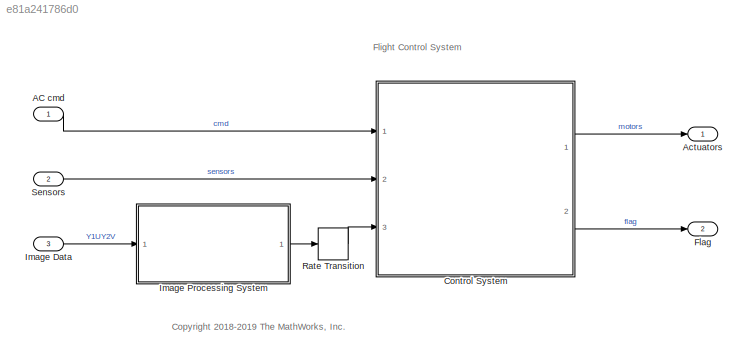
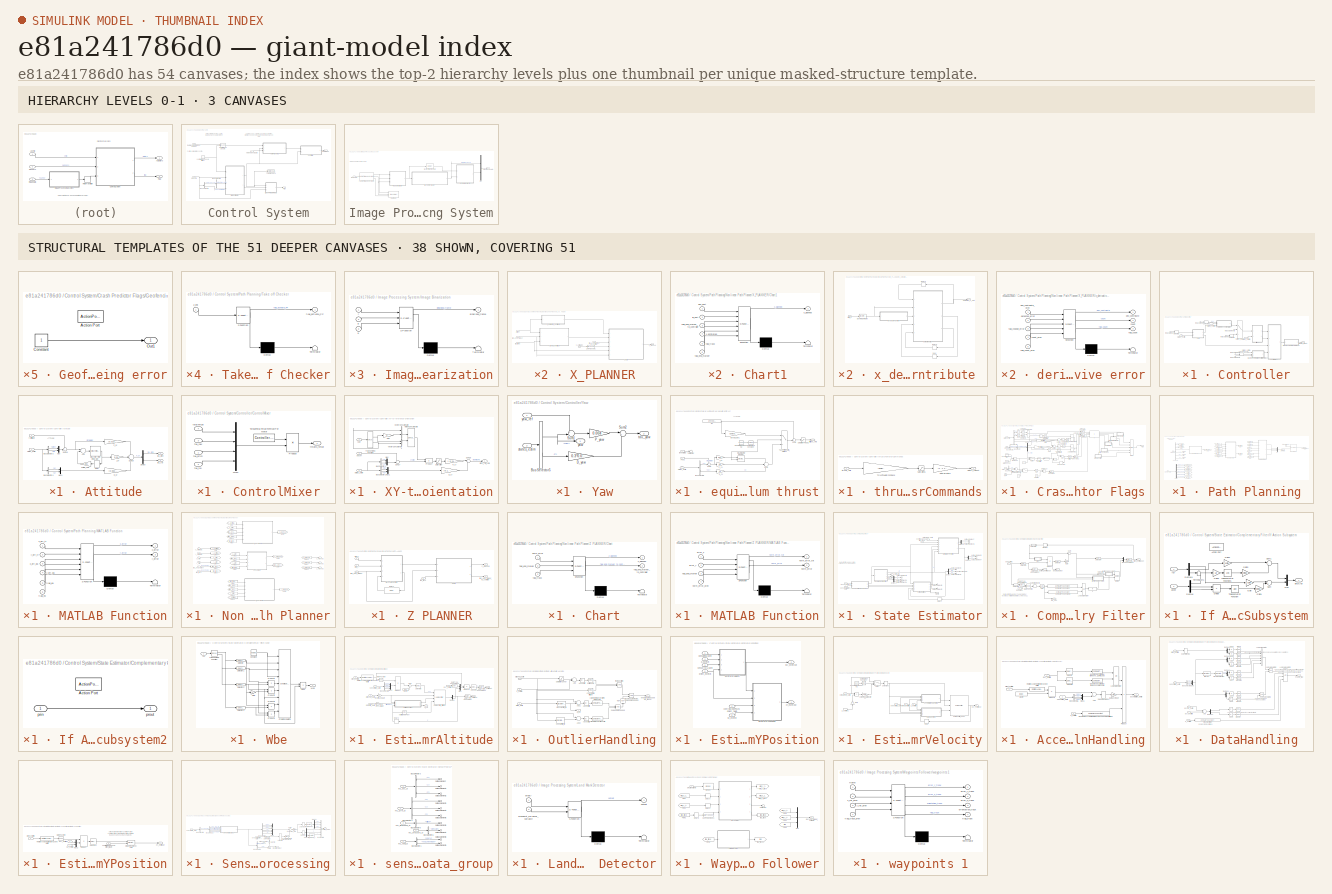
[diagram: thumbnail index - top-2 hierarchy levels (3 canvases) + 38 structural-template representatives of the remaining 51 canvases]
MODEL slx_e81a241786d0
KIND model
CONFIG AbsTol = auto
CONFIG EnableMultiTasking = on
CONFIG FixedStep = Ts
CONFIG MaxStep = auto
CONFIG MinStep = auto
CONFIG RelTol = 1e-3
CONFIG SampleTimeConstraint = Unconstrained
CONFIG Solver = ode3
CONFIG SolverName = ode3
CONFIG StartTime = 0
CONFIG StopTime = TFinal
BLOCK [Inport] AC cmd
  BusOutputAsStruct = on
  IconDisplay = Port number
  OutDataTypeStr = Bus: CommandBus
BLOCK [Outport] Actuators
  IconDisplay = Port number
  OutDataTypeStr = single
  PortDimensions = 4
  VectorParamsAs1DForOutWhenUnconnected = off
BLOCK [SubSystem] Control System
  InitFcn = codertarget.parrot.internal.fcsSubsystemCallback(gcb);
  Ports = [3, 2]
  RTWSystemCode = Reusable function
  RequestExecContextInheritance = off
  SystemSampleTime = Ts
  TreatAsAtomicUnit = on
BLOCK [BusSelector] Control System/Bus Selector1
  OutputAsBus = off
  OutputSignals = opticalFlow_data
  Ports = [1, 1]
BLOCK [BusSelector] Control System/Bus Selector4
  OutputAsBus = off
  OutputSignals = VisionSensors,SensorCalibration
  Ports = [1, 2]
BLOCK [BusAssignment] Control System/Control Mode Update
  AssignedSignals = controlModePosVSOrient
  Ports = [2, 1]
BLOCK [SubSystem] Control System/Controller
  Ports = [2, 1]
  RequestExecContextInheritance = off
BLOCK [SubSystem] Control System/Controller/Attitude
  Ports = [2, 2]
  RequestExecContextInheritance = off
BLOCK [Sum] Control System/Controller/Attitude/Add
  InputSameDT = off
  Inputs = +-
  OutDataTypeStr = Inherit: Inherit via internal rule
  Ports = [2, 1]
  SaturateOnIntegerOverflow = off
BLOCK [BusSelector] Control System/Controller/Attitude/Bus Selector3
  OutputAsBus = off
  OutputSignals = pitch,roll
  Ports = [1, 2]
BLOCK [BusSelector] Control System/Controller/Attitude/Bus Selector4
  OutputAsBus = off
  OutputSignals = q,p
  Ports = [1, 2]
BLOCK [Gain] Control System/Controller/Attitude/D_pr
  Gain = [0.002;0.003]
  OutDataTypeStr = Inherit: Inherit via internal rule
  ParamDataTypeStr = Inherit: Inherit via internal rule
  SaturateOnIntegerOverflow = off
BLOCK [Delay] Control System/Controller/Attitude/Delay
  DelayLength = 1
  InitialCondition = 0
  InputPortMap = u0
  Ports = [1, 1]
BLOCK [Demux] Control System/Controller/Attitude/Demux
  DisplayOption = bar
  Outputs = 2
  Ports = [1, 2]
BLOCK [DiscreteIntegrator] Control System/Controller/Attitude/Discrete-Time Integrator
  ICPrevOutput = DiscIntNeverNeededParam
  ICPrevScaledInput = DiscIntNeverNeededParam
  InitialConditionSetting = Auto
  LimitOutput = on
  LowerSaturationLimit = -2
  Ports = [1, 1]
  SampleTime = Ts
  UpperSaturationLimit = 2
BLOCK [Gain] Control System/Controller/Attitude/I_pr
  Gain = 0.01
  OutDataTypeStr = Inherit: Inherit via internal rule
  ParamDataTypeStr = Inherit: Inherit via internal rule
  SaturateOnIntegerOverflow = off
BLOCK [Mux] Control System/Controller/Attitude/Mux
  DisplayOption = bar
  Inputs = 2
  Ports = [2, 1]
BLOCK [Mux] Control System/Controller/Attitude/Mux1
  DisplayOption = bar
  Inputs = 2
  Ports = [2, 1]
BLOCK [Gain] Control System/Controller/Attitude/P_pr
  Gain = [0.013;0.011]
  OutDataTypeStr = Inherit: Inherit via internal rule
  ParamDataTypeStr = Inherit: Inherit via internal rule
  SaturateOnIntegerOverflow = off
BLOCK [Sum] Control System/Controller/Attitude/Sum16
  AccumDataTypeStr = single
  IconShape = round
  InputSameDT = off
  Inputs = ++-
  OutDataTypeStr = single
  Ports = [3, 1]
BLOCK [Sum] Control System/Controller/Attitude/Sum19
  IconShape = round
  InputSameDT = off
  Inputs = +-|
  OutDataTypeStr = Inherit: Inherit via internal rule
  Ports = [2, 1]
  SaturateOnIntegerOverflow = off
BLOCK [Gain] Control System/Controller/Attitude/antiWU_Gain
  Gain = 0.001
  OutDataTypeStr = Inherit: Inherit via internal rule
  ParamDataTypeStr = Inherit: Inherit via internal rule
  SaturateOnIntegerOverflow = off
BLOCK [Inport] Control System/Controller/Attitude/refAttitude
  IconDisplay = Port number
BLOCK [Inport] Control System/Controller/Attitude/states_estim
  IconDisplay = Port number
  Port = 2
BLOCK [Outport] Control System/Controller/Attitude/tau_pitch
  IconDisplay = Port number
  VectorParamsAs1DForOutWhenUnconnected = off
BLOCK [Outport] Control System/Controller/Attitude/tau_roll
  IconDisplay = Port number
  Port = 2
  VectorParamsAs1DForOutWhenUnconnected = off
BLOCK [SubSystem] Control System/Controller/ControlMixer
  Ports = [4, 1]
  RequestExecContextInheritance = off
BLOCK [Mux] Control System/Controller/ControlMixer/Mux2
  DisplayOption = bar
  Ports = [4, 1]
BLOCK [Product] Control System/Controller/ControlMixer/Product
  InputSameDT = off
  Multiplication = Matrix(*)
  OutDataTypeStr = Inherit: Inherit via internal rule
  Ports = [2, 1]
  SaturateOnIntegerOverflow = off
BLOCK [Constant] Control System/Controller/ControlMixer/TorqueTotalThrustToThrustPerMotor
  OutDataTypeStr = single
  Value = Controller.Q2Ts
BLOCK [Inport] Control System/Controller/ControlMixer/tau_pitch
  IconDisplay = Port number
BLOCK [Inport] Control System/Controller/ControlMixer/tau_roll
  IconDisplay = Port number
  Port = 2
BLOCK [Inport] Control System/Controller/ControlMixer/tau_yaw
  IconDisplay = Port number
  Port = 3
BLOCK [Outport] Control System/Controller/ControlMixer/thrusts_refout
  IconDisplay = Port number
  VectorParamsAs1DForOutWhenUnconnected = off
BLOCK [Inport] Control System/Controller/ControlMixer/totalThrust
  IconDisplay = Port number
  Port = 4
BLOCK [Inport] Control System/Controller/In Bus Element
  IconDisplay = Port number
BLOCK [Inport] Control System/Controller/In Bus Element1
  IconDisplay = Port number
BLOCK [Inport] Control System/Controller/In Bus Element2
  IconDisplay = Port number
BLOCK [Inport] Control System/Controller/In Bus Element3
  IconDisplay = Port number
BLOCK [Inport] Control System/Controller/In Bus Element5
  IconDisplay = Port number
BLOCK [Inport] Control System/Controller/In Bus Element6
  IconDisplay = Port number
BLOCK [Selector] Control System/Controller/Selector
  IndexOptions = Index vector (dialog)
  Indices = 3
  InputPortWidth = 3
  OutputSizes = 1
  Ports = [1, 1]
BLOCK [Selector] Control System/Controller/Selector1
  IndexOptions = Index vector (dialog)
  Indices = [1 2]
  InputPortWidth = 3
  OutputSizes = 1
  Ports = [1, 1]
BLOCK [Selector] Control System/Controller/Selector2
  IndexOptions = Index vector (dialog)
  Indices = [2 3]
  InputPortWidth = 3
  OutputSizes = 1
  Ports = [1, 1]
BLOCK [Selector] Control System/Controller/Selector3
  IndexOptions = Index vector (dialog)
  Indices = 1
  InputPortWidth = 3
  OutputSizes = 1
  Ports = [1, 1]
BLOCK [Switch] Control System/Controller/Switch_refAtt
  Criteria = u2 > Threshold
  InputSameDT = off
  SaturateOnIntegerOverflow = off
BLOCK [SubSystem] Control System/Controller/XY-to-reference-orientation
  Ports = [3, 1]
  RequestExecContextInheritance = off
BLOCK [BusSelector] Control System/Controller/XY-to-reference-orientation/Bus Selector1
  OutputAsBus = off
  OutputSignals = X,Y
  Ports = [1, 2]
BLOCK [BusSelector] Control System/Controller/XY-to-reference-orientation/Bus Selector2
  OutputAsBus = off
  OutputSignals = dx,dy
  Ports = [1, 2]
BLOCK [Gain] Control System/Controller/XY-to-reference-orientation/D_xy
  Gain = [0.1, -0.1]
  OutDataTypeStr = single
  ParamDataTypeStr = single
BLOCK [Gain] Control System/Controller/XY-to-reference-orientation/Gain
  Gain = -1
  OutDataTypeStr = Inherit: Inherit via internal rule
  ParamDataTypeStr = Inherit: Inherit via internal rule
  SaturateOnIntegerOverflow = off
BLOCK [Concatenate] Control System/Controller/XY-to-reference-orientation/Matrix Concatenate
  ConcatenateDimension = 2
  Mode = Multidimensional array
  Ports = [2, 1]
BLOCK [Mux] Control System/Controller/XY-to-reference-orientation/Mux
  DisplayOption = bar
  Inputs = 2
  Ports = [2, 1]
BLOCK [Mux] Control System/Controller/XY-to-reference-orientation/Mux1
  DisplayOption = bar
  Inputs = 2
  Ports = [2, 1]
BLOCK [Gain] Control System/Controller/XY-to-reference-orientation/P_xy
  Gain = [-0.24,0.24]
  OutDataTypeStr = single
  ParamDataTypeStr = single
BLOCK [Product] Control System/Controller/XY-to-reference-orientation/Product
  InputSameDT = off
  Multiplication = Matrix(*)
  OutDataTypeStr = single
  Ports = [2, 1]
  SaturateOnIntegerOverflow = off
BLOCK [Saturate] Control System/Controller/XY-to-reference-orientation/Saturation
  InputPortMap = u0
  LowerLimit = -3
  OutDataTypeStr = single
  Ports = [1, 1]
  UpperLimit = 3
BLOCK [Sum] Control System/Controller/XY-to-reference-orientation/Sum17
  AccumDataTypeStr = single
  IconShape = round
  InputSameDT = off
  Inputs = +-|
  OutDataTypeStr = Inherit: Inherit via internal rule
  Ports = [2, 1]
  SaturateOnIntegerOverflow = off
BLOCK [Sum] Control System/Controller/XY-to-reference-orientation/Sum18
  AccumDataTypeStr = single
  IconShape = round
  InputSameDT = off
  Inputs = |++
  OutDataTypeStr = single
  Ports = [2, 1]
BLOCK [Trigonometry] Control System/Controller/XY-to-reference-orientation/Trigonometric Function
  Operator = sincos
  Ports = [1, 2]
BLOCK [Concatenate] Control System/Controller/XY-to-reference-orientation/Vector Concatenate
  Ports = [2, 1]
BLOCK [Concatenate] Control System/Controller/XY-to-reference-orientation/Vector Concatenate1
  Ports = [2, 1]
BLOCK [Outport] Control System/Controller/XY-to-reference-orientation/pitch_roll_cmd
  IconDisplay = Port number
  VectorParamsAs1DForOutWhenUnconnected = off
BLOCK [Inport] Control System/Controller/XY-to-reference-orientation/posXY
  IconDisplay = Port number
BLOCK [Inport] Control System/Controller/XY-to-reference-orientation/states_estim
  IconDisplay = Port number
  Port = 2
BLOCK [Inport] Control System/Controller/XY-to-reference-orientation/yaw
  IconDisplay = Port number
  Port = 3
BLOCK [SubSystem] Control System/Controller/Yaw
  Ports = [2, 2]
  RequestExecContextInheritance = off
BLOCK [BusSelector] Control System/Controller/Yaw/Bus Selector5
  OutputAsBus = off
  OutputSignals = yaw,r
  Ports = [1, 2]
BLOCK [Gain] Control System/Controller/Yaw/D_yaw
  Gain = 0.3*0.004
  OutDataTypeStr = Inherit: Inherit via internal rule
  ParamDataTypeStr = Inherit: Inherit via internal rule
  SaturateOnIntegerOverflow = off
BLOCK [Gain] Control System/Controller/Yaw/P_yaw
  Gain = 0.004
  OutDataTypeStr = single
  ParamDataTypeStr = single
  SaturateOnIntegerOverflow = off
BLOCK [Sum] Control System/Controller/Yaw/Sum1
  AccumDataTypeStr = single
  IconShape = round
  InputSameDT = off
  Inputs = +-|
  OutDataTypeStr = single
  Ports = [2, 1]
BLOCK [Sum] Control System/Controller/Yaw/Sum2
  IconShape = round
  InputSameDT = off
  Inputs = |+-
  OutDataTypeStr = Inherit: Inherit via internal rule
  Ports = [2, 1]
  SaturateOnIntegerOverflow = off
BLOCK [Inport] Control System/Controller/Yaw/states_estim
  IconDisplay = Port number
  Port = 2
BLOCK [Outport] Control System/Controller/Yaw/tau_yaw
  IconDisplay = Port number
  Port = 2
  VectorParamsAs1DForOutWhenUnconnected = off
BLOCK [Outport] Control System/Controller/Yaw/yaw
  IconDisplay = Port number
  VectorParamsAs1DForOutWhenUnconnected = off
BLOCK [Inport] Control System/Controller/Yaw/yaw_ref
  IconDisplay = Port number
BLOCK [SubSystem] Control System/Controller/gravity feedforward//equilibrium thrust
  Ports = [3, 1]
  RequestExecContextInheritance = off
BLOCK [BusSelector] Control System/Controller/gravity feedforward//equilibrium thrust/Bus Selector1
  OutputAsBus = off
  OutputSignals = Z,dz
  Ports = [1, 2]
BLOCK [Reference] Control System/Controller/gravity feedforward//equilibrium thrust/Compare To Constant  REF=simulink/Logic and Bit
Operations/Compare
To Constant
  Ports = [1, 1]
  SourceBlock = simulink/Logic and Bit\nOperations/Compare\nTo Constant
  SourceProductBaseCode = SL
  SourceProductName = Simulink
  SourceType = Compare To Constant
BLOCK [Reference] Control System/Controller/gravity feedforward//equilibrium thrust/Counter Free-Running  REF=simulink/Sources/Counter
Free-Running
  Ports = [0, 1]
  SourceBlock = simulink/Sources/Counter\nFree-Running
  SourceProductBaseCode = SL
  SourceProductName = Simulink
  SourceType = Counter Free-Running
BLOCK [Gain] Control System/Controller/gravity feedforward//equilibrium thrust/D_z1
  Gain = 0.5
  OutDataTypeStr = single
  ParamDataTypeStr = single
BLOCK [DiscreteIntegrator] Control System/Controller/gravity feedforward//equilibrium thrust/Discrete-Time Integrator
  ExternalReset = falling
  ICPrevOutput = DiscIntNeverNeededParam
  ICPrevScaledInput = DiscIntNeverNeededParam
  InitialConditionSetting = Auto
  LimitOutput = on
  LowerSaturationLimit = -2
  Ports = [2, 1]
  SampleTime = Ts
  UpperSaturationLimit = 2
BLOCK [Gain] Control System/Controller/gravity feedforward//equilibrium thrust/I_pr
  Gain = 0.24
  OutDataTypeStr = Inherit: Inherit via internal rule
  ParamDataTypeStr = Inherit: Inherit via internal rule
  SaturateOnIntegerOverflow = off
BLOCK [Gain] Control System/Controller/gravity feedforward//equilibrium thrust/P_z1
  Gain = 0.8
  OutDataTypeStr = single
  ParamDataTypeStr = single
BLOCK [Inport] Control System/Controller/gravity feedforward//equilibrium thrust/PosZ
  IconDisplay = Port number
  Port = 2
BLOCK [Saturate] Control System/Controller/gravity feedforward//equilibrium thrust/SaturationThrust1
  InputPortMap = u0
  LowerLimit = -4*Controller.totalThrustMaxRelative*Controller.motorsThrustPerMotorMax
  OutDataTypeStr = single
  Ports = [1, 1]
  UpperLimit = 4*Controller.totalThrustMaxRelative*Controller.motorsThrustPerMotorMax
BLOCK [Sum] Control System/Controller/gravity feedforward//equilibrium thrust/Sum1
  AccumDataTypeStr = single
  IconShape = round
  InputSameDT = off
  Inputs = ++-
  OutDataTypeStr = single
  Ports = [3, 1]
BLOCK [Sum] Control System/Controller/gravity feedforward//equilibrium thrust/Sum2
  AccumDataTypeStr = single
  IconShape = round
  InputSameDT = off
  Inputs = +-|
  OutDataTypeStr = single
  Ports = [2, 1]
BLOCK [Sum] Control System/Controller/gravity feedforward//equilibrium thrust/Sum5
  AccumDataTypeStr = single
  IconShape = round
  InputSameDT = off
  Inputs = ++|
  OutDataTypeStr = single
  Ports = [2, 1]
BLOCK [Switch] Control System/Controller/gravity feedforward//equilibrium thrust/TakeoffOrControl_Switch1
  Criteria = u2 > Threshold
  InputSameDT = off
  SaturateOnIntegerOverflow = off
BLOCK [Terminator] Control System/Controller/gravity feedforward//equilibrium thrust/Terminator
BLOCK [Outport] Control System/Controller/gravity feedforward//equilibrium thrust/altitude_cmd
  IconDisplay = Port number
  VectorParamsAs1DForOutWhenUnconnected = off
BLOCK [Inport] Control System/Controller/gravity feedforward//equilibrium thrust/states_estim
  IconDisplay = Port number
BLOCK [Inport] Control System/Controller/gravity feedforward//equilibrium thrust/takeoff_flag
  IconDisplay = Port number
  Port = 3
BLOCK [Gain] Control System/Controller/gravity feedforward//equilibrium thrust/takeoff_gain1
  Gain = Controller.takeoffGain
  OutDataTypeStr = single
  ParamDataTypeStr = single
BLOCK [Constant] Control System/Controller/gravity feedforward//equilibrium thrust/w1
  OutDataTypeStr = single
  SampleTime = Ts
  Value = -g*Vehicle.Airframe.mass
BLOCK [Outport] Control System/Controller/motors_refout
  IconDisplay = Port number
  VectorParamsAs1DForOutWhenUnconnected = off
BLOCK [Inport] Control System/Controller/states_estim
  IconDisplay = Port number
  Port = 2
BLOCK [InportShadow] Control System/Controller/states_estim1
  IconDisplay = Port number
  Port = 2
BLOCK [InportShadow] Control System/Controller/states_estim2
  IconDisplay = Port number
  Port = 2
BLOCK [InportShadow] Control System/Controller/states_estim3
  IconDisplay = Port number
  Port = 2
BLOCK [SubSystem] Control System/Controller/thrustsToMotorCommands
  Ports = [1, 1]
  RequestExecContextInheritance = off
BLOCK [Gain] Control System/Controller/thrustsToMotorCommands/MotorDirections
  Gain = [1 -1 1 -1]
  OutDataTypeStr = Inherit: Inherit via internal rule
  ParamDataTypeStr = Inherit: Inherit via internal rule
  SaturateOnIntegerOverflow = off
BLOCK [Saturate] Control System/Controller/thrustsToMotorCommands/Saturation5
  InputPortMap = u0
  LowerLimit = Vehicle.Motor.minLimit
  Ports = [1, 1]
  UpperLimit = Vehicle.Motor.maxLimit
BLOCK [Gain] Control System/Controller/thrustsToMotorCommands/ThrustToMotorCommand
  Gain = -Vehicle.Motor.thrustToMotorCommand
  OutDataTypeStr = Inherit: Inherit via internal rule
  ParamDataTypeStr = Inherit: Inherit via internal rule
  SaturateOnIntegerOverflow = off
BLOCK [Outport] Control System/Controller/thrustsToMotorCommands/motors_cmdout
  IconDisplay = Port number
  VectorParamsAs1DForOutWhenUnconnected = off
BLOCK [Inport] Control System/Controller/thrustsToMotorCommands/thrusts_refin
  IconDisplay = Port number
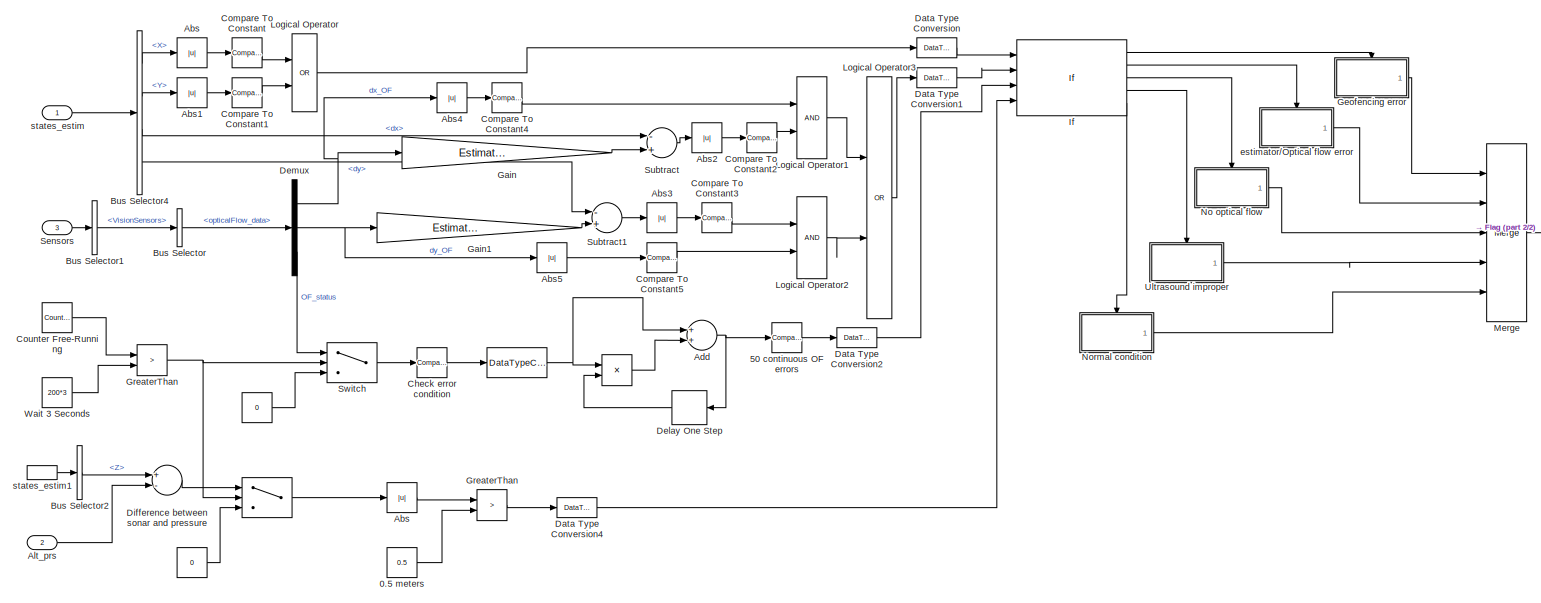
[diagram: Control System/Crash Predictor Flags - part 1/2, most of the canvas]
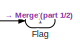
[diagram: Control System/Crash Predictor Flags - part 2/2, middle right region]
BLOCK [SubSystem] Control System/Crash Predictor Flags
  Ports = [3, 1]
  RequestExecContextInheritance = off
BLOCK [Constant] Control System/Crash Predictor Flags/ 
  Value = 0
BLOCK [Product] Control System/Crash Predictor Flags/  
  InputSameDT = off
  Inputs = **
  OutDataTypeStr = Inherit: Inherit via internal rule
  Ports = [2, 1]
  RndMeth = Floor
  SaturateOnIntegerOverflow = off
BLOCK [DataTypeConversion] Control System/Crash Predictor Flags/   
  RndMeth = Floor
  SaturateOnIntegerOverflow = off
BLOCK [Constant] Control System/Crash Predictor Flags/    
  OutDataTypeStr = single
  Value = 0
BLOCK [Switch] Control System/Crash Predictor Flags/         
  Criteria = u2 > Threshold
  InputSameDT = off
  SaturateOnIntegerOverflow = off
BLOCK [Constant] Control System/Crash Predictor Flags/0.5 meters
  Value = 0.5
BLOCK [Reference] Control System/Crash Predictor Flags/50 continuous OF errors   REF=simulink/Logic and Bit
Operations/Compare
To Constant
  Ports = [1, 1]
  SourceBlock = simulink/Logic and Bit\nOperations/Compare\nTo Constant
  SourceProductBaseCode = SL
  SourceProductName = Simulink
  SourceType = Compare To Constant
BLOCK [Abs] Control System/Crash Predictor Flags/Abs
  SaturateOnIntegerOverflow = off
BLOCK [Abs] Control System/Crash Predictor Flags/Abs  
  SaturateOnIntegerOverflow = off
BLOCK [Abs] Control System/Crash Predictor Flags/Abs1
  SaturateOnIntegerOverflow = off
BLOCK [Abs] Control System/Crash Predictor Flags/Abs2
  SaturateOnIntegerOverflow = off
BLOCK [Abs] Control System/Crash Predictor Flags/Abs3
  SaturateOnIntegerOverflow = off
BLOCK [Abs] Control System/Crash Predictor Flags/Abs4
  SaturateOnIntegerOverflow = off
BLOCK [Abs] Control System/Crash Predictor Flags/Abs5
  SaturateOnIntegerOverflow = off
BLOCK [Sum] Control System/Crash Predictor Flags/Add
  InputSameDT = off
  OutDataTypeStr = Inherit: Inherit via internal rule
  Ports = [2, 1]
  SaturateOnIntegerOverflow = off
BLOCK [Inport] Control System/Crash Predictor Flags/Alt_prs
  IconDisplay = Port number
  Port = 2
BLOCK [BusSelector] Control System/Crash Predictor Flags/Bus Selector
  OutputAsBus = off
  OutputSignals = opticalFlow_data
  Ports = [1, 1]
BLOCK [BusSelector] Control System/Crash Predictor Flags/Bus Selector1
  OutputAsBus = off
  OutputSignals = VisionSensors
  Ports = [1, 1]
BLOCK [BusSelector] Control System/Crash Predictor Flags/Bus Selector2
  OutputAsBus = off
  OutputSignals = Z
  Ports = [1, 1]
BLOCK [BusSelector] Control System/Crash Predictor Flags/Bus Selector4
  OutputAsBus = off
  OutputSignals = X,Y,dx,dy
  Ports = [1, 4]
BLOCK [Reference] Control System/Crash Predictor Flags/Check error condition  REF=simulink/Logic and Bit
Operations/Compare
To Constant
  Ports = [1, 1]
  SourceBlock = simulink/Logic and Bit\nOperations/Compare\nTo Constant
  SourceProductBaseCode = SL
  SourceProductName = Simulink
  SourceType = Compare To Constant
BLOCK [Reference] Control System/Crash Predictor Flags/Compare To Constant  REF=simulink/Logic and Bit
Operations/Compare
To Constant
  Ports = [1, 1]
  SourceBlock = simulink/Logic and Bit\nOperations/Compare\nTo Constant
  SourceProductBaseCode = SL
  SourceProductName = Simulink
  SourceType = Compare To Constant
BLOCK [Reference] Control System/Crash Predictor Flags/Compare To Constant1  REF=simulink/Logic and Bit
Operations/Compare
To Constant
  Ports = [1, 1]
  SourceBlock = simulink/Logic and Bit\nOperations/Compare\nTo Constant
  SourceProductBaseCode = SL
  SourceProductName = Simulink
  SourceType = Compare To Constant
BLOCK [Reference] Control System/Crash Predictor Flags/Compare To Constant2  REF=simulink/Logic and Bit
Operations/Compare
To Constant
  Ports = [1, 1]
  SourceBlock = simulink/Logic and Bit\nOperations/Compare\nTo Constant
  SourceProductBaseCode = SL
  SourceProductName = Simulink
  SourceType = Compare To Constant
BLOCK [Reference] Control System/Crash Predictor Flags/Compare To Constant3  REF=simulink/Logic and Bit
Operations/Compare
To Constant
  Ports = [1, 1]
  SourceBlock = simulink/Logic and Bit\nOperations/Compare\nTo Constant
  SourceProductBaseCode = SL
  SourceProductName = Simulink
  SourceType = Compare To Constant
BLOCK [Reference] Control System/Crash Predictor Flags/Compare To Constant4  REF=simulink/Logic and Bit
Operations/Compare
To Constant
  Ports = [1, 1]
  SourceBlock = simulink/Logic and Bit\nOperations/Compare\nTo Constant
  SourceProductBaseCode = SL
  SourceProductName = Simulink
  SourceType = Compare To Constant
BLOCK [Reference] Control System/Crash Predictor Flags/Compare To Constant5  REF=simulink/Logic and Bit
Operations/Compare
To Constant
  Ports = [1, 1]
  SourceBlock = simulink/Logic and Bit\nOperations/Compare\nTo Constant
  SourceProductBaseCode = SL
  SourceProductName = Simulink
  SourceType = Compare To Constant
BLOCK [Reference] Control System/Crash Predictor Flags/Counter Free-Running  REF=simulink/Sources/Counter
Free-Running
  Ports = [0, 1]
  SourceBlock = simulink/Sources/Counter\nFree-Running
  SourceProductBaseCode = SL
  SourceProductName = Simulink
  SourceType = Counter Free-Running
BLOCK [DataTypeConversion] Control System/Crash Predictor Flags/Data Type Conversion
  OutDataTypeStr = uint8
  RndMeth = Nearest
  SaturateOnIntegerOverflow = off
BLOCK [DataTypeConversion] Control System/Crash Predictor Flags/Data Type Conversion1
  OutDataTypeStr = uint8
  RndMeth = Nearest
  SaturateOnIntegerOverflow = off
BLOCK [DataTypeConversion] Control System/Crash Predictor Flags/Data Type Conversion2
  OutDataTypeStr = uint8
  RndMeth = Nearest
  SaturateOnIntegerOverflow = off
BLOCK [DataTypeConversion] Control System/Crash Predictor Flags/Data Type Conversion4
  OutDataTypeStr = uint8
  RndMeth = Nearest
  SaturateOnIntegerOverflow = off
BLOCK [Delay] Control System/Crash Predictor Flags/Delay One Step
  DelayLength = 1
  InputPortMap = u0
  Ports = [1, 1]
BLOCK [Demux] Control System/Crash Predictor Flags/Demux
  DisplayOption = bar
  Outputs = 3
  Ports = [1, 3]
BLOCK [Sum] Control System/Crash Predictor Flags/Difference between sonar and pressure
  InputSameDT = off
  Inputs = +-
  OutDataTypeStr = Inherit: Inherit via internal rule
  Ports = [2, 1]
  SaturateOnIntegerOverflow = off
BLOCK [Outport] Control System/Crash Predictor Flags/Flag
  IconDisplay = Port number
  VectorParamsAs1DForOutWhenUnconnected = off
BLOCK [Gain] Control System/Crash Predictor Flags/Gain
  Gain = Estimator.pos.visDeltaXYMax
  OutDataTypeStr = Inherit: Inherit via internal rule
  ParamDataTypeStr = Inherit: Inherit via internal rule
  SaturateOnIntegerOverflow = off
BLOCK [Gain] Control System/Crash Predictor Flags/Gain1
  Gain = Estimator.pos.visDeltaXYMax
  OutDataTypeStr = Inherit: Inherit via internal rule
  ParamDataTypeStr = Inherit: Inherit via internal rule
  SaturateOnIntegerOverflow = off
BLOCK [SubSystem] Control System/Crash Predictor Flags/Geofencing error
  Ports = [0, 1, 0, 0, 0, 0, 0, 1]
  RequestExecContextInheritance = off
  TreatAsAtomicUnit = on
BLOCK [ActionPort] Control System/Crash Predictor Flags/Geofencing error/Action Port
  ActionPortLabel = if(u1 > 0)
BLOCK [Constant] Control System/Crash Predictor Flags/Geofencing error/Constant
  OutDataTypeStr = uint8
BLOCK [Outport] Control System/Crash Predictor Flags/Geofencing error/Out1
  IconDisplay = Port number
  VectorParamsAs1DForOutWhenUnconnected = off
BLOCK [RelationalOperator] Control System/Crash Predictor Flags/GreaterThan
  InputSameDT = off
  Operator = >
  OutDataTypeStr = boolean
  Ports = [2, 1]
  RndMeth = Simplest
BLOCK [RelationalOperator] Control System/Crash Predictor Flags/GreaterThan  
  InputSameDT = off
  Operator = >
  OutDataTypeStr = boolean
  Ports = [2, 1]
  RndMeth = Simplest
BLOCK [If] Control System/Crash Predictor Flags/If
  ElseIfExpressions = u2 > 0, u3> 0,u4>0
  NumInputs = 4
  Ports = [4, 5]
BLOCK [Logic] Control System/Crash Predictor Flags/Logical Operator
  AllPortsSameDT = off
  Operator = OR
  Ports = [2, 1]
BLOCK [Logic] Control System/Crash Predictor Flags/Logical Operator1
  AllPortsSameDT = off
  OutDataTypeStr = boolean
  Ports = [2, 1]
BLOCK [Logic] Control System/Crash Predictor Flags/Logical Operator2
  AllPortsSameDT = off
  OutDataTypeStr = boolean
  Ports = [2, 1]
BLOCK [Logic] Control System/Crash Predictor Flags/Logical Operator3
  AllPortsSameDT = off
  Operator = OR
  Ports = [2, 1]
BLOCK [Merge] Control System/Crash Predictor Flags/Merge
  InitialOutput = 0
  Inputs = 5
  Ports = [5, 1]
BLOCK [SubSystem] Control System/Crash Predictor Flags/No optical flow 
  Ports = [0, 1, 0, 0, 0, 0, 0, 1]
  RequestExecContextInheritance = off
  TreatAsAtomicUnit = on
BLOCK [ActionPort] Control System/Crash Predictor Flags/No optical flow /Action Port
  ActionPortLabel = elseif( u3> 0)
BLOCK [Constant] Control System/Crash Predictor Flags/No optical flow /Constant
  OutDataTypeStr = uint8
  Value = 69
BLOCK [Outport] Control System/Crash Predictor Flags/No optical flow /Out1
  IconDisplay = Port number
  VectorParamsAs1DForOutWhenUnconnected = off
BLOCK [SubSystem] Control System/Crash Predictor Flags/Normal condition
  Ports = [0, 1, 0, 0, 0, 0, 0, 1]
  RequestExecContextInheritance = off
  TreatAsAtomicUnit = on
BLOCK [ActionPort] Control System/Crash Predictor Flags/Normal condition/Action Port
  ActionPortLabel = else
BLOCK [Constant] Control System/Crash Predictor Flags/Normal condition/Constant
  OutDataTypeStr = uint8
  Value = 0
BLOCK [Outport] Control System/Crash Predictor Flags/Normal condition/Out1
  IconDisplay = Port number
  VectorParamsAs1DForOutWhenUnconnected = off
BLOCK [Inport] Control System/Crash Predictor Flags/Sensors
  IconDisplay = Port number
  Port = 3
BLOCK [Sum] Control System/Crash Predictor Flags/Subtract
  InputSameDT = off
  Inputs = -+
  OutDataTypeStr = Inherit: Inherit via internal rule
  Ports = [2, 1]
  SaturateOnIntegerOverflow = off
BLOCK [Sum] Control System/Crash Predictor Flags/Subtract1
  InputSameDT = off
  Inputs = -+
  OutDataTypeStr = Inherit: Inherit via internal rule
  Ports = [2, 1]
  SaturateOnIntegerOverflow = off
BLOCK [Switch] Control System/Crash Predictor Flags/Switch
  Criteria = u2 > Threshold
  InputSameDT = off
  SaturateOnIntegerOverflow = off
BLOCK [SubSystem] Control System/Crash Predictor Flags/Ultrasound improper
  Ports = [0, 1, 0, 0, 0, 0, 0, 1]
  RequestExecContextInheritance = off
  TreatAsAtomicUnit = on
BLOCK [ActionPort] Control System/Crash Predictor Flags/Ultrasound improper/Action Port
  ActionPortLabel = elseif(u4>0)
BLOCK [Constant] Control System/Crash Predictor Flags/Ultrasound improper/Constant
  OutDataTypeStr = uint8
  Value = 88
BLOCK [Outport] Control System/Crash Predictor Flags/Ultrasound improper/Out1
  IconDisplay = Port number
  VectorParamsAs1DForOutWhenUnconnected = off
BLOCK [Constant] Control System/Crash Predictor Flags/Wait  3 Seconds
  Value = 200*3
BLOCK [SubSystem] Control System/Crash Predictor Flags/estimator//Optical flow error
  Ports = [0, 1, 0, 0, 0, 0, 0, 1]
  RequestExecContextInheritance = off
  TreatAsAtomicUnit = on
BLOCK [ActionPort] Control System/Crash Predictor Flags/estimator//Optical flow error/Action Port
  ActionPortLabel = elseif(u2 > 0)
BLOCK [Constant] Control System/Crash Predictor Flags/estimator//Optical flow error/Constant
  OutDataTypeStr = uint8
  Value = 99
BLOCK [Outport] Control System/Crash Predictor Flags/estimator//Optical flow error/Out1
  IconDisplay = Port number
  VectorParamsAs1DForOutWhenUnconnected = off
BLOCK [Inport] Control System/Crash Predictor Flags/states_estim
  IconDisplay = Port number
BLOCK [InportShadow] Control System/Crash Predictor Flags/states_estim1
  IconDisplay = Port number
BLOCK [Outport] Control System/Flag
  IconDisplay = Port number
  Port = 2
  VectorParamsAs1DForOutWhenUnconnected = off
BLOCK [SubSystem] Control System/Path Planning
  Ports = [3, 1]
  RequestExecContextInheritance = off
BLOCK [BusAssignment] Control System/Path Planning/Bus Assignment
  AssignedSignals = pos_ref
  Ports = [2, 1]
BLOCK [BusSelector] Control System/Path Planning/Bus Selector1
  OutputAsBus = off
  OutputSignals = X,Y,Z,yaw,pitch,roll
  Ports = [1, 6]
BLOCK [DataTypeConversion] Control System/Path Planning/Data Type Conversion
  OutDataTypeStr = single
  RndMeth = Floor
  SaturateOnIntegerOverflow = off
BLOCK [Demux] Control System/Path Planning/Demux
  DisplayOption = bar
  Outputs = 6
  Ports = [1, 6]
BLOCK [Inport] Control System/Path Planning/EstimatedVal
  IconDisplay = Port number
  Port = 2
BLOCK [From] Control System/Path Planning/From
  GotoTag = flag_activate_PP
BLOCK [From] Control System/Path Planning/From1
  GotoTag = flag_track
BLOCK [From] Control System/Path Planning/From10
  GotoTag = x_estimated
BLOCK [From] Control System/Path Planning/From11
  GotoTag = y_estimated
BLOCK [From] Control System/Path Planning/From2
  GotoTag = flag_end_marker
BLOCK [From] Control System/Path Planning/From3
  GotoTag = x_error
BLOCK [From] Control System/Path Planning/From4
  GotoTag = y_error
BLOCK [From] Control System/Path Planning/From5
  GotoTag = x_track_error
BLOCK [From] Control System/Path Planning/From6
  GotoTag = y_track_error
BLOCK [From] Control System/Path Planning/From7
  GotoTag = x_error_end_marker
BLOCK [From] Control System/Path Planning/From8
  GotoTag = y_error_end_marker
BLOCK [From] Control System/Path Planning/From9
  GotoTag = flag_end_marker
BLOCK [Goto] Control System/Path Planning/Goto
  GotoTag = x_track_error
BLOCK [Goto] Control System/Path Planning/Goto1
  GotoTag = y_track_error
BLOCK [Goto] Control System/Path Planning/Goto10
  GotoTag = x_estimated
BLOCK [Goto] Control System/Path Planning/Goto2
  GotoTag = flag_track
BLOCK [Goto] Control System/Path Planning/Goto3
  GotoTag = x_error_end_marker
BLOCK [Goto] Control System/Path Planning/Goto4
  GotoTag = y_error_end_marker
BLOCK [Goto] Control System/Path Planning/Goto5
  GotoTag = flag_end_marker
BLOCK [Goto] Control System/Path Planning/Goto6
  GotoTag = flag_activate_PP
BLOCK [Goto] Control System/Path Planning/Goto7
  GotoTag = x_error
BLOCK [Goto] Control System/Path Planning/Goto8
  GotoTag = y_error
BLOCK [Goto] Control System/Path Planning/Goto9
  GotoTag = y_estimated
BLOCK [SubSystem] Control System/Path Planning/MATLAB Function
  ErrorFcn = Stateflow.Translate.translate
  PermitHierarchicalResolution = ExplicitOnly
  Ports = [6, 2]
  RequestExecContextInheritance = off
  SFBlockType = MATLAB Function
  TreatAsAtomicUnit = on
BLOCK [Demux] Control System/Path Planning/MATLAB Function/ Demux 
  Outputs = 1
  Ports = [1, 1]
BLOCK [S-Function] Control System/Path Planning/MATLAB Function/ SFunction 
  EnableBusSupport = on
  FunctionName = sf_sfun
  PortCounts = [6 3]
  Ports = [6, 3]
  SFcnIsStateOwnerBlock = off
  SFunctionDeploymentMode = off
  Tag = Stateflow S-Function 3
BLOCK [Terminator] Control System/Path Planning/MATLAB Function/ Terminator 
BLOCK [Inport] Control System/Path Planning/MATLAB Function/flag_ea
  IconDisplay = Port number
  Port = 5
BLOCK [Inport] Control System/Path Planning/MATLAB Function/flag_ho
  IconDisplay = Port number
  Port = 6
BLOCK [Inport] Control System/Path Planning/MATLAB Function/x_err_ea
  IconDisplay = Port number
  Port = 3
BLOCK [Inport] Control System/Path Planning/MATLAB Function/x_err_tr
  IconDisplay = Port number
BLOCK [Outport] Control System/Path Planning/MATLAB Function/x_error
  IconDisplay = Port number
  VectorParamsAs1DForOutWhenUnconnected = off
BLOCK [Inport] Control System/Path Planning/MATLAB Function/y_err_ea
  IconDisplay = Port number
  Port = 4
BLOCK [Inport] Control System/Path Planning/MATLAB Function/y_err_tr
  IconDisplay = Port number
  Port = 2
BLOCK [Outport] Control System/Path Planning/MATLAB Function/y_error
  IconDisplay = Port number
  Port = 2
  VectorParamsAs1DForOutWhenUnconnected = off
BLOCK [Mux] Control System/Path Planning/Mux
  DisplayOption = bar
  Inputs = 3
  Ports = [3, 1]
BLOCK [SubSystem] Control System/Path Planning/Non linear Path Planner
  Ports = [6, 3]
  RequestExecContextInheritance = off
BLOCK [From] Control System/Path Planning/Non linear Path Planner/From
  GotoTag = x_estimated
BLOCK [From] Control System/Path Planning/Non linear Path Planner/From1
  GotoTag = x_error
BLOCK [From] Control System/Path Planning/Non linear Path Planner/From10
  GotoTag = y_error
BLOCK [From] Control System/Path Planning/Non linear Path Planner/From11
  GotoTag = y_estimated
BLOCK [From] Control System/Path Planning/Non linear Path Planner/From12
  GotoTag = z_planned
BLOCK [From] Control System/Path Planning/Non linear Path Planner/From13
  GotoTag = flag_em2ctr
BLOCK [From] Control System/Path Planning/Non linear Path Planner/From14
  GotoTag = flag_em2ctr
BLOCK [From] Control System/Path Planning/Non linear Path Planner/From15
  GotoTag = x_planned
BLOCK [From] Control System/Path Planning/Non linear Path Planner/From17
  GotoTag = y_planned
BLOCK [From] Control System/Path Planning/Non linear Path Planner/From2
  GotoTag = x_error
BLOCK [From] Control System/Path Planning/Non linear Path Planner/From3
  GotoTag = flag_end_marker
BLOCK [From] Control System/Path Planning/Non linear Path Planner/From4
  GotoTag = flag_end_marker
BLOCK [From] Control System/Path Planning/Non linear Path Planner/From5
  GotoTag = flag_end_marker
BLOCK [From] Control System/Path Planning/Non linear Path Planner/From6
  GotoTag = flag_track
BLOCK [From] Control System/Path Planning/Non linear Path Planner/From7
  GotoTag = flag_track
BLOCK [From] Control System/Path Planning/Non linear Path Planner/From8
  GotoTag = flag_track
BLOCK [From] Control System/Path Planning/Non linear Path Planner/From9
  GotoTag = y_error
BLOCK [Goto] Control System/Path Planning/Non linear Path Planner/Goto
  GotoTag = x_estimated
BLOCK [Goto] Control System/Path Planning/Non linear Path Planner/Goto1
  GotoTag = x_error
BLOCK [Goto] Control System/Path Planning/Non linear Path Planner/Goto2
  GotoTag = flag_end_marker
BLOCK [Goto] Control System/Path Planning/Non linear Path Planner/Goto3
  GotoTag = flag_track
BLOCK [Goto] Control System/Path Planning/Non linear Path Planner/Goto4
  GotoTag = y_error
BLOCK [Goto] Control System/Path Planning/Non linear Path Planner/Goto5
  GotoTag = y_estimated
BLOCK [Goto] Control System/Path Planning/Non linear Path Planner/Goto6
  GotoTag = z_planned
BLOCK [Goto] Control System/Path Planning/Non linear Path Planner/Goto7
  GotoTag = flag_em2ctr
BLOCK [Goto] Control System/Path Planning/Non linear Path Planner/Goto8
  GotoTag = x_planned
BLOCK [Goto] Control System/Path Planning/Non linear Path Planner/Goto9
  GotoTag = y_planned
BLOCK [SubSystem] Control System/Path Planning/Non linear Path Planner/X_PLANNER
  Ports = [5, 1]
  RequestExecContextInheritance = off
BLOCK [DataTypeConversion] Control System/Path Planning/Non linear Path Planner/X_PLANNER/Cast To Double1
  OutDataTypeStr = double
  RndMeth = Floor
  SaturateOnIntegerOverflow = off
BLOCK [SubSystem] Control System/Path Planning/Non linear Path Planner/X_PLANNER/Chart1
  BlockKeywords = __PRM__SERIALIZED__DATA__:Stateflow Chart,Stateflow Diagram
  ErrorFcn = Stateflow.Translate.translate
  PermitHierarchicalResolution = ExplicitOnly
  Ports = [6, 1]
  RequestExecContextInheritance = off
  SFBlockType = Chart
  TreatAsAtomicUnit = on
BLOCK [Demux] Control System/Path Planning/Non linear Path Planner/X_PLANNER/Chart1/ Demux 
  Outputs = 1
  Ports = [1, 1]
BLOCK [S-Function] Control System/Path Planning/Non linear Path Planner/X_PLANNER/Chart1/ SFunction 
  EnableBusSupport = on
  FunctionName = sf_sfun
  PortCounts = [6 2]
  Ports = [6, 2]
  SFcnIsStateOwnerBlock = off
  SFunctionDeploymentMode = off
  Tag = Stateflow S-Function 15
BLOCK [Terminator] Control System/Path Planning/Non linear Path Planner/X_PLANNER/Chart1/ Terminator 
BLOCK [Inport] Control System/Path Planning/Non linear Path Planner/X_PLANNER/Chart1/dev_part
  IconDisplay = Port number
BLOCK [Inport] Control System/Path Planning/Non linear Path Planner/X_PLANNER/Chart1/flag_end_marker
  IconDisplay = Port number
  Port = 6
BLOCK [Inport] Control System/Path Planning/Non linear Path Planner/X_PLANNER/Chart1/flag_end_marker_to_controller
  IconDisplay = Port number
  Port = 3
BLOCK [Inport] Control System/Path Planning/Non linear Path Planner/X_PLANNER/Chart1/flag_track
  IconDisplay = Port number
  Port = 5
BLOCK [Inport] Control System/Path Planning/Non linear Path Planner/X_PLANNER/Chart1/lin_part
  IconDisplay = Port number
  Port = 2
BLOCK [Inport] Control System/Path Planning/Non linear Path Planner/X_PLANNER/Chart1/x_estimated
  IconDisplay = Port number
  Port = 4
BLOCK [Outport] Control System/Path Planning/Non linear Path Planner/X_PLANNER/Chart1/x_planned
  IconDisplay = Port number
  VectorParamsAs1DForOutWhenUnconnected = off
BLOCK [Inport] Control System/Path Planning/Non linear Path Planner/X_PLANNER/error_x
  IconDisplay = Port number
  Port = 2
BLOCK [Inport] Control System/Path Planning/Non linear Path Planner/X_PLANNER/flag_end_marker
  IconDisplay = Port number
  Port = 3
BLOCK [Inport] Control System/Path Planning/Non linear Path Planner/X_PLANNER/flag_end_marker_to_controller
  IconDisplay = Port number
  Port = 4
BLOCK [Inport] Control System/Path Planning/Non linear Path Planner/X_PLANNER/flag_track
  IconDisplay = Port number
  Port = 5
BLOCK [SubSystem] Control System/Path Planning/Non linear Path Planner/X_PLANNER/x_derivative_contribute 
  Ports = [1, 1]
  RequestExecContextInheritance = off
BLOCK [Delay] Control System/Path Planning/Non linear Path Planner/X_PLANNER/x_derivative_contribute /Delay
  DelayLength = 1
  InitialCondition = 0
  InputPortMap = u0
  Ports = [1, 1]
BLOCK [Delay] Control System/Path Planning/Non linear Path Planner/X_PLANNER/x_derivative_contribute /Delay5
  DelayLength = 1
  InputPortMap = u0
  Ports = [1, 1]
BLOCK [Delay] Control System/Path Planning/Non linear Path Planner/X_PLANNER/x_derivative_contribute /Delay6
  DelayLength = 1
  InitialCondition = 0
  InputPortMap = u0
  Ports = [1, 1]
BLOCK [Reference] Control System/Path Planning/Non linear Path Planner/X_PLANNER/x_derivative_contribute /Discrete Derivative  REF=simulink/Discrete/Discrete Derivative
  Ports = [1, 1]
  SourceBlock = simulink/Discrete/Discrete Derivative
  SourceProductBaseCode = SL
  SourceProductName = Simulink
  SourceType = Discrete Derivative
BLOCK [SubSystem] Control System/Path Planning/Non linear Path Planner/X_PLANNER/x_derivative_contribute /MATLAB Function
  ErrorFcn = Stateflow.Translate.translate
  PermitHierarchicalResolution = ExplicitOnly
  Ports = [1, 1]
  RequestExecContextInheritance = off
  SFBlockType = MATLAB Function
  TreatAsAtomicUnit = on
BLOCK [Demux] Control System/Path Planning/Non linear Path Planner/X_PLANNER/x_derivative_contribute /MATLAB Function/ Demux 
  Outputs = 1
  Ports = [1, 1]
BLOCK [S-Function] Control System/Path Planning/Non linear Path Planner/X_PLANNER/x_derivative_contribute /MATLAB Function/ SFunction 
  EnableBusSupport = on
  FunctionName = sf_sfun
  Parameters = CHANGE_DERIVATIVE_ERROR_THRESHOLD
  PortCounts = [1 2]
  Ports = [1, 2]
  SFcnIsStateOwnerBlock = off
  SFunctionDeploymentMode = off
  Tag = Stateflow S-Function 12
BLOCK [Terminator] Control System/Path Planning/Non linear Path Planner/X_PLANNER/x_derivative_contribute /MATLAB Function/ Terminator 
BLOCK [Inport] Control System/Path Planning/Non linear Path Planner/X_PLANNER/x_derivative_contribute /MATLAB Function/derivative_error
  IconDisplay = Port number
BLOCK [Outport] Control System/Path Planning/Non linear Path Planner/X_PLANNER/x_derivative_contribute /MATLAB Function/flag_change_error
  IconDisplay = Port number
  VectorParamsAs1DForOutWhenUnconnected = off
BLOCK [SubSystem] Control System/Path Planning/Non linear Path Planner/X_PLANNER/x_derivative_contribute /derivative error
  ErrorFcn = Stateflow.Translate.translate
  PermitHierarchicalResolution = ExplicitOnly
  Ports = [5, 3]
  RequestExecContextInheritance = off
  SFBlockType = MATLAB Function
  TreatAsAtomicUnit = on
BLOCK [Demux] Control System/Path Planning/Non linear Path Planner/X_PLANNER/x_derivative_contribute /derivative error/ Demux 
  Outputs = 1
  Ports = [1, 1]
BLOCK [S-Function] Control System/Path Planning/Non linear Path Planner/X_PLANNER/x_derivative_contribute /derivative error/ SFunction 
  EnableBusSupport = on
  FunctionName = sf_sfun
  Parameters = DERIVATIVE_GAIN,TIME_HOLD,Ts
  PortCounts = [5 4]
  Ports = [5, 4]
  SFcnIsStateOwnerBlock = off
  SFunctionDeploymentMode = off
  Tag = Stateflow S-Function 1
BLOCK [Terminator] Control System/Path Planning/Non linear Path Planner/X_PLANNER/x_derivative_contribute /derivative error/ Terminator 
BLOCK [Outport] Control System/Path Planning/Non linear Path Planner/X_PLANNER/x_derivative_contribute /derivative error/count
  IconDisplay = Port number
  Port = 2
  VectorParamsAs1DForOutWhenUnconnected = off
BLOCK [Inport] Control System/Path Planning/Non linear Path Planner/X_PLANNER/x_derivative_contribute /derivative error/count_prev
  IconDisplay = Port number
  Port = 4
BLOCK [Inport] Control System/Path Planning/Non linear Path Planner/X_PLANNER/x_derivative_contribute /derivative error/derivative_error
  IconDisplay = Port number
  Port = 2
BLOCK [Outport] Control System/Path Planning/Non linear Path Planner/X_PLANNER/x_derivative_contribute /derivative error/dev_contribute
  IconDisplay = Port number
  VectorParamsAs1DForOutWhenUnconnected = off
BLOCK [Inport] Control System/Path Planning/Non linear Path Planner/X_PLANNER/x_derivative_contribute /derivative error/dev_contribute_prev
  IconDisplay = Port number
BLOCK [Inport] Control System/Path Planning/Non linear Path Planner/X_PLANNER/x_derivative_contribute /derivative error/flag_change_error
  IconDisplay = Port number
  Port = 3
BLOCK [Outport] Control System/Path Planning/Non linear Path Planner/X_PLANNER/x_derivative_contribute /derivative error/flag_count
  IconDisplay = Port number
  Port = 3
  VectorParamsAs1DForOutWhenUnconnected = off
BLOCK [Inport] Control System/Path Planning/Non linear Path Planner/X_PLANNER/x_derivative_contribute /derivative error/flag_count_prev
  IconDisplay = Port number
  Port = 5
BLOCK [Outport] Control System/Path Planning/Non linear Path Planner/X_PLANNER/x_derivative_contribute /derivative_x_part
  IconDisplay = Port number
  VectorParamsAs1DForOutWhenUnconnected = off
BLOCK [Inport] Control System/Path Planning/Non linear Path Planner/X_PLANNER/x_derivative_contribute /error_x
  IconDisplay = Port number
BLOCK [Inport] Control System/Path Planning/Non linear Path Planner/X_PLANNER/x_estimated
  IconDisplay = Port number
BLOCK [SubSystem] Control System/Path Planning/Non linear Path Planner/X_PLANNER/x_linear_contribute
  BlockKeywords = __PRM__SERIALIZED__DATA__:Stateflow Chart,Stateflow Diagram
  ErrorFcn = Stateflow.Translate.translate
  PermitHierarchicalResolution = ExplicitOnly
  Ports = [3, 1]
  RequestExecContextInheritance = off
  SFBlockType = Chart
  TreatAsAtomicUnit = on
BLOCK [Demux] Control System/Path Planning/Non linear Path Planner/X_PLANNER/x_linear_contribute/ Demux 
  Outputs = 1
  Ports = [1, 1]
BLOCK [S-Function] Control System/Path Planning/Non linear Path Planner/X_PLANNER/x_linear_contribute/ SFunction 
  EnableBusSupport = on
  FunctionName = sf_sfun
  Parameters = GAIN_LANDING,GAIN_TRACK
  PortCounts = [3 2]
  Ports = [3, 2]
  SFcnIsStateOwnerBlock = off
  SFunctionDeploymentMode = off
  Tag = Stateflow S-Function 9
BLOCK [Terminator] Control System/Path Planning/Non linear Path Planner/X_PLANNER/x_linear_contribute/ Terminator 
BLOCK [Inport] Control System/Path Planning/Non linear Path Planner/X_PLANNER/x_linear_contribute/error
  IconDisplay = Port number
BLOCK [Inport] Control System/Path Planning/Non linear Path Planner/X_PLANNER/x_linear_contribute/flag_end_marker
  IconDisplay = Port number
  Port = 2
BLOCK [Inport] Control System/Path Planning/Non linear Path Planner/X_PLANNER/x_linear_contribute/flag_track
  IconDisplay = Port number
  Port = 3
BLOCK [Outport] Control System/Path Planning/Non linear Path Planner/X_PLANNER/x_linear_contribute/linear_part
  IconDisplay = Port number
  VectorParamsAs1DForOutWhenUnconnected = off
BLOCK [Outport] Control System/Path Planning/Non linear Path Planner/X_PLANNER/x_planned
  IconDisplay = Port number
  VectorParamsAs1DForOutWhenUnconnected = off
BLOCK [SubSystem] Control System/Path Planning/Non linear Path Planner/Y_PLANNER
  Ports = [5, 1]
  RequestExecContextInheritance = off
BLOCK [DataTypeConversion] Control System/Path Planning/Non linear Path Planner/Y_PLANNER/Cast To Double1
  OutDataTypeStr = double
  RndMeth = Floor
  SaturateOnIntegerOverflow = off
BLOCK [SubSystem] Control System/Path Planning/Non linear Path Planner/Y_PLANNER/Chart1
  BlockKeywords = __PRM__SERIALIZED__DATA__:Stateflow Chart,Stateflow Diagram
  ErrorFcn = Stateflow.Translate.translate
  PermitHierarchicalResolution = ExplicitOnly
  Ports = [6, 1]
  RequestExecContextInheritance = off
  SFBlockType = Chart
  TreatAsAtomicUnit = on
BLOCK [Demux] Control System/Path Planning/Non linear Path Planner/Y_PLANNER/Chart1/ Demux 
  Outputs = 1
  Ports = [1, 1]
BLOCK [S-Function] Control System/Path Planning/Non linear Path Planner/Y_PLANNER/Chart1/ SFunction 
  EnableBusSupport = on
  FunctionName = sf_sfun
  PortCounts = [6 2]
  Ports = [6, 2]
  SFcnIsStateOwnerBlock = off
  SFunctionDeploymentMode = off
  Tag = Stateflow S-Function 13
BLOCK [Terminator] Control System/Path Planning/Non linear Path Planner/Y_PLANNER/Chart1/ Terminator 
BLOCK [Inport] Control System/Path Planning/Non linear Path Planner/Y_PLANNER/Chart1/dev_part
  IconDisplay = Port number
BLOCK [Inport] Control System/Path Planning/Non linear Path Planner/Y_PLANNER/Chart1/flag_end_marker
  IconDisplay = Port number
  Port = 5
BLOCK [Inport] Control System/Path Planning/Non linear Path Planner/Y_PLANNER/Chart1/flag_end_marker_to_controller
  IconDisplay = Port number
  Port = 3
BLOCK [Inport] Control System/Path Planning/Non linear Path Planner/Y_PLANNER/Chart1/flag_track
  IconDisplay = Port number
  Port = 4
BLOCK [Inport] Control System/Path Planning/Non linear Path Planner/Y_PLANNER/Chart1/lin_part
  IconDisplay = Port number
  Port = 2
BLOCK [Inport] Control System/Path Planning/Non linear Path Planner/Y_PLANNER/Chart1/y_estimated
  IconDisplay = Port number
  Port = 6
BLOCK [Outport] Control System/Path Planning/Non linear Path Planner/Y_PLANNER/Chart1/y_planned
  IconDisplay = Port number
  VectorParamsAs1DForOutWhenUnconnected = off
BLOCK [Inport] Control System/Path Planning/Non linear Path Planner/Y_PLANNER/error_y
  IconDisplay = Port number
  Port = 4
BLOCK [Inport] Control System/Path Planning/Non linear Path Planner/Y_PLANNER/flag_end_marker
  IconDisplay = Port number
  Port = 3
BLOCK [Inport] Control System/Path Planning/Non linear Path Planner/Y_PLANNER/flag_end_marker_to_controller
  IconDisplay = Port number
  Port = 2
BLOCK [Inport] Control System/Path Planning/Non linear Path Planner/Y_PLANNER/flag_track
  IconDisplay = Port number
BLOCK [SubSystem] Control System/Path Planning/Non linear Path Planner/Y_PLANNER/y_derivative_contribute 
  Ports = [1, 1]
  RequestExecContextInheritance = off
BLOCK [Delay] Control System/Path Planning/Non linear Path Planner/Y_PLANNER/y_derivative_contribute /Delay
  DelayLength = 1
  InitialCondition = 0
  InputPortMap = u0
  Ports = [1, 1]
BLOCK [Delay] Control System/Path Planning/Non linear Path Planner/Y_PLANNER/y_derivative_contribute /Delay5
  DelayLength = 1
  InputPortMap = u0
  Ports = [1, 1]
BLOCK [Delay] Control System/Path Planning/Non linear Path Planner/Y_PLANNER/y_derivative_contribute /Delay6
  DelayLength = 1
  InitialCondition = 0
  InputPortMap = u0
  Ports = [1, 1]
BLOCK [Reference] Control System/Path Planning/Non linear Path Planner/Y_PLANNER/y_derivative_contribute /Discrete Derivative  REF=simulink/Discrete/Discrete Derivative
  Ports = [1, 1]
  SourceBlock = simulink/Discrete/Discrete Derivative
  SourceProductBaseCode = SL
  SourceProductName = Simulink
  SourceType = Discrete Derivative
BLOCK [SubSystem] Control System/Path Planning/Non linear Path Planner/Y_PLANNER/y_derivative_contribute /MATLAB Function
  ErrorFcn = Stateflow.Translate.translate
  PermitHierarchicalResolution = ExplicitOnly
  Ports = [1, 1]
  RequestExecContextInheritance = off
  SFBlockType = MATLAB Function
  TreatAsAtomicUnit = on
BLOCK [Demux] Control System/Path Planning/Non linear Path Planner/Y_PLANNER/y_derivative_contribute /MATLAB Function/ Demux 
  Outputs = 1
  Ports = [1, 1]
BLOCK [S-Function] Control System/Path Planning/Non linear Path Planner/Y_PLANNER/y_derivative_contribute /MATLAB Function/ SFunction 
  EnableBusSupport = on
  FunctionName = sf_sfun
  Parameters = CHANGE_DERIVATIVE_ERROR_THRESHOLD
  PortCounts = [1 2]
  Ports = [1, 2]
  SFcnIsStateOwnerBlock = off
  SFunctionDeploymentMode = off
  Tag = Stateflow S-Function 6
BLOCK [Terminator] Control System/Path Planning/Non linear Path Planner/Y_PLANNER/y_derivative_contribute /MATLAB Function/ Terminator 
BLOCK [Inport] Control System/Path Planning/Non linear Path Planner/Y_PLANNER/y_derivative_contribute /MATLAB Function/derivative_error
  IconDisplay = Port number
BLOCK [Outport] Control System/Path Planning/Non linear Path Planner/Y_PLANNER/y_derivative_contribute /MATLAB Function/flag_change_error
  IconDisplay = Port number
  VectorParamsAs1DForOutWhenUnconnected = off
BLOCK [SubSystem] Control System/Path Planning/Non linear Path Planner/Y_PLANNER/y_derivative_contribute /derivative error
  ErrorFcn = Stateflow.Translate.translate
  PermitHierarchicalResolution = ExplicitOnly
  Ports = [5, 3]
  RequestExecContextInheritance = off
  SFBlockType = MATLAB Function
  TreatAsAtomicUnit = on
BLOCK [Demux] Control System/Path Planning/Non linear Path Planner/Y_PLANNER/y_derivative_contribute /derivative error/ Demux 
  Outputs = 1
  Ports = [1, 1]
BLOCK [S-Function] Control System/Path Planning/Non linear Path Planner/Y_PLANNER/y_derivative_contribute /derivative error/ SFunction 
  EnableBusSupport = on
  FunctionName = sf_sfun
  Parameters = DERIVATIVE_GAIN,TIME_HOLD,Ts
  PortCounts = [5 4]
  Ports = [5, 4]
  SFcnIsStateOwnerBlock = off
  SFunctionDeploymentMode = off
  Tag = Stateflow S-Function 11
BLOCK [Terminator] Control System/Path Planning/Non linear Path Planner/Y_PLANNER/y_derivative_contribute /derivative error/ Terminator 
BLOCK [Outport] Control System/Path Planning/Non linear Path Planner/Y_PLANNER/y_derivative_contribute /derivative error/count
  IconDisplay = Port number
  Port = 2
  VectorParamsAs1DForOutWhenUnconnected = off
BLOCK [Inport] Control System/Path Planning/Non linear Path Planner/Y_PLANNER/y_derivative_contribute /derivative error/count_prev
  IconDisplay = Port number
  Port = 4
BLOCK [Inport] Control System/Path Planning/Non linear Path Planner/Y_PLANNER/y_derivative_contribute /derivative error/derivative_error
  IconDisplay = Port number
  Port = 2
BLOCK [Outport] Control System/Path Planning/Non linear Path Planner/Y_PLANNER/y_derivative_contribute /derivative error/dev_contribute
  IconDisplay = Port number
  VectorParamsAs1DForOutWhenUnconnected = off
BLOCK [Inport] Control System/Path Planning/Non linear Path Planner/Y_PLANNER/y_derivative_contribute /derivative error/dev_contribute_prev
  IconDisplay = Port number
BLOCK [Inport] Control System/Path Planning/Non linear Path Planner/Y_PLANNER/y_derivative_contribute /derivative error/flag_change_error
  IconDisplay = Port number
  Port = 3
BLOCK [Outport] Control System/Path Planning/Non linear Path Planner/Y_PLANNER/y_derivative_contribute /derivative error/flag_count
  IconDisplay = Port number
  Port = 3
  VectorParamsAs1DForOutWhenUnconnected = off
BLOCK [Inport] Control System/Path Planning/Non linear Path Planner/Y_PLANNER/y_derivative_contribute /derivative error/flag_count_prev
  IconDisplay = Port number
  Port = 5
BLOCK [Outport] Control System/Path Planning/Non linear Path Planner/Y_PLANNER/y_derivative_contribute /derivative_y_part
  IconDisplay = Port number
  VectorParamsAs1DForOutWhenUnconnected = off
BLOCK [Inport] Control System/Path Planning/Non linear Path Planner/Y_PLANNER/y_derivative_contribute /error_y
  IconDisplay = Port number
BLOCK [Inport] Control System/Path Planning/Non linear Path Planner/Y_PLANNER/y_estimated
  IconDisplay = Port number
  Port = 5
BLOCK [SubSystem] Control System/Path Planning/Non linear Path Planner/Y_PLANNER/y_linear_contribute
  BlockKeywords = __PRM__SERIALIZED__DATA__:Stateflow Chart,Stateflow Diagram
  ErrorFcn = Stateflow.Translate.translate
  PermitHierarchicalResolution = ExplicitOnly
  Ports = [3, 1]
  RequestExecContextInheritance = off
  SFBlockType = Chart
  TreatAsAtomicUnit = on
BLOCK [Demux] Control System/Path Planning/Non linear Path Planner/Y_PLANNER/y_linear_contribute/ Demux 
  Outputs = 1
  Ports = [1, 1]
BLOCK [S-Function] Control System/Path Planning/Non linear Path Planner/Y_PLANNER/y_linear_contribute/ SFunction 
  EnableBusSupport = on
  FunctionName = sf_sfun
  Parameters = GAIN_LANDING,GAIN_TRACK
  PortCounts = [3 2]
  Ports = [3, 2]
  SFcnIsStateOwnerBlock = off
  SFunctionDeploymentMode = off
  Tag = Stateflow S-Function 16
BLOCK [Terminator] Control System/Path Planning/Non linear Path Planner/Y_PLANNER/y_linear_contribute/ Terminator 
BLOCK [Inport] Control System/Path Planning/Non linear Path Planner/Y_PLANNER/y_linear_contribute/error
  IconDisplay = Port number
BLOCK [Inport] Control System/Path Planning/Non linear Path Planner/Y_PLANNER/y_linear_contribute/flag_end_marker
  IconDisplay = Port number
  Port = 2
BLOCK [Inport] Control System/Path Planning/Non linear Path Planner/Y_PLANNER/y_linear_contribute/flag_track
  IconDisplay = Port number
  Port = 3
BLOCK [Outport] Control System/Path Planning/Non linear Path Planner/Y_PLANNER/y_linear_contribute/linear_part
  IconDisplay = Port number
  VectorParamsAs1DForOutWhenUnconnected = off
BLOCK [Outport] Control System/Path Planning/Non linear Path Planner/Y_PLANNER/y_planned
  IconDisplay = Port number
  VectorParamsAs1DForOutWhenUnconnected = off
BLOCK [SubSystem] Control System/Path Planning/Non linear Path Planner/Z PLANNER
  Ports = [4, 2]
  RequestExecContextInheritance = off
BLOCK [SubSystem] Control System/Path Planning/Non linear Path Planner/Z PLANNER/Chart
  BlockKeywords = __PRM__SERIALIZED__DATA__:Stateflow Chart,Stateflow Diagram
  ErrorFcn = Stateflow.Translate.translate
  PermitHierarchicalResolution = ExplicitOnly
  Ports = [3, 2]
  RequestExecContextInheritance = off
  SFBlockType = Chart
  TreatAsAtomicUnit = on
BLOCK [Demux] Control System/Path Planning/Non linear Path Planner/Z PLANNER/Chart/ Demux 
  Outputs = 1
  Ports = [1, 1]
BLOCK [S-Function] Control System/Path Planning/Non linear Path Planner/Z PLANNER/Chart/ SFunction 
  EnableBusSupport = on
  FunctionName = sf_sfun
  Parameters = MAX_ERROR_LANDING
  PortCounts = [3 3]
  Ports = [3, 3]
  SFcnIsStateOwnerBlock = off
  SFunctionDeploymentMode = off
  Tag = Stateflow S-Function 7
BLOCK [Terminator] Control System/Path Planning/Non linear Path Planner/Z PLANNER/Chart/ Terminator 
BLOCK [Inport] Control System/Path Planning/Non linear Path Planner/Z PLANNER/Chart/flag_end_marker
  IconDisplay = Port number
  Port = 2
BLOCK [Outport] Control System/Path Planning/Non linear Path Planner/Z PLANNER/Chart/flag_end_marker_to_controller
  IconDisplay = Port number
  Port = 2
BLOCK [Inport] Control System/Path Planning/Non linear Path Planner/Z PLANNER/Chart/flag_track
  IconDisplay = Port number
  Port = 3
BLOCK [Inport] Control System/Path Planning/Non linear Path Planner/Z PLANNER/Chart/norm_error
  IconDisplay = Port number
BLOCK [Outport] Control System/Path Planning/Non linear Path Planner/Z PLANNER/Chart/z_planned
  IconDisplay = Port number
  VectorParamsAs1DForOutWhenUnconnected = off
BLOCK [Delay] Control System/Path Planning/Non linear Path Planner/Z PLANNER/Delay1
  DelayLength = DELAY_LANDING
  InputPortMap = u0
  Ports = [1, 1]
BLOCK [SubSystem] Control System/Path Planning/Non linear Path Planner/Z PLANNER/MATLAB Function
  ErrorFcn = Stateflow.Translate.translate
  PermitHierarchicalResolution = ExplicitOnly
  Ports = [4, 2]
  RequestExecContextInheritance = off
  SFBlockType = MATLAB Function
  TreatAsAtomicUnit = on
BLOCK [Demux] Control System/Path Planning/Non linear Path Planner/Z PLANNER/MATLAB Function/ Demux 
  Outputs = 1
  Ports = [1, 1]
BLOCK [S-Function] Control System/Path Planning/Non linear Path Planner/Z PLANNER/MATLAB Function/ SFunction 
  EnableBusSupport = on
  FunctionName = sf_sfun
  PortCounts = [4 3]
  Ports = [4, 3]
  SFcnIsStateOwnerBlock = off
  SFunctionDeploymentMode = off
  Tag = Stateflow S-Function 10
BLOCK [Terminator] Control System/Path Planning/Non linear Path Planner/Z PLANNER/MATLAB Function/ Terminator 
BLOCK [Inport] Control System/Path Planning/Non linear Path Planner/Z PLANNER/MATLAB Function/error_x
  IconDisplay = Port number
BLOCK [Inport] Control System/Path Planning/Non linear Path Planner/Z PLANNER/MATLAB Function/error_y
  IconDisplay = Port number
  Port = 2
BLOCK [Inport] Control System/Path Planning/Non linear Path Planner/Z PLANNER/MATLAB Function/flag_end_marker
  IconDisplay = Port number
  Port = 3
BLOCK [Outport] Control System/Path Planning/Non linear Path Planner/Z PLANNER/MATLAB Function/norm_error
  IconDisplay = Port number
  Port = 2
  VectorParamsAs1DForOutWhenUnconnected = off
BLOCK [Inport] Control System/Path Planning/Non linear Path Planner/Z PLANNER/MATLAB Function/norm_error_prev
  IconDisplay = Port number
  Port = 4
BLOCK [Outport] Control System/Path Planning/Non linear Path Planner/Z PLANNER/MATLAB Function/norm_error_tot
  IconDisplay = Port number
  VectorParamsAs1DForOutWhenUnconnected = off
BLOCK [Inport] Control System/Path Planning/Non linear Path Planner/Z PLANNER/error_x
  IconDisplay = Port number
BLOCK [Inport] Control System/Path Planning/Non linear Path Planner/Z PLANNER/error_y
  IconDisplay = Port number
  Port = 3
BLOCK [Inport] Control System/Path Planning/Non linear Path Planner/Z PLANNER/flag_end_marker
  IconDisplay = Port number
  Port = 2
BLOCK [Outport] Control System/Path Planning/Non linear Path Planner/Z PLANNER/flag_end_marker_to_controller
  IconDisplay = Port number
  Port = 2
  VectorParamsAs1DForOutWhenUnconnected = off
BLOCK [Inport] Control System/Path Planning/Non linear Path Planner/Z PLANNER/flag_track
  IconDisplay = Port number
  Port = 4
BLOCK [Outport] Control System/Path Planning/Non linear Path Planner/Z PLANNER/z_planned
  IconDisplay = Port number
  VectorParamsAs1DForOutWhenUnconnected = off
BLOCK [Inport] Control System/Path Planning/Non linear Path Planner/flag_end_marker
  IconDisplay = Port number
  Port = 5
BLOCK [Inport] Control System/Path Planning/Non linear Path Planner/flag_track
  IconDisplay = Port number
  Port = 6
BLOCK [Outport] Control System/Path Planning/Non linear Path Planner/x_Planned
  IconDisplay = Port number
  VectorParamsAs1DForOutWhenUnconnected = off
BLOCK [Inport] Control System/Path Planning/Non linear Path Planner/x_error
  IconDisplay = Port number
  Port = 3
BLOCK [Inport] Control System/Path Planning/Non linear Path Planner/x_estimated
  IconDisplay = Port number
BLOCK [Outport] Control System/Path Planning/Non linear Path Planner/y_Planned
  IconDisplay = Port number
  Port = 2
  VectorParamsAs1DForOutWhenUnconnected = off
BLOCK [Inport] Control System/Path Planning/Non linear Path Planner/y_error
  IconDisplay = Port number
  Port = 4
BLOCK [Inport] Control System/Path Planning/Non linear Path Planner/y_estimated
  IconDisplay = Port number
  Port = 2
BLOCK [Outport] Control System/Path Planning/Non linear Path Planner/z_Planned
  IconDisplay = Port number
  Port = 3
  VectorParamsAs1DForOutWhenUnconnected = off
BLOCK [Inport] Control System/Path Planning/ReferenceValueServerCmds
  IconDisplay = Port number
BLOCK [SubSystem] Control System/Path Planning/Take off Checker
  ErrorFcn = Stateflow.Translate.translate
  PermitHierarchicalResolution = ExplicitOnly
  Ports = [1, 1]
  RequestExecContextInheritance = off
  SFBlockType = MATLAB Function
  TreatAsAtomicUnit = on
BLOCK [Demux] Control System/Path Planning/Take off Checker/ Demux 
  Outputs = 1
  Ports = [1, 1]
BLOCK [S-Function] Control System/Path Planning/Take off Checker/ SFunction 
  EnableBusSupport = on
  FunctionName = sf_sfun
  Parameters = FLAG_WAIT_FOR_HOVERING,Z_HIGH,Z_LOW
  PortCounts = [1 2]
  Ports = [1, 2]
  SFcnIsStateOwnerBlock = off
  SFunctionDeploymentMode = off
  Tag = Stateflow S-Function 2
BLOCK [Terminator] Control System/Path Planning/Take off Checker/ Terminator 
BLOCK [Outport] Control System/Path Planning/Take off Checker/flag_activate_PP
  IconDisplay = Port number
  VectorParamsAs1DForOutWhenUnconnected = off
BLOCK [Inport] Control System/Path Planning/Take off Checker/z_est
  IconDisplay = Port number
BLOCK [Terminator] Control System/Path Planning/Terminator4
BLOCK [Terminator] Control System/Path Planning/Terminator5
BLOCK [Terminator] Control System/Path Planning/Terminator6
BLOCK [Outport] Control System/Path Planning/UpdatedReferenceCmds
  IconDisplay = Port number
  VectorParamsAs1DForOutWhenUnconnected = off
BLOCK [Inport] Control System/Path Planning/Vision-based Data
  IconDisplay = Port number
  Port = 3
BLOCK [Inport] Control System/ReferenceValueServerCmds
  IconDisplay = Port number
  OutDataTypeStr = Bus: CommandBus
BLOCK [Inport] Control System/Sensors
  BusOutputAsStruct = on
  IconDisplay = Port number
  OutDataTypeStr = Bus: SensorsBus
  Port = 2
BLOCK [SubSystem] Control System/State Estimator
  Ports = [4, 2]
  RequestExecContextInheritance = off
BLOCK [Outport] Control System/State Estimator/Alt_prs
  IconDisplay = Port number
  Port = 2
  VectorParamsAs1DForOutWhenUnconnected = off
BLOCK [SubSystem] Control System/State Estimator/Complementary Filter
  Ports = [1, 4]
  RequestExecContextInheritance = off
BLOCK [Reference] Control System/State Estimator/Complementary Filter/Compare To Constant  REF=simulink/Logic and Bit
Operations/Compare
To Constant
  Ports = [1, 1]
  SourceBlock = simulink/Logic and Bit\nOperations/Compare\nTo Constant
  SourceProductBaseCode = SL
  SourceProductName = Simulink
  SourceType = Compare To Constant
BLOCK [Reference] Control System/State Estimator/Complementary Filter/Compare To Constant1  REF=simulink/Logic and Bit
Operations/Compare
To Constant
  Ports = [1, 1]
  SourceBlock = simulink/Logic and Bit\nOperations/Compare\nTo Constant
  SourceProductBaseCode = SL
  SourceProductName = Simulink
  SourceType = Compare To Constant
BLOCK [Constant] Control System/State Estimator/Complementary Filter/Constant
  OutDataTypeStr = single
  Value = 2
BLOCK [DataTypeConversion] Control System/State Estimator/Complementary Filter/Data Type Conversion1
  OutDataTypeStr = single
  RndMeth = Floor
  SaturateOnIntegerOverflow = off
BLOCK [DataTypeConversion] Control System/State Estimator/Complementary Filter/Data Type Conversion2
  OutDataTypeStr = single
  RndMeth = Floor
  SaturateOnIntegerOverflow = off
BLOCK [DataTypeConversion] Control System/State Estimator/Complementary Filter/Data Type Conversion3
  OutDataTypeStr = single
  RndMeth = Floor
  SaturateOnIntegerOverflow = off
BLOCK [Gain] Control System/State Estimator/Complementary Filter/Gain
  Gain = Ts/Estimator.gyroscopeSensitivity
  OutDataTypeStr = Inherit: Inherit via internal rule
  ParamDataTypeStr = Inherit: Inherit via internal rule
  SaturateOnIntegerOverflow = off
BLOCK [If] Control System/State Estimator/Complementary Filter/If
  Ports = [1, 2]
BLOCK [SubSystem] Control System/State Estimator/Complementary Filter/If Action Subsystem
  Ports = [2, 1, 0, 0, 0, 0, 0, 1]
  RequestExecContextInheritance = off
  TreatAsAtomicUnit = on
BLOCK [ActionPort] Control System/State Estimator/Complementary Filter/If Action Subsystem/Action Port
  ActionPortLabel = if(u1 > 0)
BLOCK [Demux] Control System/State Estimator/Complementary Filter/If Action Subsystem/Demux
  DisplayOption = bar
  Outputs = 3
  Ports = [1, 3]
BLOCK [Demux] Control System/State Estimator/Complementary Filter/If Action Subsystem/Demux1
  DisplayOption = bar
  Outputs = 3
  Ports = [1, 3]
BLOCK [Product] Control System/State Estimator/Complementary Filter/If Action Subsystem/Divide
  InputSameDT = off
  Inputs = */
  OutDataTypeStr = Inherit: Inherit via internal rule
  Ports = [2, 1]
  RndMeth = Floor
  SaturateOnIntegerOverflow = off
BLOCK [Gain] Control System/State Estimator/Complementary Filter/If Action Subsystem/Gain
  Gain = 1-Estimator.gyroAngleUpdateAccWeight
  OutDataTypeStr = Inherit: Inherit via internal rule
  ParamDataTypeStr = Inherit: Inherit via internal rule
  SaturateOnIntegerOverflow = off
BLOCK [Gain] Control System/State Estimator/Complementary Filter/If Action Subsystem/Gain1
  Gain = Estimator.gyroAngleUpdateAccWeight
  OutDataTypeStr = Inherit: Inherit via internal rule
  ParamDataTypeStr = Inherit: Inherit via internal rule
  SaturateOnIntegerOverflow = off
BLOCK [Gain] Control System/State Estimator/Complementary Filter/If Action Subsystem/Gain2
  Gain = 1/g
  OutDataTypeStr = Inherit: Inherit via internal rule
  ParamDataTypeStr = Inherit: Inherit via internal rule
  SaturateOnIntegerOverflow = off
BLOCK [Gain] Control System/State Estimator/Complementary Filter/If Action Subsystem/Gain3
  Gain = Estimator.gyroAngleUpdateAccWeight
  OutDataTypeStr = Inherit: Inherit via internal rule
  ParamDataTypeStr = Inherit: Inherit via internal rule
  SaturateOnIntegerOverflow = off
BLOCK [Gain] Control System/State Estimator/Complementary Filter/If Action Subsystem/Gain4
  Gain = 1-Estimator.gyroAngleUpdateAccWeight
  OutDataTypeStr = Inherit: Inherit via internal rule
  ParamDataTypeStr = Inherit: Inherit via internal rule
  SaturateOnIntegerOverflow = off
BLOCK [Mux] Control System/State Estimator/Complementary Filter/If Action Subsystem/Mux
  DisplayOption = bar
  Inputs = 2
  Ports = [2, 1]
BLOCK [Sum] Control System/State Estimator/Complementary Filter/If Action Subsystem/Sum
  IconShape = round
  InputSameDT = off
  Inputs = |++
  OutDataTypeStr = Inherit: Inherit via internal rule
  Ports = [2, 1]
  SaturateOnIntegerOverflow = off
BLOCK [Sum] Control System/State Estimator/Complementary Filter/If Action Subsystem/Sum1
  IconShape = round
  InputSameDT = off
  Inputs = |++
  OutDataTypeStr = Inherit: Inherit via internal rule
  Ports = [2, 1]
  SaturateOnIntegerOverflow = off
BLOCK [Terminator] Control System/State Estimator/Complementary Filter/If Action Subsystem/Terminator1
BLOCK [Trigonometry] Control System/State Estimator/Complementary Filter/If Action Subsystem/Trigonometric Function
  Operator = atan
  Ports = [1, 1]
BLOCK [Trigonometry] Control System/State Estimator/Complementary Filter/If Action Subsystem/Trigonometric Function1
  Operator = asin
  Ports = [1, 1]
BLOCK [Inport] Control System/State Estimator/Complementary Filter/If Action Subsystem/accel
  IconDisplay = Port number
  Port = 2
BLOCK [Outport] Control System/State Estimator/Complementary Filter/If Action Subsystem/pitch,roll
  IconDisplay = Port number
  VectorParamsAs1DForOutWhenUnconnected = off
BLOCK [Inport] Control System/State Estimator/Complementary Filter/If Action Subsystem/rpy
  IconDisplay = Port number
BLOCK [SubSystem] Control System/State Estimator/Complementary Filter/If Action Subsystem2
  Ports = [1, 1, 0, 0, 0, 0, 0, 1]
  RequestExecContextInheritance = off
  TreatAsAtomicUnit = on
BLOCK [ActionPort] Control System/State Estimator/Complementary Filter/If Action Subsystem2/Action Port
  ActionPortLabel = else
BLOCK [Inport] Control System/State Estimator/Complementary Filter/If Action Subsystem2/prin
  IconDisplay = Port number
BLOCK [Outport] Control System/State Estimator/Complementary Filter/If Action Subsystem2/prout
  IconDisplay = Port number
  VectorParamsAs1DForOutWhenUnconnected = off
BLOCK [Logic] Control System/State Estimator/Complementary Filter/Logical Operator
  AllPortsSameDT = off
  OutDataTypeStr = fixdt(1,16)
  Ports = [2, 1]
BLOCK [Math] Control System/State Estimator/Complementary Filter/Math Function
  Operator = pow
  Ports = [2, 1]
BLOCK [Memory] Control System/State Estimator/Complementary Filter/Memory
  InheritSampleTime = on
  InitialCondition = single(Estimator.complementaryFilterInit)
BLOCK [Merge] Control System/State Estimator/Complementary Filter/Merge
  Ports = [2, 1]
BLOCK [Mux] Control System/State Estimator/Complementary Filter/Mux
  DisplayOption = bar
  Inputs = 2
  Ports = [2, 1]
BLOCK [Product] Control System/State Estimator/Complementary Filter/Product
  InputSameDT = off
  Multiplication = Matrix(*)
  OutDataTypeStr = Inherit: Inherit via internal rule
  Ports = [2, 1]
  RndMeth = Floor
  SaturateOnIntegerOverflow = off
BLOCK [Selector] Control System/State Estimator/Complementary Filter/Selector
  IndexOptions = Index vector (dialog)
  Indices = [3 2 1]
  InputPortWidth = 3
  OutputSizes = 1
  Ports = [1, 1]
BLOCK [Selector] Control System/State Estimator/Complementary Filter/Selector1
  IndexOptions = Index vector (dialog)
  Indices = [4 5 6]
  InputPortWidth = 6
  OutputSizes = 1
  Ports = [1, 1]
BLOCK [Selector] Control System/State Estimator/Complementary Filter/Selector2
  IndexOptions = Index vector (dialog)
  Indices = [1 2 3]
  InputPortWidth = 6
  OutputSizes = 1
  Ports = [1, 1]
BLOCK [Selector] Control System/State Estimator/Complementary Filter/Selector3
  IndexOptions = Index vector (dialog)
  Indices = [2 1]
  InputPortWidth = 3
  OutputSizes = 1
  Ports = [1, 1]
BLOCK [Selector] Control System/State Estimator/Complementary Filter/Selector4
  IndexOptions = Index vector (dialog)
  Indices = [3]
  InputPortWidth = 3
  OutputSizes = 1
  Ports = [1, 1]
BLOCK [Selector] Control System/State Estimator/Complementary Filter/Selector5
  IndexOptions = Index vector (dialog)
  Indices = [3 2 1]
  InputPortWidth = 3
  OutputSizes = 1
  Ports = [1, 1]
BLOCK [Sqrt] Control System/State Estimator/Complementary Filter/Sqrt
BLOCK [Sum] Control System/State Estimator/Complementary Filter/Sum
  IconShape = round
  InputSameDT = off
  Inputs = |++
  OutDataTypeStr = Inherit: Inherit via internal rule
  Ports = [2, 1]
  SaturateOnIntegerOverflow = off
BLOCK [Sum] Control System/State Estimator/Complementary Filter/Sum of Elements
  InputSameDT = off
  Inputs = +
  OutDataTypeStr = Inherit: Inherit via internal rule
  Ports = [1, 1]
  SaturateOnIntegerOverflow = off
BLOCK [SubSystem] Control System/State Estimator/Complementary Filter/Wbe
  Ports = [1, 1]
  RequestExecContextInheritance = off
BLOCK [Constant] Control System/State Estimator/Complementary Filter/Wbe/Constant
  Value = single(0)
BLOCK [Reference] Control System/State Estimator/Complementary Filter/Wbe/Create 3x3 Matrix  REF=sharedutil/Create 3x3 Matrix
  Ports = [9, 1]
  SourceBlock = sharedutil/Create 3x3 Matrix
  SourceProductBaseCode = AE
  SourceProductName = Aerospace Blockset
  SourceType = Create 3x3 Matrix
BLOCK [Product] Control System/State Estimator/Complementary Filter/Wbe/Divide
  InputSameDT = off
  Inputs = */
  OutDataTypeStr = Inherit: Inherit via internal rule
  Ports = [2, 1]
  RndMeth = Floor
  SaturateOnIntegerOverflow = off
BLOCK [Gain] Control System/State Estimator/Complementary Filter/Wbe/Gain
  Gain = -1
  OutDataTypeStr = Inherit: Inherit via internal rule
  ParamDataTypeStr = Inherit: Inherit via internal rule
  SaturateOnIntegerOverflow = off
BLOCK [Product] Control System/State Estimator/Complementary Filter/Wbe/Product1
  InputSameDT = off
  OutDataTypeStr = Inherit: Inherit via internal rule
  Ports = [2, 1]
  RndMeth = Floor
  SaturateOnIntegerOverflow = off
BLOCK [Product] Control System/State Estimator/Complementary Filter/Wbe/Product2
  InputSameDT = off
  OutDataTypeStr = Inherit: Inherit via internal rule
  Ports = [2, 1]
  RndMeth = Floor
  SaturateOnIntegerOverflow = off
BLOCK [Product] Control System/State Estimator/Complementary Filter/Wbe/Product3
  InputSameDT = off
  OutDataTypeStr = Inherit: Inherit via internal rule
  Ports = [2, 1]
  RndMeth = Floor
  SaturateOnIntegerOverflow = off
BLOCK [Product] Control System/State Estimator/Complementary Filter/Wbe/Product4
  InputSameDT = off
  OutDataTypeStr = Inherit: Inherit via internal rule
  Ports = [2, 1]
  RndMeth = Floor
  SaturateOnIntegerOverflow = off
BLOCK [Selector] Control System/State Estimator/Complementary Filter/Wbe/Selector
  IndexOptions = Index vector (dialog)
  Indices = [1]
  InputPortWidth = 3
  OutputSizes = 1
  Ports = [1, 1]
BLOCK [Selector] Control System/State Estimator/Complementary Filter/Wbe/Selector1
  IndexOptions = Index vector (dialog)
  Indices = [1]
  InputPortWidth = 3
  OutputSizes = 1
  Ports = [1, 1]
BLOCK [Selector] Control System/State Estimator/Complementary Filter/Wbe/Selector2
  IndexOptions = Index vector (dialog)
  Indices = [2]
  InputPortWidth = 3
  OutputSizes = 1
  Ports = [1, 1]
BLOCK [Selector] Control System/State Estimator/Complementary Filter/Wbe/Selector3
  IndexOptions = Index vector (dialog)
  Indices = [2]
  InputPortWidth = 3
  OutputSizes = 1
  Ports = [1, 1]
BLOCK [Trigonometry] Control System/State Estimator/Complementary Filter/Wbe/Trigonometric Function
  Operator = sincos
  Ports = [1, 2]
BLOCK [Outport] Control System/State Estimator/Complementary Filter/Wbe/Wbe
  IconDisplay = Port number
  VectorParamsAs1DForOutWhenUnconnected = off
BLOCK [Inport] Control System/State Estimator/Complementary Filter/Wbe/rpy
  IconDisplay = Port number
  OutDataTypeStr = single
BLOCK [Outport] Control System/State Estimator/Complementary Filter/deuler_datout
  IconDisplay = Port number
  Port = 2
  VectorParamsAs1DForOutWhenUnconnected = off
BLOCK [Outport] Control System/State Estimator/Complementary Filter/dorient_estimaout
  IconDisplay = Port number
  Port = 4
  VectorParamsAs1DForOutWhenUnconnected = off
BLOCK [Outport] Control System/State Estimator/Complementary Filter/imu_abs
  IconDisplay = Port number
  OutDataTypeStr = single
  Port = 3
  VectorParamsAs1DForOutWhenUnconnected = off
BLOCK [Outport] Control System/State Estimator/Complementary Filter/orient_estimaout
  IconDisplay = Port number
  VectorParamsAs1DForOutWhenUnconnected = off
BLOCK [Inport] Control System/State Estimator/Complementary Filter/sensorIMU
  IconDisplay = Port number
  OutDataTypeStr = single
BLOCK [Delay] Control System/State Estimator/Delay1
  DelayLength = 1
  InitialCondition = 0
  InputPortMap = u0
  Ports = [1, 1]
BLOCK [Demux] Control System/State Estimator/Demux
  DisplayOption = bar
  Outputs = 3
  Ports = [1, 3]
BLOCK [Demux] Control System/State Estimator/Demux1
  DisplayOption = bar
  Outputs = 3
  Ports = [1, 3]
BLOCK [Demux] Control System/State Estimator/Demux3
  DisplayOption = bar
  Outputs = 2
  Ports = [1, 2]
BLOCK [Demux] Control System/State Estimator/Demux4
  DisplayOption = bar
  Outputs = 2
  Ports = [1, 2]
BLOCK [SubSystem] Control System/State Estimator/EstimatorAltitude
  Ports = [5, 3]
  RequestExecContextInheritance = off
BLOCK [Outport] Control System/State Estimator/EstimatorAltitude/Alt_prs
  IconDisplay = Port number
  Port = 3
  VectorParamsAs1DForOutWhenUnconnected = off
BLOCK [BusSelector] Control System/State Estimator/EstimatorAltitude/Bus Selector2
  OutputAsBus = off
  OutputSignals = ddx,ddy,ddz
  Ports = [1, 3]
BLOCK [DataTypeConversion] Control System/State Estimator/EstimatorAltitude/Data Type Conversion
  OutDataTypeStr = single
  RndMeth = Floor
BLOCK [DataTypeConversion] Control System/State Estimator/EstimatorAltitude/Data Type Conversion1
  OutDataTypeStr = double
  RndMeth = Floor
BLOCK [DataTypeConversion] Control System/State Estimator/EstimatorAltitude/Data Type Conversion2
  OutDataTypeStr = single
  RndMeth = Floor
BLOCK [Delay] Control System/State Estimator/EstimatorAltitude/Delay2
  DelayLength = 1
  InitialCondition = 0
  InputPortMap = u0
  Ports = [1, 1]
BLOCK [Demux] Control System/State Estimator/EstimatorAltitude/Demux
  DisplayOption = bar
  Outputs = 2
  Ports = [1, 2]
BLOCK [Reference] Control System/State Estimator/EstimatorAltitude/KalmanFilter_altitude  REF=ctrlSharedLib/Kalman Filter
  Ports = [4, 1]
  SourceBlock = ctrlSharedLib/Kalman Filter
  SourceProductBaseCode = CT
  SourceProductName = Control System Toolbox
  SourceType = ctrlKalmanFilter
BLOCK [Math] Control System/State Estimator/EstimatorAltitude/Math Function
  Operator = transpose
  Ports = [1, 1]
BLOCK [Mux] Control System/State Estimator/EstimatorAltitude/Mux
  DisplayOption = bar
  Inputs = 2
  Ports = [2, 1]
BLOCK [Mux] Control System/State Estimator/EstimatorAltitude/Mux2
  DisplayOption = bar
  Inputs = 3
  Ports = [3, 1]
BLOCK [SubSystem] Control System/State Estimator/EstimatorAltitude/OutlierHandling
  Ports = [3, 2]
  RequestExecContextInheritance = off
BLOCK [Abs] Control System/State Estimator/EstimatorAltitude/OutlierHandling/Absestdiff
  SaturateOnIntegerOverflow = off
BLOCK [Abs] Control System/State Estimator/EstimatorAltitude/OutlierHandling/Absestdiff1
  SaturateOnIntegerOverflow = off
BLOCK [Abs] Control System/State Estimator/EstimatorAltitude/OutlierHandling/Absestdiff2
  SaturateOnIntegerOverflow = off
BLOCK [Sum] Control System/State Estimator/EstimatorAltitude/OutlierHandling/Add
  InputSameDT = off
  Inputs = -+
  OutDataTypeStr = Inherit: Inherit via internal rule
  Ports = [2, 1]
  SaturateOnIntegerOverflow = off
BLOCK [Sum] Control System/State Estimator/EstimatorAltitude/OutlierHandling/Add1
  InputSameDT = off
  Inputs = -+
  OutDataTypeStr = Inherit: Inherit via internal rule
  Ports = [2, 1]
  SaturateOnIntegerOverflow = off
BLOCK [Sum] Control System/State Estimator/EstimatorAltitude/OutlierHandling/Add2
  InputSameDT = off
  Inputs = -+
  OutDataTypeStr = Inherit: Inherit via internal rule
  Ports = [2, 1]
  SaturateOnIntegerOverflow = off
BLOCK [Outport] Control System/State Estimator/EstimatorAltitude/OutlierHandling/Alt_prs
  IconDisplay = Port number
  Port = 2
  VectorParamsAs1DForOutWhenUnconnected = off
BLOCK [Logic] Control System/State Estimator/EstimatorAltitude/OutlierHandling/NOT
  AllPortsSameDT = off
  IconShape = distinctive
  Operator = NOT
  OutDataTypeStr = boolean
  Ports = [1, 1]
BLOCK [Saturate] Control System/State Estimator/EstimatorAltitude/OutlierHandling/SaturationSonar
  InputPortMap = u0
  LowerLimit = -inf
  Ports = [1, 1]
  UpperLimit = -Sensors.altSensorMin
BLOCK [Inport] Control System/State Estimator/EstimatorAltitude/OutlierHandling/Z_estimin
  IconDisplay = Port number
  Port = 3
BLOCK [Inport] Control System/State Estimator/EstimatorAltitude/OutlierHandling/altPrs_datin
  IconDisplay = Port number
  Port = 2
BLOCK [Inport] Control System/State Estimator/EstimatorAltitude/OutlierHandling/altSonar_datin
  IconDisplay = Port number
BLOCK [Reference] Control System/State Estimator/EstimatorAltitude/OutlierHandling/check for min altitude  REF=simulink/Logic and Bit
Operations/Compare
To Constant
  Ports = [1, 1]
  SourceBlock = simulink/Logic and Bit\nOperations/Compare\nTo Constant
  SourceProductBaseCode = SL
  SourceProductName = Simulink
  SourceType = Compare To Constant
BLOCK [Reference] Control System/State Estimator/EstimatorAltitude/OutlierHandling/currentEstimateVeryOffFromPressure  REF=simulink/Logic and Bit
Operations/Compare
To Constant
  Ports = [1, 1]
  SourceBlock = simulink/Logic and Bit\nOperations/Compare\nTo Constant
  SourceProductBaseCode = SL
  SourceProductName = Simulink
  SourceType = Compare To Constant
BLOCK [Reference] Control System/State Estimator/EstimatorAltitude/OutlierHandling/currentStateVeryOffsonarflt  REF=simulink/Logic and Bit
Operations/Compare
To Constant
  Ports = [1, 1]
  SourceBlock = simulink/Logic and Bit\nOperations/Compare\nTo Constant
  SourceProductBaseCode = SL
  SourceProductName = Simulink
  SourceType = Compare To Constant
BLOCK [Outport] Control System/State Estimator/EstimatorAltitude/OutlierHandling/enableKFmeasupdate_flagout
  IconDisplay = Port number
  VectorParamsAs1DForOutWhenUnconnected = off
BLOCK [Logic] Control System/State Estimator/EstimatorAltitude/OutlierHandling/findingoutliers
  AllPortsSameDT = off
  OutDataTypeStr = boolean
  Ports = [2, 1]
BLOCK [Logic] Control System/State Estimator/EstimatorAltitude/OutlierHandling/newupdateneeded
  AllPortsSameDT = off
  OutDataTypeStr = boolean
  Ports = [2, 1]
BLOCK [Logic] Control System/State Estimator/EstimatorAltitude/OutlierHandling/nicemeasurementor newupdateneeded
  AllPortsSameDT = off
  OutDataTypeStr = boolean
  Ports = [2, 1]
BLOCK [Reference] Control System/State Estimator/EstimatorAltitude/OutlierHandling/outlierJump  REF=simulink/Logic and Bit
Operations/Compare
To Constant
  Ports = [1, 1]
  SourceBlock = simulink/Logic and Bit\nOperations/Compare\nTo Constant
  SourceProductBaseCode = SL
  SourceProductName = Simulink
  SourceType = Compare To Constant
BLOCK [DiscreteFilter] Control System/State Estimator/EstimatorAltitude/OutlierHandling/pressureFilter_IIR
  Denominator = Estimator.alt.filterPrsDen
  InputPortMap = u0
  Numerator = Estimator.alt.filterPrsNum
  Ports = [1, 1]
BLOCK [DiscreteFilter] Control System/State Estimator/EstimatorAltitude/OutlierHandling/soonarFilter_IIR
  Denominator = Estimator.alt.filterSonarDen
  InputPortMap = u0
  Numerator = Estimator.alt.filterSonarNum
  Ports = [1, 1]
BLOCK [Product] Control System/State Estimator/EstimatorAltitude/Product
  InputSameDT = off
  Multiplication = Matrix(*)
  OutDataTypeStr = Inherit: Inherit via internal rule
  Ports = [2, 1]
  RndMeth = Floor
  SaturateOnIntegerOverflow = off
BLOCK [Product] Control System/State Estimator/EstimatorAltitude/Product1
  InputSameDT = off
  Multiplication = Matrix(*)
  OutDataTypeStr = Inherit: Inherit via internal rule
  Ports = [2, 1]
  RndMeth = Floor
  SaturateOnIntegerOverflow = off
BLOCK [Reference] Control System/State Estimator/EstimatorAltitude/Rotation Angles to Direction Cosine Matrix  REF=sharedtransform/Rotation Angles to
Direction Cosine Matrix
  AttributesFormatString = Rotation Order: %<rotationOrder>
  Ports = [1, 1]
  SourceBlock = sharedtransform/Rotation Angles to\nDirection Cosine Matrix
  SourceProductBaseCode = AE
  SourceProductName = Aerospace Blockset
  SourceType = Ang2DCM
BLOCK [Selector] Control System/State Estimator/EstimatorAltitude/Selector4
  IndexOptions = Index vector (dialog)
  Indices = [3]
  InputPortWidth = 3
  OutputSizes = 1
  Ports = [1, 1]
BLOCK [Selector] Control System/State Estimator/EstimatorAltitude/Selector5
  IndexOptions = Index vector (dialog)
  Indices = [3]
  InputPortWidth = 3
  OutputSizes = 1
  Ports = [1, 1]
BLOCK [Sum] Control System/State Estimator/EstimatorAltitude/Sum
  IconShape = round
  InputSameDT = off
  Inputs = |++
  OutDataTypeStr = Inherit: Inherit via internal rule
  Ports = [2, 1]
  SaturateOnIntegerOverflow = off
BLOCK [Outport] Control System/State Estimator/EstimatorAltitude/Z_estimout
  IconDisplay = Port number
  Port = 2
  VectorParamsAs1DForOutWhenUnconnected = off
BLOCK [Inport] Control System/State Estimator/EstimatorAltitude/altSonar_datin
  IconDisplay = Port number
  Port = 2
BLOCK [Inport] Control System/State Estimator/EstimatorAltitude/dxy_estimin
  IconDisplay = Port number
  Port = 4
BLOCK [Outport] Control System/State Estimator/EstimatorAltitude/dz_estimout
  IconDisplay = Port number
  VectorParamsAs1DForOutWhenUnconnected = off
BLOCK [Constant] Control System/State Estimator/EstimatorAltitude/gravity
  Value = [0 0 g]
BLOCK [Gain] Control System/State Estimator/EstimatorAltitude/invertzaxisGain
  Gain = -1
  OutDataTypeStr = double
  ParamDataTypeStr = single
  SaturateOnIntegerOverflow = off
BLOCK [Inport] Control System/State Estimator/EstimatorAltitude/orient_estimin
  IconDisplay = Port number
  Port = 5
BLOCK [Reference] Control System/State Estimator/EstimatorAltitude/outlierBelowFloor  REF=simulink/Logic and Bit
Operations/Compare
To Constant
  Ports = [1, 1]
  SourceBlock = simulink/Logic and Bit\nOperations/Compare\nTo Constant
  SourceProductBaseCode = SL
  SourceProductName = Simulink
  SourceType = Compare To Constant
BLOCK [Inport] Control System/State Estimator/EstimatorAltitude/prsDelta_datin
  IconDisplay = Port number
  Port = 3
BLOCK [Gain] Control System/State Estimator/EstimatorAltitude/prsToAltGain
  Gain = 1/Sensors.altToPrsGain
  OutDataTypeStr = Inherit: Inherit via internal rule
  ParamDataTypeStr = Inherit: Inherit via internal rule
  SaturateOnIntegerOverflow = off
BLOCK [Inport] Control System/State Estimator/EstimatorAltitude/sensorIMU_datin
  IconDisplay = Port number
BLOCK [SubSystem] Control System/State Estimator/EstimatorXYPosition
  Ports = [6, 2]
  RequestExecContextInheritance = off
BLOCK [SubSystem] Control System/State Estimator/EstimatorXYPosition/EstimatorVelocity
  Ports = [4, 1]
  RequestExecContextInheritance = off
BLOCK [Product] Control System/State Estimator/EstimatorXYPosition/EstimatorVelocity/ 
  InputSameDT = off
  Inputs = **
  OutDataTypeStr = Inherit: Inherit via internal rule
  Ports = [2, 1]
  RndMeth = Floor
  SaturateOnIntegerOverflow = off
BLOCK [SubSystem] Control System/State Estimator/EstimatorXYPosition/EstimatorVelocity/AccelerationHandling
  Ports = [4, 1]
  RequestExecContextInheritance = off
BLOCK [Sum] Control System/State Estimator/EstimatorXYPosition/EstimatorVelocity/AccelerationHandling/Add
  InputSameDT = off
  Inputs = -+
  OutDataTypeStr = Inherit: Inherit via internal rule
  Ports = [2, 1]
  SaturateOnIntegerOverflow = off
BLOCK [BusSelector] Control System/State Estimator/EstimatorXYPosition/EstimatorVelocity/AccelerationHandling/Bus Selector1
  OutputAsBus = off
  OutputSignals = ddx,ddy,ddz
  Ports = [1, 3]
BLOCK [Reference] Control System/State Estimator/EstimatorXYPosition/EstimatorVelocity/AccelerationHandling/Deactivate Acceleration If OF is not used due to low altitude  REF=simulink/Logic and Bit
Operations/Compare
To Constant
  Ports = [1, 1]
  SourceBlock = simulink/Logic and Bit\nOperations/Compare\nTo Constant
  SourceProductBaseCode = SL
  SourceProductName = Simulink
  SourceType = Compare To Constant
BLOCK [Logic] Control System/State Estimator/EstimatorXYPosition/EstimatorVelocity/AccelerationHandling/Logical Operator
  AllPortsSameDT = off
  Operator = OR
  OutDataTypeStr = boolean
  Ports = [2, 1]
BLOCK [Mux] Control System/State Estimator/EstimatorXYPosition/EstimatorVelocity/AccelerationHandling/Mux6
  DisplayOption = bar
  Inputs = 3
  Ports = [3, 1]
BLOCK [Product] Control System/State Estimator/EstimatorXYPosition/EstimatorVelocity/AccelerationHandling/Product
  InputSameDT = off
  Inputs = 3
  OutDataTypeStr = Inherit: Inherit via internal rule
  Ports = [3, 1]
  RndMeth = Floor
  SaturateOnIntegerOverflow = off
BLOCK [Product] Control System/State Estimator/EstimatorXYPosition/EstimatorVelocity/AccelerationHandling/Product1
  InputSameDT = off
  Multiplication = Matrix(*)
  OutDataTypeStr = Inherit: Inherit via internal rule
  Ports = [2, 1]
  RndMeth = Floor
  SaturateOnIntegerOverflow = off
BLOCK [Reference] Control System/State Estimator/EstimatorXYPosition/EstimatorVelocity/AccelerationHandling/Rotation Angles to Direction Cosine Matrix  REF=sharedtransform/Rotation Angles to
Direction Cosine Matrix
  AttributesFormatString = Rotation Order: %<rotationOrder>
  Ports = [1, 1]
  SourceBlock = sharedtransform/Rotation Angles to\nDirection Cosine Matrix
  SourceProductBaseCode = AE
  SourceProductName = Aerospace Blockset
  SourceType = Ang2DCM
BLOCK [Selector] Control System/State Estimator/EstimatorXYPosition/EstimatorVelocity/AccelerationHandling/SelectPlanarddxy
  IndexOptions = Index vector (dialog)
  Indices = [1 2]
  InputPortWidth = 3
  OutputSizes = 1
  Ports = [1, 1]
BLOCK [Selector] Control System/State Estimator/EstimatorXYPosition/EstimatorVelocity/AccelerationHandling/Selector
  IndexOptions = Index vector (dialog)
  Indices = 1
  InputPortWidth = 2
  OutputSizes = 1
  Ports = [1, 1]
BLOCK [Selector] Control System/State Estimator/EstimatorXYPosition/EstimatorVelocity/AccelerationHandling/Selector1
  IndexOptions = Index vector (dialog)
  Indices = 2
  InputPortWidth = 2
  OutputSizes = 1
  Ports = [1, 1]
BLOCK [Inport] Control System/State Estimator/EstimatorXYPosition/EstimatorVelocity/AccelerationHandling/Z_estimin
  IconDisplay = Port number
  Port = 4
BLOCK [Outport] Control System/State Estimator/EstimatorXYPosition/EstimatorVelocity/AccelerationHandling/acceleration_world
  IconDisplay = Port number
  OutDataTypeStr = single
  VectorParamsAs1DForOutWhenUnconnected = off
BLOCK [Reference] Control System/State Estimator/EstimatorXYPosition/EstimatorVelocity/AccelerationHandling/do not use acc if optical flow never available (Note OF@60Hz but ZOH to 200!)  REF=simulink/Logic and Bit
Operations/Compare
To Constant
  Ports = [1, 1]
  SourceBlock = simulink/Logic and Bit\nOperations/Compare\nTo Constant
  SourceProductBaseCode = SL
  SourceProductName = Simulink
  SourceType = Compare To Constant
BLOCK [Reference] Control System/State Estimator/EstimatorXYPosition/EstimatorVelocity/AccelerationHandling/do not use acc if optical flow never available (Note OF@60Hz but ZOH to 200!)1  REF=simulink/Logic and Bit
Operations/Compare
To Constant
  Ports = [1, 1]
  SourceBlock = simulink/Logic and Bit\nOperations/Compare\nTo Constant
  SourceProductBaseCode = SL
  SourceProductName = Simulink
  SourceType = Compare To Constant
BLOCK [Inport] Control System/State Estimator/EstimatorXYPosition/EstimatorVelocity/AccelerationHandling/dxy_estimin
  IconDisplay = Port number
BLOCK [Gain] Control System/State Estimator/EstimatorXYPosition/EstimatorVelocity/AccelerationHandling/gainaccinput
  Gain = Estimator.pos.accelerationInputGain
  OutDataTypeStr = single
  ParamDataTypeStr = Inherit: Inherit via internal rule
  SaturateOnIntegerOverflow = off
BLOCK [Constant] Control System/State Estimator/EstimatorXYPosition/EstimatorVelocity/AccelerationHandling/gravity
  Value = [0 0 -g]
BLOCK [Inport] Control System/State Estimator/EstimatorXYPosition/EstimatorVelocity/AccelerationHandling/orient_estimin
  IconDisplay = Port number
  Port = 3
BLOCK [Inport] Control System/State Estimator/EstimatorXYPosition/EstimatorVelocity/AccelerationHandling/sensorIMU_datin
  IconDisplay = Port number
  Port = 2
BLOCK [Reference] Control System/State Estimator/EstimatorXYPosition/EstimatorVelocity/Compare To Constant  REF=simulink/Logic and Bit
Operations/Compare
To Constant
  Ports = [1, 1]
  SourceBlock = simulink/Logic and Bit\nOperations/Compare\nTo Constant
  SourceProductBaseCode = SL
  SourceProductName = Simulink
  SourceType = Compare To Constant
BLOCK [Reference] Control System/State Estimator/EstimatorXYPosition/EstimatorVelocity/Counter Free-Running  REF=simulink/Sources/Counter
Free-Running
  Ports = [0, 1]
  SourceBlock = simulink/Sources/Counter\nFree-Running
  SourceProductBaseCode = SL
  SourceProductName = Simulink
  SourceType = Counter Free-Running
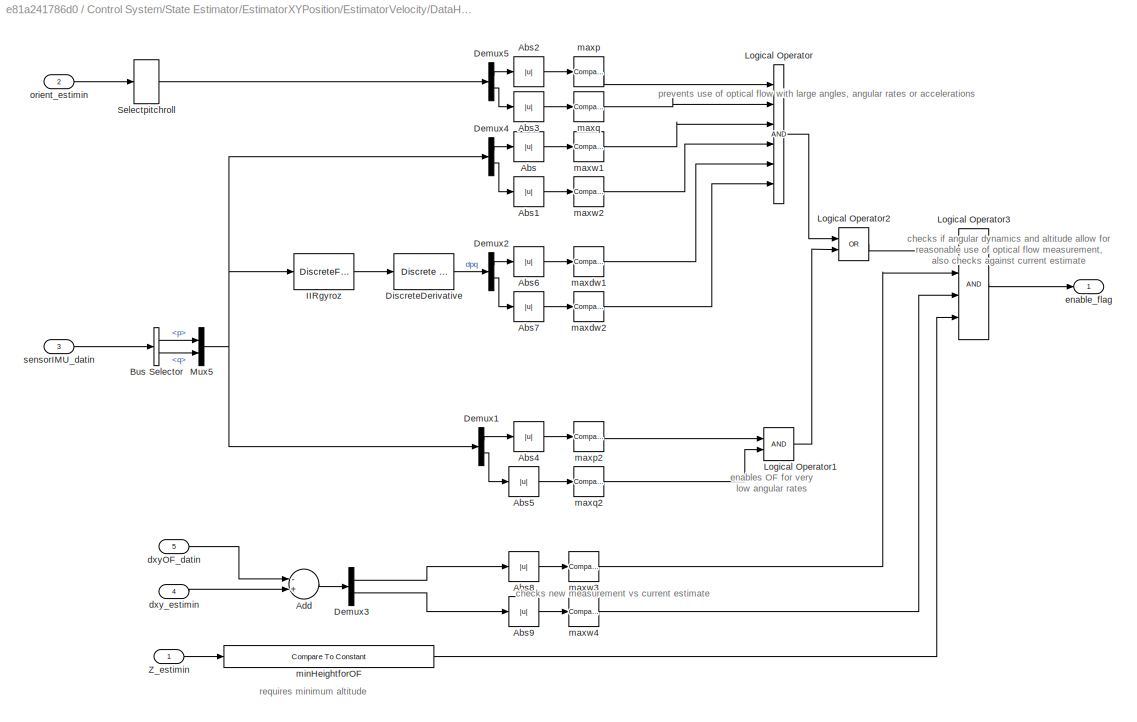
BLOCK [SubSystem] Control System/State Estimator/EstimatorXYPosition/EstimatorVelocity/DataHandling
  Ports = [5, 1]
  RequestExecContextInheritance = off
BLOCK [Abs] Control System/State Estimator/EstimatorXYPosition/EstimatorVelocity/DataHandling/Abs
  SaturateOnIntegerOverflow = off
BLOCK [Abs] Control System/State Estimator/EstimatorXYPosition/EstimatorVelocity/DataHandling/Abs1
  SaturateOnIntegerOverflow = off
BLOCK [Abs] Control System/State Estimator/EstimatorXYPosition/EstimatorVelocity/DataHandling/Abs2
  SaturateOnIntegerOverflow = off
BLOCK [Abs] Control System/State Estimator/EstimatorXYPosition/EstimatorVelocity/DataHandling/Abs3
  SaturateOnIntegerOverflow = off
BLOCK [Abs] Control System/State Estimator/EstimatorXYPosition/EstimatorVelocity/DataHandling/Abs4
  SaturateOnIntegerOverflow = off
BLOCK [Abs] Control System/State Estimator/EstimatorXYPosition/EstimatorVelocity/DataHandling/Abs5
  SaturateOnIntegerOverflow = off
BLOCK [Abs] Control System/State Estimator/EstimatorXYPosition/EstimatorVelocity/DataHandling/Abs6
  SaturateOnIntegerOverflow = off
BLOCK [Abs] Control System/State Estimator/EstimatorXYPosition/EstimatorVelocity/DataHandling/Abs7
  SaturateOnIntegerOverflow = off
BLOCK [Abs] Control System/State Estimator/EstimatorXYPosition/EstimatorVelocity/DataHandling/Abs8
  SaturateOnIntegerOverflow = off
BLOCK [Abs] Control System/State Estimator/EstimatorXYPosition/EstimatorVelocity/DataHandling/Abs9
  SaturateOnIntegerOverflow = off
BLOCK [Sum] Control System/State Estimator/EstimatorXYPosition/EstimatorVelocity/DataHandling/Add
  InputSameDT = off
  Inputs = -+
  OutDataTypeStr = Inherit: Inherit via internal rule
  Ports = [2, 1]
  SaturateOnIntegerOverflow = off
BLOCK [BusSelector] Control System/State Estimator/EstimatorXYPosition/EstimatorVelocity/DataHandling/Bus Selector
  OutputAsBus = off
  OutputSignals = p,q
  Ports = [1, 2]
BLOCK [Demux] Control System/State Estimator/EstimatorXYPosition/EstimatorVelocity/DataHandling/Demux1
  DisplayOption = bar
  Outputs = 2
  Ports = [1, 2]
BLOCK [Demux] Control System/State Estimator/EstimatorXYPosition/EstimatorVelocity/DataHandling/Demux2
  DisplayOption = bar
  Outputs = 2
  Ports = [1, 2]
BLOCK [Demux] Control System/State Estimator/EstimatorXYPosition/EstimatorVelocity/DataHandling/Demux3
  DisplayOption = bar
  Outputs = 2
  Ports = [1, 2]
BLOCK [Demux] Control System/State Estimator/EstimatorXYPosition/EstimatorVelocity/DataHandling/Demux4
  DisplayOption = bar
  Outputs = 2
  Ports = [1, 2]
BLOCK [Demux] Control System/State Estimator/EstimatorXYPosition/EstimatorVelocity/DataHandling/Demux5
  DisplayOption = bar
  Outputs = 2
  Ports = [1, 2]
BLOCK [Reference] Control System/State Estimator/EstimatorXYPosition/EstimatorVelocity/DataHandling/DiscreteDerivative  REF=simulink/Discrete/Discrete Derivative
  Ports = [1, 1]
  SourceBlock = simulink/Discrete/Discrete Derivative
  SourceProductBaseCode = SL
  SourceProductName = Simulink
  SourceType = Discrete Derivative
BLOCK [DiscreteFilter] Control System/State Estimator/EstimatorXYPosition/EstimatorVelocity/DataHandling/IIRgyroz
  Denominator = Estimator.IMU.filterGyroDen
  InputPortMap = u0
  Numerator = Estimator.IMU.filterGyroNum
  Ports = [1, 1]
BLOCK [Logic] Control System/State Estimator/EstimatorXYPosition/EstimatorVelocity/DataHandling/Logical Operator
  AllPortsSameDT = off
  Inputs = 6
  OutDataTypeStr = boolean
  Ports = [6, 1]
BLOCK [Logic] Control System/State Estimator/EstimatorXYPosition/EstimatorVelocity/DataHandling/Logical Operator1
  AllPortsSameDT = off
  OutDataTypeStr = boolean
  Ports = [2, 1]
BLOCK [Logic] Control System/State Estimator/EstimatorXYPosition/EstimatorVelocity/DataHandling/Logical Operator2
  AllPortsSameDT = off
  Operator = OR
  OutDataTypeStr = boolean
  Ports = [2, 1]
BLOCK [Logic] Control System/State Estimator/EstimatorXYPosition/EstimatorVelocity/DataHandling/Logical Operator3
  AllPortsSameDT = off
  Inputs = 4
  OutDataTypeStr = boolean
  Ports = [4, 1]
BLOCK [Mux] Control System/State Estimator/EstimatorXYPosition/EstimatorVelocity/DataHandling/Mux5
  DisplayOption = bar
  Inputs = 2
  Ports = [2, 1]
BLOCK [Selector] Control System/State Estimator/EstimatorXYPosition/EstimatorVelocity/DataHandling/Selectpitchroll
  IndexOptions = Index vector (dialog)
  Indices = [2 3]
  InputPortWidth = 3
  OutputSizes = 1
  Ports = [1, 1]
BLOCK [Inport] Control System/State Estimator/EstimatorXYPosition/EstimatorVelocity/DataHandling/Z_estimin
  IconDisplay = Port number
BLOCK [Inport] Control System/State Estimator/EstimatorXYPosition/EstimatorVelocity/DataHandling/dxyOF_datin
  IconDisplay = Port number
  Port = 5
BLOCK [Inport] Control System/State Estimator/EstimatorXYPosition/EstimatorVelocity/DataHandling/dxy_estimin
  IconDisplay = Port number
  Port = 4
BLOCK [Outport] Control System/State Estimator/EstimatorXYPosition/EstimatorVelocity/DataHandling/enable_flag
  IconDisplay = Port number
  VectorParamsAs1DForOutWhenUnconnected = off
BLOCK [Reference] Control System/State Estimator/EstimatorXYPosition/EstimatorVelocity/DataHandling/maxdw1  REF=simulink/Logic and Bit
Operations/Compare
To Constant
  Ports = [1, 1]
  SourceBlock = simulink/Logic and Bit\nOperations/Compare\nTo Constant
  SourceProductBaseCode = SL
  SourceProductName = Simulink
  SourceType = Compare To Constant
BLOCK [Reference] Control System/State Estimator/EstimatorXYPosition/EstimatorVelocity/DataHandling/maxdw2  REF=simulink/Logic and Bit
Operations/Compare
To Constant
  Ports = [1, 1]
  SourceBlock = simulink/Logic and Bit\nOperations/Compare\nTo Constant
  SourceProductBaseCode = SL
  SourceProductName = Simulink
  SourceType = Compare To Constant
BLOCK [Reference] Control System/State Estimator/EstimatorXYPosition/EstimatorVelocity/DataHandling/maxp  REF=simulink/Logic and Bit
Operations/Compare
To Constant
  Ports = [1, 1]
  SourceBlock = simulink/Logic and Bit\nOperations/Compare\nTo Constant
  SourceProductBaseCode = SL
  SourceProductName = Simulink
  SourceType = Compare To Constant
BLOCK [Reference] Control System/State Estimator/EstimatorXYPosition/EstimatorVelocity/DataHandling/maxp2  REF=simulink/Logic and Bit
Operations/Compare
To Constant
  Ports = [1, 1]
  SourceBlock = simulink/Logic and Bit\nOperations/Compare\nTo Constant
  SourceProductBaseCode = SL
  SourceProductName = Simulink
  SourceType = Compare To Constant
BLOCK [Reference] Control System/State Estimator/EstimatorXYPosition/EstimatorVelocity/DataHandling/maxq  REF=simulink/Logic and Bit
Operations/Compare
To Constant
  Ports = [1, 1]
  SourceBlock = simulink/Logic and Bit\nOperations/Compare\nTo Constant
  SourceProductBaseCode = SL
  SourceProductName = Simulink
  SourceType = Compare To Constant
BLOCK [Reference] Control System/State Estimator/EstimatorXYPosition/EstimatorVelocity/DataHandling/maxq2  REF=simulink/Logic and Bit
Operations/Compare
To Constant
  Ports = [1, 1]
  SourceBlock = simulink/Logic and Bit\nOperations/Compare\nTo Constant
  SourceProductBaseCode = SL
  SourceProductName = Simulink
  SourceType = Compare To Constant
BLOCK [Reference] Control System/State Estimator/EstimatorXYPosition/EstimatorVelocity/DataHandling/maxw1  REF=simulink/Logic and Bit
Operations/Compare
To Constant
  Ports = [1, 1]
  SourceBlock = simulink/Logic and Bit\nOperations/Compare\nTo Constant
  SourceProductBaseCode = SL
  SourceProductName = Simulink
  SourceType = Compare To Constant
BLOCK [Reference] Control System/State Estimator/EstimatorXYPosition/EstimatorVelocity/DataHandling/maxw2  REF=simulink/Logic and Bit
Operations/Compare
To Constant
  Ports = [1, 1]
  SourceBlock = simulink/Logic and Bit\nOperations/Compare\nTo Constant
  SourceProductBaseCode = SL
  SourceProductName = Simulink
  SourceType = Compare To Constant
BLOCK [Reference] Control System/State Estimator/EstimatorXYPosition/EstimatorVelocity/DataHandling/maxw3  REF=simulink/Logic and Bit
Operations/Compare
To Constant
  Ports = [1, 1]
  SourceBlock = simulink/Logic and Bit\nOperations/Compare\nTo Constant
  SourceProductBaseCode = SL
  SourceProductName = Simulink
  SourceType = Compare To Constant
BLOCK [Reference] Control System/State Estimator/EstimatorXYPosition/EstimatorVelocity/DataHandling/maxw4  REF=simulink/Logic and Bit
Operations/Compare
To Constant
  Ports = [1, 1]
  SourceBlock = simulink/Logic and Bit\nOperations/Compare\nTo Constant
  SourceProductBaseCode = SL
  SourceProductName = Simulink
  SourceType = Compare To Constant
BLOCK [Reference] Control System/State Estimator/EstimatorXYPosition/EstimatorVelocity/DataHandling/minHeightforOF  REF=simulink/Logic and Bit
Operations/Compare
To Constant
  Ports = [1, 1]
  SourceBlock = simulink/Logic and Bit\nOperations/Compare\nTo Constant
  SourceProductBaseCode = SL
  SourceProductName = Simulink
  SourceType = Compare To Constant
BLOCK [Inport] Control System/State Estimator/EstimatorXYPosition/EstimatorVelocity/DataHandling/orient_estimin
  IconDisplay = Port number
  Port = 2
BLOCK [Inport] Control System/State Estimator/EstimatorXYPosition/EstimatorVelocity/DataHandling/sensorIMU_datin
  IconDisplay = Port number
  Port = 3
BLOCK [Delay] Control System/State Estimator/EstimatorXYPosition/EstimatorVelocity/Delay
  DelayLength = 1
  InitialCondition = 0
  InputPortMap = u0
  Ports = [1, 1]
BLOCK [Gain] Control System/State Estimator/EstimatorXYPosition/EstimatorVelocity/Gain
  Gain = -1
  OutDataTypeStr = Inherit: Inherit via internal rule
  ParamDataTypeStr = Inherit: Inherit via internal rule
  SaturateOnIntegerOverflow = off
BLOCK [Reference] Control System/State Estimator/EstimatorXYPosition/EstimatorVelocity/KalmanFilter_dxdy  REF=ctrlSharedLib/Kalman Filter
  Ports = [3, 1]
  SourceBlock = ctrlSharedLib/Kalman Filter
  SourceProductBaseCode = CT
  SourceProductName = Control System Toolbox
  SourceType = ctrlKalmanFilter
BLOCK [Selector] Control System/State Estimator/EstimatorXYPosition/EstimatorVelocity/Select dxy
  IndexOptions = Index vector (dialog)
  Indices = [1 2]
  InputPortWidth = 3
  OutputSizes = 1
  Ports = [1, 1]
BLOCK [Switch] Control System/State Estimator/EstimatorXYPosition/EstimatorVelocity/Switch
  Criteria = u2 > Threshold
  InputSameDT = off
  SaturateOnIntegerOverflow = off
BLOCK [Inport] Control System/State Estimator/EstimatorXYPosition/EstimatorVelocity/Z_estimin
  IconDisplay = Port number
  Port = 2
  SampleTime = Ts
BLOCK [InportShadow] Control System/State Estimator/EstimatorXYPosition/EstimatorVelocity/Z_estimin1
  IconDisplay = Port number
  Port = 2
  SampleTime = Ts
BLOCK [Outport] Control System/State Estimator/EstimatorXYPosition/EstimatorVelocity/dxy_estimout
  IconDisplay = Port number
  VectorParamsAs1DForOutWhenUnconnected = off
BLOCK [Gain] Control System/State Estimator/EstimatorXYPosition/EstimatorVelocity/opticalFlowErrorCorrect
  Gain = 1.15
  OutDataTypeStr = Inherit: Inherit via internal rule
  ParamDataTypeStr = Inherit: Inherit via internal rule
  SaturateOnIntegerOverflow = off
BLOCK [Inport] Control System/State Estimator/EstimatorXYPosition/EstimatorVelocity/opticalFlow_datin
  IconDisplay = Port number
BLOCK [Inport] Control System/State Estimator/EstimatorXYPosition/EstimatorVelocity/orient_estimin
  IconDisplay = Port number
  Port = 4
BLOCK [Inport] Control System/State Estimator/EstimatorXYPosition/EstimatorVelocity/sensorIMU_datin
  IconDisplay = Port number
  Port = 3
BLOCK [SubSystem] Control System/State Estimator/EstimatorXYPosition/EstimatorXYPosition
  Ports = [4, 1]
  RequestExecContextInheritance = off
BLOCK [Math] Control System/State Estimator/EstimatorXYPosition/EstimatorXYPosition/Math Function
  Operator = transpose
  Ports = [1, 1]
BLOCK [Mux] Control System/State Estimator/EstimatorXYPosition/EstimatorXYPosition/Mux2
  DisplayOption = bar
  Inputs = 2
  Ports = [2, 1]
BLOCK [Product] Control System/State Estimator/EstimatorXYPosition/EstimatorXYPosition/Product
  InputSameDT = off
  Multiplication = Matrix(*)
  OutDataTypeStr = Inherit: Inherit via internal rule
  Ports = [2, 1]
  RndMeth = Floor
  SaturateOnIntegerOverflow = off
BLOCK [Reference] Control System/State Estimator/EstimatorXYPosition/EstimatorXYPosition/Rotation Angles to Direction Cosine Matrix  REF=sharedtransform/Rotation Angles to
Direction Cosine Matrix
  AttributesFormatString = Rotation Order: %<rotationOrder>
  Ports = [1, 1]
  SourceBlock = sharedtransform/Rotation Angles to\nDirection Cosine Matrix
  SourceProductBaseCode = AE
  SourceProductName = Aerospace Blockset
  SourceType = Ang2DCM
BLOCK [Selector] Control System/State Estimator/EstimatorXYPosition/EstimatorXYPosition/SelectdXY
  IndexOptions = Index vector (dialog)
  Indices = [1 2]
  InputPortWidth = 3
  OutputSizes = 1
  Ports = [1, 1]
BLOCK [DiscreteIntegrator] Control System/State Estimator/EstimatorXYPosition/EstimatorXYPosition/SimplyIntegrateVelocity
  ExternalReset = rising
  ICPrevOutput = DiscIntNeverNeededParam
  ICPrevScaledInput = DiscIntNeverNeededParam
  InitialConditionSetting = Auto
  Ports = [2, 1]
  SampleTime = Ts
BLOCK [Outport] Control System/State Estimator/EstimatorXYPosition/EstimatorXYPosition/XY_estimout
  IconDisplay = Port number
  VectorParamsAs1DForOutWhenUnconnected = off
BLOCK [Inport] Control System/State Estimator/EstimatorXYPosition/EstimatorXYPosition/controlModePosVSOrient_flagin
  IconDisplay = Port number
  Port = 3
BLOCK [Inport] Control System/State Estimator/EstimatorXYPosition/EstimatorXYPosition/dxy_estimin
  IconDisplay = Port number
BLOCK [Inport] Control System/State Estimator/EstimatorXYPosition/EstimatorXYPosition/dz_estimin
  IconDisplay = Port number
  Port = 4
BLOCK [Inport] Control System/State Estimator/EstimatorXYPosition/EstimatorXYPosition/orient_estimin
  IconDisplay = Port number
  Port = 2
  SampleTime = Ts
BLOCK [Outport] Control System/State Estimator/EstimatorXYPosition/XY_estimout
  IconDisplay = Port number
  VectorParamsAs1DForOutWhenUnconnected = off
BLOCK [Inport] Control System/State Estimator/EstimatorXYPosition/Z_estimin
  IconDisplay = Port number
  Port = 4
BLOCK [Inport] Control System/State Estimator/EstimatorXYPosition/controlModePosVSOrient_flagin
  IconDisplay = Port number
  Port = 2
BLOCK [Outport] Control System/State Estimator/EstimatorXYPosition/dxy_estimout
  IconDisplay = Port number
  Port = 2
  VectorParamsAs1DForOutWhenUnconnected = off
BLOCK [Inport] Control System/State Estimator/EstimatorXYPosition/dz_estimin
  IconDisplay = Port number
  Port = 5
BLOCK [Inport] Control System/State Estimator/EstimatorXYPosition/opticalFlow_datin
  IconDisplay = Port number
BLOCK [Inport] Control System/State Estimator/EstimatorXYPosition/orient_estimin
  IconDisplay = Port number
  Port = 6
BLOCK [Inport] Control System/State Estimator/EstimatorXYPosition/sensorIMU_datin
  IconDisplay = Port number
  Port = 3
BLOCK [Outport] Control System/State Estimator/Out Bus Element
  IconDisplay = Port number
  VectorParamsAs1DForOutWhenUnconnected = off
BLOCK [Outport] Control System/State Estimator/Out Bus Element1
  IconDisplay = Port number
  VectorParamsAs1DForOutWhenUnconnected = off
BLOCK [Outport] Control System/State Estimator/Out Bus Element10
  IconDisplay = Port number
  VectorParamsAs1DForOutWhenUnconnected = off
BLOCK [Outport] Control System/State Estimator/Out Bus Element11
  IconDisplay = Port number
  VectorParamsAs1DForOutWhenUnconnected = off
BLOCK [Outport] Control System/State Estimator/Out Bus Element2
  IconDisplay = Port number
  VectorParamsAs1DForOutWhenUnconnected = off
BLOCK [Outport] Control System/State Estimator/Out Bus Element3
  IconDisplay = Port number
  VectorParamsAs1DForOutWhenUnconnected = off
BLOCK [Outport] Control System/State Estimator/Out Bus Element4
  IconDisplay = Port number
  VectorParamsAs1DForOutWhenUnconnected = off
BLOCK [Outport] Control System/State Estimator/Out Bus Element5
  IconDisplay = Port number
  VectorParamsAs1DForOutWhenUnconnected = off
BLOCK [Outport] Control System/State Estimator/Out Bus Element6
  IconDisplay = Port number
  VectorParamsAs1DForOutWhenUnconnected = off
BLOCK [Outport] Control System/State Estimator/Out Bus Element7
  IconDisplay = Port number
  VectorParamsAs1DForOutWhenUnconnected = off
BLOCK [Outport] Control System/State Estimator/Out Bus Element8
  IconDisplay = Port number
  VectorParamsAs1DForOutWhenUnconnected = off
BLOCK [Outport] Control System/State Estimator/Out Bus Element9
  IconDisplay = Port number
  VectorParamsAs1DForOutWhenUnconnected = off
BLOCK [SubSystem] Control System/State Estimator/SensorPreprocessing
  Ports = [2, 3]
  RequestExecContextInheritance = off
BLOCK [Bias] Control System/State Estimator/SensorPreprocessing/Assuming that calib was done level!
  Bias = [0 0 +g 0 0 0]
  SaturateOnIntegerOverflow = off
BLOCK [BusCreator] Control System/State Estimator/SensorPreprocessing/Bus Creator3
  DisplayOption = bar
  InheritFromInputs = on
  Inputs = 6
  Ports = [6, 1]
BLOCK [BusSelector] Control System/State Estimator/SensorPreprocessing/Bus Selector
  OutputAsBus = off
  OutputSignals = ddx,ddy,ddz,p,q,r
  Ports = [1, 6]
BLOCK [BusSelector] Control System/State Estimator/SensorPreprocessing/Bus Selector1
  OutputAsBus = off
  OutputSignals = altitude_sonar,prs
  Ports = [1, 2]
BLOCK [BusSelector] Control System/State Estimator/SensorPreprocessing/Bus Selector2
  OutputAsBus = off
  OutputSignals = HAL_acc_SI,HAL_gyro_SI,HAL_ultrasound_SI,HAL_pressure_SI,HAL_vbat_SI
  Ports = [1, 5]
BLOCK [BusSelector] Control System/State Estimator/SensorPreprocessing/Bus Selector3
  OutputAsBus = off
  OutputSignals = HALSensors
  Ports = [1, 1]
BLOCK [DataTypeConversion] Control System/State Estimator/SensorPreprocessing/Data Type Conversion
  RndMeth = Floor
  SaturateOnIntegerOverflow = off
BLOCK [Demux] Control System/State Estimator/SensorPreprocessing/Demux1
  DisplayOption = bar
  Outputs = 3
  Ports = [1, 3]
BLOCK [Demux] Control System/State Estimator/SensorPreprocessing/Demux2
  DisplayOption = bar
  Outputs = 3
  Ports = [1, 3]
BLOCK [DiscreteFir] Control System/State Estimator/SensorPreprocessing/FIR_IMUaccel
  Coefficients = Estimator.IMU.filterAccel.Coefficients
  InputPortMap = u0
  OutputPortMap = o0
  Ports = [1, 1]
BLOCK [DiscreteFilter] Control System/State Estimator/SensorPreprocessing/IIR_IMUgyro_r
  Denominator = Estimator.IMU.filterGyroDen
  InputPortMap = u0
  Numerator = Estimator.IMU.filterGyroNum
  Ports = [1, 1]
BLOCK [Mux] Control System/State Estimator/SensorPreprocessing/Mux1
  DisplayOption = bar
  Inputs = 6
  Ports = [6, 1]
BLOCK [Selector] Control System/State Estimator/SensorPreprocessing/Select Accel
  IndexOptions = Index vector (dialog)
  Indices = [1 2 3]
  InputPortWidth = 6
  OutputSizes = 1
  Ports = [1, 1]
BLOCK [Selector] Control System/State Estimator/SensorPreprocessing/Select pqr
  IndexOptions = Index vector (dialog)
  Indices = [4 5 6]
  InputPortWidth = 6
  OutputSizes = 1
  Ports = [1, 1]
BLOCK [Selector] Control System/State Estimator/SensorPreprocessing/Selector2
  IndexOptions = Index vector (dialog)
  Indices = [1:6]
  InputPortWidth = 8
  OutputSizes = 1
  Ports = [1, 1]
BLOCK [Selector] Control System/State Estimator/SensorPreprocessing/Selector4
  IndexOptions = Index vector (dialog)
  Indices = [7]
  InputPortWidth = 8
  OutputSizes = 1
  Ports = [1, 1]
BLOCK [Sum] Control System/State Estimator/SensorPreprocessing/Sum1
  IconShape = round
  InputSameDT = off
  Inputs = |+-
  OutDataTypeStr = Inherit: Inherit via internal rule
  Ports = [2, 1]
  SaturateOnIntegerOverflow = off
BLOCK [Sum] Control System/State Estimator/SensorPreprocessing/Sum2
  IconShape = round
  InputSameDT = off
  Inputs = -+|
  OutDataTypeStr = Inherit: Inherit via internal rule
  Ports = [2, 1]
  SaturateOnIntegerOverflow = off
BLOCK [Outport] Control System/State Estimator/SensorPreprocessing/altSonar_datout
  IconDisplay = Port number
  Port = 2
  VectorParamsAs1DForOutWhenUnconnected = off
BLOCK [Gain] Control System/State Estimator/SensorPreprocessing/inverseIMU_gain
  Gain = Estimator.inverseIMUGain
  OutDataTypeStr = single
  ParamDataTypeStr = single
  SaturateOnIntegerOverflow = off
BLOCK [Outport] Control System/State Estimator/SensorPreprocessing/prsDelta_datout
  IconDisplay = Port number
  Port = 3
  VectorParamsAs1DForOutWhenUnconnected = off
BLOCK [Inport] Control System/State Estimator/SensorPreprocessing/sensorCalibration_datin
  IconDisplay = Port number
  Port = 2
BLOCK [Outport] Control System/State Estimator/SensorPreprocessing/sensorIMU_datout
  IconDisplay = Port number
  VectorParamsAs1DForOutWhenUnconnected = off
BLOCK [Inport] Control System/State Estimator/SensorPreprocessing/sensordata_datin
  IconDisplay = Port number
BLOCK [SubSystem] Control System/State Estimator/SensorPreprocessing/sensordata_group
  Ports = [5, 1]
  RequestExecContextInheritance = off
BLOCK [BusSelector] Control System/State Estimator/SensorPreprocessing/sensordata_group/Bus Selector1
  OutputAsBus = off
  OutputSignals = vbat_V,vbat_percentage
  Ports = [1, 2]
BLOCK [BusSelector] Control System/State Estimator/SensorPreprocessing/sensordata_group/Bus Selector3
  OutputAsBus = off
  OutputSignals = x,y,z
  Ports = [1, 3]
BLOCK [BusSelector] Control System/State Estimator/SensorPreprocessing/sensordata_group/Bus Selector4
  OutputAsBus = off
  OutputSignals = x,y,z
  Ports = [1, 3]
BLOCK [BusSelector] Control System/State Estimator/SensorPreprocessing/sensordata_group/Bus Selector5
  OutputAsBus = off
  OutputSignals = altitude
  Ports = [1, 1]
BLOCK [BusSelector] Control System/State Estimator/SensorPreprocessing/sensordata_group/Bus Selector6
  OutputAsBus = off
  OutputSignals = pressure
  Ports = [1, 1]
BLOCK [Inport] Control System/State Estimator/SensorPreprocessing/sensordata_group/HAL_acc_SI
  IconDisplay = Port number
  OutDataTypeStr = Bus: HAL_acc_SI_t
BLOCK [Inport] Control System/State Estimator/SensorPreprocessing/sensordata_group/HAL_gyro_SI
  IconDisplay = Port number
  OutDataTypeStr = Bus: HAL_gyro_SI_t
  Port = 2
BLOCK [Inport] Control System/State Estimator/SensorPreprocessing/sensordata_group/HAL_pressure_SI
  IconDisplay = Port number
  OutDataTypeStr = Bus: HAL_pressure_SI_t
  Port = 4
BLOCK [Inport] Control System/State Estimator/SensorPreprocessing/sensordata_group/HAL_ultrasound_SI
  IconDisplay = Port number
  OutDataTypeStr = Bus: HAL_ultrasound_SI_t
  Port = 3
BLOCK [Inport] Control System/State Estimator/SensorPreprocessing/sensordata_group/HAL_vbat_SI
  IconDisplay = Port number
  OutDataTypeStr = Bus: HAL_vbat_SI_t
  Port = 5
BLOCK [Outport] Control System/State Estimator/SensorPreprocessing/sensordata_group/Out Bus Element
  IconDisplay = Port number
  VectorParamsAs1DForOutWhenUnconnected = off
BLOCK [Outport] Control System/State Estimator/SensorPreprocessing/sensordata_group/Out Bus Element1
  IconDisplay = Port number
  VectorParamsAs1DForOutWhenUnconnected = off
BLOCK [Outport] Control System/State Estimator/SensorPreprocessing/sensordata_group/Out Bus Element2
  IconDisplay = Port number
  VectorParamsAs1DForOutWhenUnconnected = off
BLOCK [Outport] Control System/State Estimator/SensorPreprocessing/sensordata_group/Out Bus Element3
  IconDisplay = Port number
  VectorParamsAs1DForOutWhenUnconnected = off
BLOCK [Outport] Control System/State Estimator/SensorPreprocessing/sensordata_group/Out Bus Element4
  IconDisplay = Port number
  VectorParamsAs1DForOutWhenUnconnected = off
BLOCK [Outport] Control System/State Estimator/SensorPreprocessing/sensordata_group/Out Bus Element5
  IconDisplay = Port number
  VectorParamsAs1DForOutWhenUnconnected = off
BLOCK [Outport] Control System/State Estimator/SensorPreprocessing/sensordata_group/Out Bus Element6
  IconDisplay = Port number
  VectorParamsAs1DForOutWhenUnconnected = off
BLOCK [Outport] Control System/State Estimator/SensorPreprocessing/sensordata_group/Out Bus Element7
  IconDisplay = Port number
  VectorParamsAs1DForOutWhenUnconnected = off
BLOCK [Outport] Control System/State Estimator/SensorPreprocessing/sensordata_group/Out Bus Element8
  IconDisplay = Port number
  VectorParamsAs1DForOutWhenUnconnected = off
BLOCK [Outport] Control System/State Estimator/SensorPreprocessing/sensordata_group/Out Bus Element9
  IconDisplay = Port number
  VectorParamsAs1DForOutWhenUnconnected = off
BLOCK [Terminator] Control System/State Estimator/Terminator
BLOCK [Terminator] Control System/State Estimator/Terminator1
BLOCK [Inport] Control System/State Estimator/controlModePosVSOrient_flagin
  IconDisplay = Port number
  OutDataTypeStr = boolean
BLOCK [Inport] Control System/State Estimator/opticalFlow_datin
  IconDisplay = Port number
  Port = 3
BLOCK [Inport] Control System/State Estimator/sensorCalibration_datin
  IconDisplay = Port number
  Port = 4
BLOCK [Inport] Control System/State Estimator/sensor_data_in
  IconDisplay = Port number
  Port = 2
BLOCK [ToWorkspace] Control System/To Workspace
  FixptAsFi = on
  MaxDataPoints = inf
  Ports = [1]
  SampleTime = -1
  SaveFormat = Structure With Time
  VariableName = estimatedStates
BLOCK [Inport] Control System/Vision-based Data
  IconDisplay = Port number
  Port = 3
BLOCK [Constant] Control System/controlModePosVsOrient
  OutDataTypeStr = boolean
BLOCK [Outport] Control System/motorCmds
  IconDisplay = Port number
  VectorParamsAs1DForOutWhenUnconnected = off
BLOCK [Outport] Flag
  IconDisplay = Port number
  OutDataTypeStr = uint8
  Port = 2
  PortDimensions = 1
  VectorParamsAs1DForOutWhenUnconnected = off
BLOCK [Inport] Image Data
  BusOutputAsStruct = on
  IconDisplay = Port number
  InitFcn = codertarget.parrot.internal.inportCallback(gcb);
  OutDataTypeStr = uint8
  Port = 3
  PortDimensions = [4 9600]
  Tag = IP_IN
BLOCK [SubSystem] Image Processing System
  InitFcn = codertarget.parrot.internal.ipSubsystemCallback(gcb);
  Ports = [1, 1]
  RTWFcnName = ImageFunction
  RTWFcnNameOpts = User specified
  RTWSystemCode = Inline
  RequestExecContextInheritance = off
  SystemSampleTime = 40*Ts
  Tag = IP_SUB
  TreatAsAtomicUnit = on
  TreatAsGroupedWhenPropagatingVariantConditions = off
BLOCK [Reference] Image Processing System/Erosion for landing mark  REF=visionmorphops/Erosion
  Ports = [1, 1]
  SourceBlock = visionmorphops/Erosion
  SourceProductBaseCode = VP
  SourceProductName = Computer Vision Toolbox
  SourceType = Erosion
BLOCK [SubSystem] Image Processing System/Image Binarization
  ErrorFcn = Stateflow.Translate.translate
  PermitHierarchicalResolution = ExplicitOnly
  Ports = [3, 1]
  RequestExecContextInheritance = off
  SFBlockType = MATLAB Function
  TreatAsAtomicUnit = on
BLOCK [Demux] Image Processing System/Image Binarization/ Demux 
  Outputs = 1
  Ports = [1, 1]
BLOCK [S-Function] Image Processing System/Image Binarization/ SFunction 
  EnableBusSupport = on
  FunctionName = sf_sfun
  Parameters = BINARIZER_THRESHOLD,G_B_GAIN
  PortCounts = [3 2]
  Ports = [3, 2]
  SFcnIsStateOwnerBlock = off
  SFunctionDeploymentMode = off
  Tag = Stateflow S-Function 17
BLOCK [Terminator] Image Processing System/Image Binarization/ Terminator 
BLOCK [Inport] Image Processing System/Image Binarization/b
  IconDisplay = Port number
  Port = 3
BLOCK [Outport] Image Processing System/Image Binarization/binarized_frame
  IconDisplay = Port number
  VectorParamsAs1DForOutWhenUnconnected = off
BLOCK [Inport] Image Processing System/Image Binarization/g
  IconDisplay = Port number
  Port = 2
BLOCK [Inport] Image Processing System/Image Binarization/r
  IconDisplay = Port number
BLOCK [Inport] Image Processing System/Image Data
  IconDisplay = Port number
BLOCK [SubSystem] Image Processing System/Land Mark Detector
  ErrorFcn = Stateflow.Translate.translate
  PermitHierarchicalResolution = ExplicitOnly
  Ports = [2, 1]
  RequestExecContextInheritance = off
  SFBlockType = MATLAB Function
  TreatAsAtomicUnit = on
BLOCK [Demux] Image Processing System/Land Mark Detector/ Demux 
  Outputs = 1
  Ports = [1, 1]
BLOCK [S-Function] Image Processing System/Land Mark Detector/ SFunction 
  EnableBusSupport = on
  FunctionName = sf_sfun
  Parameters = COG_X,COG_Y,FRAME_SIZE_HEIGHT,FRAME_SIZE_WIDTH
  PortCounts = [2 2]
  Ports = [2, 2]
  SFcnIsStateOwnerBlock = off
  SFunctionDeploymentMode = off
  Tag = Stateflow S-Function 8
BLOCK [Terminator] Image Processing System/Land Mark Detector/ Terminator 
BLOCK [Inport] Image Processing System/Land Mark Detector/binary
  IconDisplay = Port number
BLOCK [Outport] Image Processing System/Land Mark Detector/output
  IconDisplay = Port number
  VectorParamsAs1DForOutWhenUnconnected = off
BLOCK [Inport] Image Processing System/Land Mark Detector/waypoint_follower_variable
  IconDisplay = Port number
  Port = 2
BLOCK [Mux] Image Processing System/Mux
  DisplayOption = bar
  Inputs = 2
  Ports = [2, 1]
BLOCK [Reference] Image Processing System/PARROT Image Conversion  REF=parrotlib/PARROT Image Conversion
  Ports = [1, 3]
  SourceBlock = parrotlib/PARROT Image Conversion
  SourceProductBaseCode = MINIDRONES
  SourceProductName = Simulink Support Package for Parrot Minidrones
  SourceType = parrot.ImageProcess
BLOCK [VideoViewer] Image Processing System/RGB Image
  FigPos = [89 534 332 253.6]
  Ports = [3]
  ScopeSpecificationString = vipscopes.VideoViewerScopeCfg('CurrentConfiguration', extmgr.ConfigurationSet(extmgr.Configuration('Core','General UI',true),extmgr.Configuration('Core','Source UI',true),extmgr.Configuration('Sources','WiredSimulink',true),extmgr.Configuration('Visuals','Video',true),extmgr.Configuration('Tools','Image Navigation Tools',true,'Magnification',2),extmgr.Configuration('Tools','Image Tool',true),extmg...<+94ch>
  colormapValue = gray(256)
  imagePorts = separate color signals
BLOCK [Outport] Image Processing System/Vision-based Data
  IconDisplay = Port number
  VectorParamsAs1DForOutWhenUnconnected = off
BLOCK [SubSystem] Image Processing System/Waypoints Follower
  Ports = [1, 1]
  RequestExecContextInheritance = off
BLOCK [DataTypeConversion] Image Processing System/Waypoints Follower/Cast To Boolean1
  OutDataTypeStr = boolean
  RndMeth = Floor
  SaturateOnIntegerOverflow = off
BLOCK [Delay] Image Processing System/Waypoints Follower/Delay3
  DelayLength = 1
  InitialCondition = -13
  InputPortMap = u0
  Ports = [1, 1]
BLOCK [Delay] Image Processing System/Waypoints Follower/Delay4
  DelayLength = 1
  InitialCondition = -13
  InputPortMap = u0
  Ports = [1, 1]
BLOCK [Delay] Image Processing System/Waypoints Follower/Delay5
  DelayLength = 1
  InitialCondition = -13
  InputPortMap = u0
  Ports = [1, 1]
BLOCK [Reference] Image Processing System/Waypoints Follower/Erosion  REF=visionmorphops/Erosion
  Ports = [1, 1]
  SourceBlock = visionmorphops/Erosion
  SourceProductBaseCode = VP
  SourceProductName = Computer Vision Toolbox
  SourceType = Erosion
BLOCK [From] Image Processing System/Waypoints Follower/From
  GotoTag = error_x_track
BLOCK [From] Image Processing System/Waypoints Follower/From1
  GotoTag = error_y_track
BLOCK [From] Image Processing System/Waypoints Follower/From2
  GotoTag = flag_track
BLOCK [From] Image Processing System/Waypoints Follower/From3
  GotoTag = flag_track
BLOCK [From] Image Processing System/Waypoints Follower/From4
  GotoTag = error_y_track
BLOCK [From] Image Processing System/Waypoints Follower/From5
  GotoTag = error_x_track
BLOCK [From] Image Processing System/Waypoints Follower/From6
  GotoTag = flag
BLOCK [Mux] Image Processing System/Waypoints Follower/Mux
  DisplayOption = bar
  Inputs = 3
  Ports = [3, 1]
BLOCK [Terminator] Image Processing System/Waypoints Follower/Terminator
BLOCK [Inport] Image Processing System/Waypoints Follower/binarized frame
  IconDisplay = Port number
BLOCK [Goto] Image Processing System/Waypoints Follower/error_x_track
  GotoTag = error_x_track
BLOCK [Goto] Image Processing System/Waypoints Follower/error_y_track
  GotoTag = error_y_track
BLOCK [Goto] Image Processing System/Waypoints Follower/flag_track
  GotoTag = flag_track
BLOCK [Goto] Image Processing System/Waypoints Follower/flag_track1
  GotoTag = flag
BLOCK [SubSystem] Image Processing System/Waypoints Follower/state machine
  BlockKeywords = __PRM__SERIALIZED__DATA__:Stateflow Chart,Stateflow Diagram
  ErrorFcn = Stateflow.Translate.translate
  PermitHierarchicalResolution = ExplicitOnly
  Ports = [1, 1]
  RequestExecContextInheritance = off
  SFBlockType = Chart
  TreatAsAtomicUnit = on
BLOCK [Demux] Image Processing System/Waypoints Follower/state machine/ Demux 
  Outputs = 1
  Ports = [1, 1]
BLOCK [S-Function] Image Processing System/Waypoints Follower/state machine/ SFunction 
  EnableBusSupport = on
  FunctionName = sf_sfun
  PortCounts = [1 2]
  Ports = [1, 2]
  SFcnIsStateOwnerBlock = off
  SFunctionDeploymentMode = off
  Tag = Stateflow S-Function 14
BLOCK [Terminator] Image Processing System/Waypoints Follower/state machine/ Terminator 
BLOCK [Outport] Image Processing System/Waypoints Follower/state machine/flag
  IconDisplay = Port number
BLOCK [Inport] Image Processing System/Waypoints Follower/state machine/flag_track
  IconDisplay = Port number
BLOCK [Outport] Image Processing System/Waypoints Follower/waypoint_follower_variable
  IconDisplay = Port number
  VectorParamsAs1DForOutWhenUnconnected = off
BLOCK [SubSystem] Image Processing System/Waypoints Follower/waypoints 1
  ErrorFcn = Stateflow.Translate.translate
  PermitHierarchicalResolution = ExplicitOnly
  Ports = [4, 4]
  RequestExecContextInheritance = off
  SFBlockType = MATLAB Function
  TreatAsAtomicUnit = on
BLOCK [Demux] Image Processing System/Waypoints Follower/waypoints 1/ Demux 
  Outputs = 1
  Ports = [1, 1]
BLOCK [S-Function] Image Processing System/Waypoints Follower/waypoints 1/ SFunction 
  EnableBusSupport = on
  FunctionName = sf_sfun
  Parameters = COG_X,COG_Y,FOV,MAX_RADIUS_CROWN,MIN_RADIUS_CROWN
  PortCounts = [4 5]
  Ports = [4, 5]
  SFcnIsStateOwnerBlock = off
  SFunctionDeploymentMode = off
  Tag = Stateflow S-Function 5
BLOCK [Terminator] Image Processing System/Waypoints Follower/waypoints 1/ Terminator 
BLOCK [Outport] Image Processing System/Waypoints Follower/waypoints 1/error_x_track
  IconDisplay = Port number
  Port = 2
  VectorParamsAs1DForOutWhenUnconnected = off
BLOCK [Outport] Image Processing System/Waypoints Follower/waypoints 1/error_y_track
  IconDisplay = Port number
  VectorParamsAs1DForOutWhenUnconnected = off
BLOCK [Outport] Image Processing System/Waypoints Follower/waypoints 1/flag_track
  IconDisplay = Port number
  Port = 4
  VectorParamsAs1DForOutWhenUnconnected = off
BLOCK [Inport] Image Processing System/Waypoints Follower/waypoints 1/flag_track_prev
  IconDisplay = Port number
  Port = 4
BLOCK [Inport] Image Processing System/Waypoints Follower/waypoints 1/frame
  IconDisplay = Port number
BLOCK [Outport] Image Processing System/Waypoints Follower/waypoints 1/orientation_track
  IconDisplay = Port number
  Port = 3
  VectorParamsAs1DForOutWhenUnconnected = off
BLOCK [Inport] Image Processing System/Waypoints Follower/waypoints 1/x_ref_prev
  IconDisplay = Port number
  Port = 2
BLOCK [Inport] Image Processing System/Waypoints Follower/waypoints 1/y_ref_prev
  IconDisplay = Port number
  Port = 3
BLOCK [RateTransition] Rate Transition
  Deterministic = off
BLOCK [Inport] Sensors
  BusOutputAsStruct = on
  IconDisplay = Port number
  OutDataTypeStr = Bus: SensorsBus
  Port = 2
ANNOTATION (root): <copyright redacted>
ANNOTATION (root): Flight Control System
ANNOTATION Control System: Derived from the work by Sertac Karaman and Fabian Riether
ANNOTATION Control System: Position or Orientation Control
ANNOTATION Control System: Use this subsystem to change the path of the Minidrone depending on the input Vision-based Data
ANNOTATION Control System/Controller/Attitude: ATTITUDE
ANNOTATION Control System/Controller/gravity feedforward//equilibrium thrust: ALTITUDE
ANNOTATION Control System/Path Planning: Estimated values from the State Estimator
ANNOTATION Control System/State Estimator: Derived frrom the work by Sertac Karaman and Fabian Riether
ANNOTATION Control System/State Estimator/Complementary Filter: Derived from the work by Fabian Riether Inspired by http://www.pieter-jan.com/node/11
ANNOTATION Control System/State Estimator/EstimatorXYPosition/EstimatorVelocity/DataHandling: checks if angular dynamics and altitude allow for reasonable use of optical flow measurement, also checks against current estimate
ANNOTATION Control System/State Estimator/EstimatorXYPosition/EstimatorVelocity/DataHandling: checks new measurement vs current estimate
ANNOTATION Control System/State Estimator/EstimatorXYPosition/EstimatorVelocity/DataHandling: enables OF for very low angular rates
ANNOTATION Control System/State Estimator/EstimatorXYPosition/EstimatorVelocity/DataHandling: prevents use of optical flow with large angles, angular rates or accelerations
ANNOTATION Control System/State Estimator/EstimatorXYPosition/EstimatorVelocity/DataHandling: requires minimum altitude
ANNOTATION Control System/State Estimator/EstimatorXYPosition/EstimatorXYPosition: Switching from orientationControl to Position control reset the current world position estimate (happens when using no markers)
ANNOTATION Control System/State Estimator/SensorPreprocessing: IMU
ANNOTATION Image Processing System: Obtain the RGB image from camera
LINE AC cmd:1 -> Control System:1
LINE Control System/Bus Selector1:1 -> Control System/State Estimator:3
LINE Control System/Bus Selector4:1 -> Control System/Bus Selector1:1
LINE Control System/Bus Selector4:2 -> Control System/State Estimator:4
LINE Control System/Control Mode Update:1 -> Control System/Path Planning:1
LINE Control System/Controller/Attitude/Add:1 -> Control System/Controller/Attitude/Discrete-Time Integrator:1
LINE Control System/Controller/Attitude/Bus Selector3:1 -> Control System/Controller/Attitude/Mux:1
LINE Control System/Controller/Attitude/Bus Selector3:2 -> Control System/Controller/Attitude/Mux:2
LINE Control System/Controller/Attitude/Bus Selector4:1 -> Control System/Controller/Attitude/Mux1:1
LINE Control System/Controller/Attitude/Bus Selector4:2 -> Control System/Controller/Attitude/Mux1:2
LINE Control System/Controller/Attitude/D_pr:1 -> Control System/Controller/Attitude/Sum16:3
LINE Control System/Controller/Attitude/Delay:1 -> Control System/Controller/Attitude/antiWU_Gain:1
LINE Control System/Controller/Attitude/Demux:1 -> Control System/Controller/Attitude/tau_pitch:1
LINE Control System/Controller/Attitude/Demux:2 -> Control System/Controller/Attitude/tau_roll:1
NET Control System/Controller/Attitude/Discrete-Time Integrator:1 -> Control System/Controller/Attitude/Delay:1, Control System/Controller/Attitude/I_pr:1
LINE Control System/Controller/Attitude/I_pr:1 -> Control System/Controller/Attitude/Sum16:2
LINE Control System/Controller/Attitude/Mux1:1 -> Control System/Controller/Attitude/D_pr:1
LINE Control System/Controller/Attitude/Mux:1 -> Control System/Controller/Attitude/Sum19:2
LINE Control System/Controller/Attitude/P_pr:1 -> Control System/Controller/Attitude/Sum16:1
LINE Control System/Controller/Attitude/Sum16:1 -> Control System/Controller/Attitude/Demux:1
NET Control System/Controller/Attitude/Sum19:1 -> Control System/Controller/Attitude/Add:1, Control System/Controller/Attitude/P_pr:1
LINE Control System/Controller/Attitude/antiWU_Gain:1 -> Control System/Controller/Attitude/Add:2
LINE Control System/Controller/Attitude/refAttitude:1 -> Control System/Controller/Attitude/Sum19:1
NET Control System/Controller/Attitude/states_estim:1 -> Control System/Controller/Attitude/Bus Selector3:1, Control System/Controller/Attitude/Bus Selector4:1
LINE Control System/Controller/Attitude:1 -> Control System/Controller/ControlMixer:1
LINE Control System/Controller/Attitude:2 -> Control System/Controller/ControlMixer:2
LINE Control System/Controller/ControlMixer/Mux2:1 -> Control System/Controller/ControlMixer/Product:2
LINE Control System/Controller/ControlMixer/Product:1 -> Control System/Controller/ControlMixer/thrusts_refout:1
LINE Control System/Controller/ControlMixer/TorqueTotalThrustToThrustPerMotor:1 -> Control System/Controller/ControlMixer/Product:1
LINE Control System/Controller/ControlMixer/tau_pitch:1 -> Control System/Controller/ControlMixer/Mux2:3
LINE Control System/Controller/ControlMixer/tau_roll:1 -> Control System/Controller/ControlMixer/Mux2:4
LINE Control System/Controller/ControlMixer/tau_yaw:1 -> Control System/Controller/ControlMixer/Mux2:2
LINE Control System/Controller/ControlMixer/totalThrust:1 -> Control System/Controller/ControlMixer/Mux2:1
LINE Control System/Controller/ControlMixer:1 -> Control System/Controller/thrustsToMotorCommands:1
LINE Control System/Controller/In Bus Element1:1 -> Control System/Controller/Switch_refAtt:2
LINE Control System/Controller/In Bus Element2:1 -> Control System/Controller/Selector3:1
LINE Control System/Controller/In Bus Element3:1 -> Control System/Controller/gravity feedforward//equilibrium thrust:3
LINE Control System/Controller/In Bus Element5:1 -> Control System/Controller/Selector:1
LINE Control System/Controller/In Bus Element6:1 -> Control System/Controller/Selector2:1
LINE Control System/Controller/In Bus Element:1 -> Control System/Controller/Selector1:1
LINE Control System/Controller/Selector1:1 -> Control System/Controller/XY-to-reference-orientation:1
LINE Control System/Controller/Selector2:1 -> Control System/Controller/Switch_refAtt:3
LINE Control System/Controller/Selector3:1 -> Control System/Controller/Yaw:1
LINE Control System/Controller/Selector:1 -> Control System/Controller/gravity feedforward//equilibrium thrust:2
LINE Control System/Controller/Switch_refAtt:1 -> Control System/Controller/Attitude:1
LINE Control System/Controller/XY-to-reference-orientation/Bus Selector1:1 -> Control System/Controller/XY-to-reference-orientation/Mux:1
LINE Control System/Controller/XY-to-reference-orientation/Bus Selector1:2 -> Control System/Controller/XY-to-reference-orientation/Mux:2
LINE Control System/Controller/XY-to-reference-orientation/Bus Selector2:1 -> Control System/Controller/XY-to-reference-orientation/Mux1:1
LINE Control System/Controller/XY-to-reference-orientation/Bus Selector2:2 -> Control System/Controller/XY-to-reference-orientation/Mux1:2
LINE Control System/Controller/XY-to-reference-orientation/D_xy:1 -> Control System/Controller/XY-to-reference-orientation/Sum18:2
LINE Control System/Controller/XY-to-reference-orientation/Gain:1 -> Control System/Controller/XY-to-reference-orientation/Vector Concatenate:2
LINE Control System/Controller/XY-to-reference-orientation/Matrix Concatenate:1 -> Control System/Controller/XY-to-reference-orientation/Product:1
LINE Control System/Controller/XY-to-reference-orientation/Mux1:1 -> Control System/Controller/XY-to-reference-orientation/D_xy:1
LINE Control System/Controller/XY-to-reference-orientation/Mux:1 -> Control System/Controller/XY-to-reference-orientation/Sum17:2
LINE Control System/Controller/XY-to-reference-orientation/P_xy:1 -> Control System/Controller/XY-to-reference-orientation/Sum18:1
LINE Control System/Controller/XY-to-reference-orientation/Product:1 -> Control System/Controller/XY-to-reference-orientation/Saturation:1
LINE Control System/Controller/XY-to-reference-orientation/Saturation:1 -> Control System/Controller/XY-to-reference-orientation/P_xy:1
LINE Control System/Controller/XY-to-reference-orientation/Sum17:1 -> Control System/Controller/XY-to-reference-orientation/Product:2
LINE Control System/Controller/XY-to-reference-orientation/Sum18:1 -> Control System/Controller/XY-to-reference-orientation/pitch_roll_cmd:1
NET Control System/Controller/XY-to-reference-orientation/Trigonometric Function:1 -> Control System/Controller/XY-to-reference-orientation/Gain:1, Control System/Controller/XY-to-reference-orientation/Vector Concatenate1:1
NET Control System/Controller/XY-to-reference-orientation/Trigonometric Function:2 -> Control System/Controller/XY-to-reference-orientation/Vector Concatenate1:2, Control System/Controller/XY-to-reference-orientation/Vector Concatenate:1
LINE Control System/Controller/XY-to-reference-orientation/Vector Concatenate1:1 -> Control System/Controller/XY-to-reference-orientation/Matrix Concatenate:2
LINE Control System/Controller/XY-to-reference-orientation/Vector Concatenate:1 -> Control System/Controller/XY-to-reference-orientation/Matrix Concatenate:1
LINE Control System/Controller/XY-to-reference-orientation/posXY:1 -> Control System/Controller/XY-to-reference-orientation/Sum17:1
NET Control System/Controller/XY-to-reference-orientation/states_estim:1 -> Control System/Controller/XY-to-reference-orientation/Bus Selector1:1, Control System/Controller/XY-to-reference-orientation/Bus Selector2:1
LINE Control System/Controller/XY-to-reference-orientation/yaw:1 -> Control System/Controller/XY-to-reference-orientation/Trigonometric Function:1
LINE Control System/Controller/XY-to-reference-orientation:1 -> Control System/Controller/Switch_refAtt:1
NET Control System/Controller/Yaw/Bus Selector5:1 -> Control System/Controller/Yaw/Sum1:2, Control System/Controller/Yaw/yaw:1
LINE Control System/Controller/Yaw/Bus Selector5:2 -> Control System/Controller/Yaw/D_yaw:1
LINE Control System/Controller/Yaw/D_yaw:1 -> Control System/Controller/Yaw/Sum2:2
LINE Control System/Controller/Yaw/P_yaw:1 -> Control System/Controller/Yaw/Sum2:1
LINE Control System/Controller/Yaw/Sum1:1 -> Control System/Controller/Yaw/P_yaw:1
LINE Control System/Controller/Yaw/Sum2:1 -> Control System/Controller/Yaw/tau_yaw:1
LINE Control System/Controller/Yaw/states_estim:1 -> Control System/Controller/Yaw/Bus Selector5:1
LINE Control System/Controller/Yaw/yaw_ref:1 -> Control System/Controller/Yaw/Sum1:1
LINE Control System/Controller/Yaw:1 -> Control System/Controller/XY-to-reference-orientation:3
LINE Control System/Controller/Yaw:2 -> Control System/Controller/ControlMixer:3
LINE Control System/Controller/gravity feedforward//equilibrium thrust/Bus Selector1:1 -> Control System/Controller/gravity feedforward//equilibrium thrust/Sum2:2
LINE Control System/Controller/gravity feedforward//equilibrium thrust/Bus Selector1:2 -> Control System/Controller/gravity feedforward//equilibrium thrust/D_z1:1
NET Control System/Controller/gravity feedforward//equilibrium thrust/Compare To Constant:1 -> Control System/Controller/gravity feedforward//equilibrium thrust/Discrete-Time Integrator:2, Control System/Controller/gravity feedforward//equilibrium thrust/TakeoffOrControl_Switch1:2
LINE Control System/Controller/gravity feedforward//equilibrium thrust/Counter Free-Running:1 -> Control System/Controller/gravity feedforward//equilibrium thrust/Compare To Constant:1
LINE Control System/Controller/gravity feedforward//equilibrium thrust/D_z1:1 -> Control System/Controller/gravity feedforward//equilibrium thrust/Sum1:3
LINE Control System/Controller/gravity feedforward//equilibrium thrust/Discrete-Time Integrator:1 -> Control System/Controller/gravity feedforward//equilibrium thrust/Sum1:1
LINE Control System/Controller/gravity feedforward//equilibrium thrust/I_pr:1 -> Control System/Controller/gravity feedforward//equilibrium thrust/Discrete-Time Integrator:1
LINE Control System/Controller/gravity feedforward//equilibrium thrust/P_z1:1 -> Control System/Controller/gravity feedforward//equilibrium thrust/Sum1:2
LINE Control System/Controller/gravity feedforward//equilibrium thrust/PosZ:1 -> Control System/Controller/gravity feedforward//equilibrium thrust/Sum2:1
LINE Control System/Controller/gravity feedforward//equilibrium thrust/SaturationThrust1:1 -> Control System/Controller/gravity feedforward//equilibrium thrust/altitude_cmd:1
LINE Control System/Controller/gravity feedforward//equilibrium thrust/Sum1:1 -> Control System/Controller/gravity feedforward//equilibrium thrust/TakeoffOrControl_Switch1:3
NET Control System/Controller/gravity feedforward//equilibrium thrust/Sum2:1 -> Control System/Controller/gravity feedforward//equilibrium thrust/I_pr:1, Control System/Controller/gravity feedforward//equilibrium thrust/P_z1:1
LINE Control System/Controller/gravity feedforward//equilibrium thrust/Sum5:1 -> Control System/Controller/gravity feedforward//equilibrium thrust/SaturationThrust1:1
LINE Control System/Controller/gravity feedforward//equilibrium thrust/TakeoffOrControl_Switch1:1 -> Control System/Controller/gravity feedforward//equilibrium thrust/Sum5:2
LINE Control System/Controller/gravity feedforward//equilibrium thrust/states_estim:1 -> Control System/Controller/gravity feedforward//equilibrium thrust/Bus Selector1:1
LINE Control System/Controller/gravity feedforward//equilibrium thrust/takeoff_flag:1 -> Control System/Controller/gravity feedforward//equilibrium thrust/Terminator:1
LINE Control System/Controller/gravity feedforward//equilibrium thrust/takeoff_gain1:1 -> Control System/Controller/gravity feedforward//equilibrium thrust/TakeoffOrControl_Switch1:1
NET Control System/Controller/gravity feedforward//equilibrium thrust/w1:1 -> Control System/Controller/gravity feedforward//equilibrium thrust/Sum5:1, Control System/Controller/gravity feedforward//equilibrium thrust/takeoff_gain1:1
LINE Control System/Controller/gravity feedforward//equilibrium thrust:1 -> Control System/Controller/ControlMixer:4
LINE Control System/Controller/states_estim1:1 -> Control System/Controller/gravity feedforward//equilibrium thrust:1
LINE Control System/Controller/states_estim2:1 -> Control System/Controller/Attitude:2
LINE Control System/Controller/states_estim3:1 -> Control System/Controller/XY-to-reference-orientation:2
LINE Control System/Controller/states_estim:1 -> Control System/Controller/Yaw:2
LINE Control System/Controller/thrustsToMotorCommands/MotorDirections:1 -> Control System/Controller/thrustsToMotorCommands/motors_cmdout:1
LINE Control System/Controller/thrustsToMotorCommands/Saturation5:1 -> Control System/Controller/thrustsToMotorCommands/MotorDirections:1
LINE Control System/Controller/thrustsToMotorCommands/ThrustToMotorCommand:1 -> Control System/Controller/thrustsToMotorCommands/Saturation5:1
LINE Control System/Controller/thrustsToMotorCommands/thrusts_refin:1 -> Control System/Controller/thrustsToMotorCommands/ThrustToMotorCommand:1
LINE Control System/Controller/thrustsToMotorCommands:1 -> Control System/Controller/motors_refout:1
LINE Control System/Controller:1 -> Control System/motorCmds:1
LINE Control System/Crash Predictor Flags/         :1 -> Control System/Crash Predictor Flags/Abs  :1
LINE Control System/Crash Predictor Flags/    :1 -> Control System/Crash Predictor Flags/         :3
NET Control System/Crash Predictor Flags/   :1 -> Control System/Crash Predictor Flags/  :1, Control System/Crash Predictor Flags/Add:1
LINE Control System/Crash Predictor Flags/  :1 -> Control System/Crash Predictor Flags/Add:2
LINE Control System/Crash Predictor Flags/ :1 -> Control System/Crash Predictor Flags/Switch:3
LINE Control System/Crash Predictor Flags/0.5 meters:1 -> Control System/Crash Predictor Flags/GreaterThan  :2
LINE Control System/Crash Predictor Flags/50 continuous OF errors :1 -> Control System/Crash Predictor Flags/Data Type Conversion2:1
LINE Control System/Crash Predictor Flags/Abs  :1 -> Control System/Crash Predictor Flags/GreaterThan  :1
LINE Control System/Crash Predictor Flags/Abs1:1 -> Control System/Crash Predictor Flags/Compare To Constant1:1
LINE Control System/Crash Predictor Flags/Abs2:1 -> Control System/Crash Predictor Flags/Compare To Constant2:1
LINE Control System/Crash Predictor Flags/Abs3:1 -> Control System/Crash Predictor Flags/Compare To Constant3:1
LINE Control System/Crash Predictor Flags/Abs4:1 -> Control System/Crash Predictor Flags/Compare To Constant4:1
LINE Control System/Crash Predictor Flags/Abs5:1 -> Control System/Crash Predictor Flags/Compare To Constant5:1
LINE Control System/Crash Predictor Flags/Abs:1 -> Control System/Crash Predictor Flags/Compare To Constant:1
NET Control System/Crash Predictor Flags/Add:1 -> Control System/Crash Predictor Flags/50 continuous OF errors :1, Control System/Crash Predictor Flags/Delay One Step:1
LINE Control System/Crash Predictor Flags/Alt_prs:1 -> Control System/Crash Predictor Flags/Difference between sonar and pressure:2
LINE Control System/Crash Predictor Flags/Bus Selector1:1 -> Control System/Crash Predictor Flags/Bus Selector:1
LINE Control System/Crash Predictor Flags/Bus Selector2:1 -> Control System/Crash Predictor Flags/Difference between sonar and pressure:1
LINE Control System/Crash Predictor Flags/Bus Selector4:1 -> Control System/Crash Predictor Flags/Abs:1
LINE Control System/Crash Predictor Flags/Bus Selector4:2 -> Control System/Crash Predictor Flags/Abs1:1
LINE Control System/Crash Predictor Flags/Bus Selector4:3 -> Control System/Crash Predictor Flags/Subtract:1
LINE Control System/Crash Predictor Flags/Bus Selector4:4 -> Control System/Crash Predictor Flags/Subtract1:1
LINE Control System/Crash Predictor Flags/Bus Selector:1 -> Control System/Crash Predictor Flags/Demux:1
LINE Control System/Crash Predictor Flags/Check error condition:1 -> Control System/Crash Predictor Flags/   :1
LINE Control System/Crash Predictor Flags/Compare To Constant1:1 -> Control System/Crash Predictor Flags/Logical Operator:2
LINE Control System/Crash Predictor Flags/Compare To Constant2:1 -> Control System/Crash Predictor Flags/Logical Operator1:2
LINE Control System/Crash Predictor Flags/Compare To Constant3:1 -> Control System/Crash Predictor Flags/Logical Operator2:1
LINE Control System/Crash Predictor Flags/Compare To Constant4:1 -> Control System/Crash Predictor Flags/Logical Operator1:1
LINE Control System/Crash Predictor Flags/Compare To Constant5:1 -> Control System/Crash Predictor Flags/Logical Operator2:2
LINE Control System/Crash Predictor Flags/Compare To Constant:1 -> Control System/Crash Predictor Flags/Logical Operator:1
LINE Control System/Crash Predictor Flags/Counter Free-Running:1 -> Control System/Crash Predictor Flags/GreaterThan:1
LINE Control System/Crash Predictor Flags/Data Type Conversion1:1 -> Control System/Crash Predictor Flags/If:2
LINE Control System/Crash Predictor Flags/Data Type Conversion2:1 -> Control System/Crash Predictor Flags/If:3
LINE Control System/Crash Predictor Flags/Data Type Conversion4:1 -> Control System/Crash Predictor Flags/If:4
LINE Control System/Crash Predictor Flags/Data Type Conversion:1 -> Control System/Crash Predictor Flags/If:1
LINE Control System/Crash Predictor Flags/Delay One Step:1 -> Control System/Crash Predictor Flags/  :2
NET Control System/Crash Predictor Flags/Demux:1 -> Control System/Crash Predictor Flags/Abs4:1, Control System/Crash Predictor Flags/Gain:1
NET Control System/Crash Predictor Flags/Demux:2 -> Control System/Crash Predictor Flags/Abs5:1, Control System/Crash Predictor Flags/Gain1:1
LINE Control System/Crash Predictor Flags/Demux:3 -> Control System/Crash Predictor Flags/Switch:1
LINE Control System/Crash Predictor Flags/Difference between sonar and pressure:1 -> Control System/Crash Predictor Flags/         :1
LINE Control System/Crash Predictor Flags/Gain1:1 -> Control System/Crash Predictor Flags/Subtract1:2
LINE Control System/Crash Predictor Flags/Gain:1 -> Control System/Crash Predictor Flags/Subtract:2
LINE Control System/Crash Predictor Flags/Geofencing error/Constant:1 -> Control System/Crash Predictor Flags/Geofencing error/Out1:1
LINE Control System/Crash Predictor Flags/Geofencing error:1 -> Control System/Crash Predictor Flags/Merge:1
LINE Control System/Crash Predictor Flags/GreaterThan  :1 -> Control System/Crash Predictor Flags/Data Type Conversion4:1
NET Control System/Crash Predictor Flags/GreaterThan:1 -> Control System/Crash Predictor Flags/         :2, Control System/Crash Predictor Flags/Switch:2
LINE Control System/Crash Predictor Flags/If:1 -> Control System/Crash Predictor Flags/Geofencing error:ifaction
LINE Control System/Crash Predictor Flags/If:2 -> Control System/Crash Predictor Flags/estimator//Optical flow error:ifaction
LINE Control System/Crash Predictor Flags/If:3 -> Control System/Crash Predictor Flags/No optical flow :ifaction
LINE Control System/Crash Predictor Flags/If:4 -> Control System/Crash Predictor Flags/Ultrasound improper:ifaction
LINE Control System/Crash Predictor Flags/If:5 -> Control System/Crash Predictor Flags/Normal condition:ifaction
LINE Control System/Crash Predictor Flags/Logical Operator1:1 -> Control System/Crash Predictor Flags/Logical Operator3:1
LINE Control System/Crash Predictor Flags/Logical Operator2:1 -> Control System/Crash Predictor Flags/Logical Operator3:2
LINE Control System/Crash Predictor Flags/Logical Operator3:1 -> Control System/Crash Predictor Flags/Data Type Conversion1:1
LINE Control System/Crash Predictor Flags/Logical Operator:1 -> Control System/Crash Predictor Flags/Data Type Conversion:1
LINE Control System/Crash Predictor Flags/Merge:1 -> Control System/Crash Predictor Flags/Flag:1
LINE Control System/Crash Predictor Flags/No optical flow /Constant:1 -> Control System/Crash Predictor Flags/No optical flow /Out1:1
LINE Control System/Crash Predictor Flags/No optical flow :1 -> Control System/Crash Predictor Flags/Merge:3
LINE Control System/Crash Predictor Flags/Normal condition/Constant:1 -> Control System/Crash Predictor Flags/Normal condition/Out1:1
LINE Control System/Crash Predictor Flags/Normal condition:1 -> Control System/Crash Predictor Flags/Merge:5
LINE Control System/Crash Predictor Flags/Sensors:1 -> Control System/Crash Predictor Flags/Bus Selector1:1
LINE Control System/Crash Predictor Flags/Subtract1:1 -> Control System/Crash Predictor Flags/Abs3:1
LINE Control System/Crash Predictor Flags/Subtract:1 -> Control System/Crash Predictor Flags/Abs2:1
LINE Control System/Crash Predictor Flags/Switch:1 -> Control System/Crash Predictor Flags/Check error condition:1
LINE Control System/Crash Predictor Flags/Ultrasound improper/Constant:1 -> Control System/Crash Predictor Flags/Ultrasound improper/Out1:1
LINE Control System/Crash Predictor Flags/Ultrasound improper:1 -> Control System/Crash Predictor Flags/Merge:4
LINE Control System/Crash Predictor Flags/Wait  3 Seconds:1 -> Control System/Crash Predictor Flags/GreaterThan:2
LINE Control System/Crash Predictor Flags/estimator//Optical flow error/Constant:1 -> Control System/Crash Predictor Flags/estimator//Optical flow error/Out1:1
LINE Control System/Crash Predictor Flags/estimator//Optical flow error:1 -> Control System/Crash Predictor Flags/Merge:2
LINE Control System/Crash Predictor Flags/states_estim1:1 -> Control System/Crash Predictor Flags/Bus Selector2:1
LINE Control System/Crash Predictor Flags/states_estim:1 -> Control System/Crash Predictor Flags/Bus Selector4:1
LINE Control System/Crash Predictor Flags:1 -> Control System/Flag:1
LINE Control System/Path Planning/Bus Assignment:1 -> Control System/Path Planning/UpdatedReferenceCmds:1
LINE Control System/Path Planning/Bus Selector1:1 -> Control System/Path Planning/Goto10:1
LINE Control System/Path Planning/Bus Selector1:2 -> Control System/Path Planning/Goto9:1
LINE Control System/Path Planning/Bus Selector1:3 -> Control System/Path Planning/Take off Checker:1
LINE Control System/Path Planning/Bus Selector1:4 -> Control System/Path Planning/Terminator4:1
LINE Control System/Path Planning/Bus Selector1:5 -> Control System/Path Planning/Terminator5:1
LINE Control System/Path Planning/Bus Selector1:6 -> Control System/Path Planning/Terminator6:1
LINE Control System/Path Planning/Data Type Conversion:1 -> Control System/Path Planning/Bus Assignment:2
LINE Control System/Path Planning/Demux:1 -> Control System/Path Planning/Goto:1
LINE Control System/Path Planning/Demux:2 -> Control System/Path Planning/Goto1:1
LINE Control System/Path Planning/Demux:3 -> Control System/Path Planning/Goto2:1
LINE Control System/Path Planning/Demux:4 -> Control System/Path Planning/Goto3:1
LINE Control System/Path Planning/Demux:5 -> Control System/Path Planning/Goto4:1
LINE Control System/Path Planning/Demux:6 -> Control System/Path Planning/Goto5:1
LINE Control System/Path Planning/EstimatedVal:1 -> Control System/Path Planning/Bus Selector1:1
LINE Control System/Path Planning/From10:1 -> Control System/Path Planning/Non linear Path Planner:1
LINE Control System/Path Planning/From11:1 -> Control System/Path Planning/Non linear Path Planner:2
LINE Control System/Path Planning/From1:1 -> Control System/Path Planning/Non linear Path Planner:6
LINE Control System/Path Planning/From2:1 -> Control System/Path Planning/Non linear Path Planner:5
LINE Control System/Path Planning/From3:1 -> Control System/Path Planning/Non linear Path Planner:3
LINE Control System/Path Planning/From4:1 -> Control System/Path Planning/Non linear Path Planner:4
LINE Control System/Path Planning/From5:1 -> Control System/Path Planning/MATLAB Function:1
LINE Control System/Path Planning/From6:1 -> Control System/Path Planning/MATLAB Function:2
LINE Control System/Path Planning/From7:1 -> Control System/Path Planning/MATLAB Function:3
LINE Control System/Path Planning/From8:1 -> Control System/Path Planning/MATLAB Function:4
LINE Control System/Path Planning/From9:1 -> Control System/Path Planning/MATLAB Function:5
LINE Control System/Path Planning/From:1 -> Control System/Path Planning/MATLAB Function:6
LINE Control System/Path Planning/MATLAB Function:1 -> Control System/Path Planning/Goto7:1
LINE Control System/Path Planning/MATLAB Function:2 -> Control System/Path Planning/Goto8:1
LINE Control System/Path Planning/Mux:1 -> Control System/Path Planning/Data Type Conversion:1
LINE Control System/Path Planning/Non linear Path Planner/From10:1 -> Control System/Path Planning/Non linear Path Planner/Y_PLANNER:4
LINE Control System/Path Planning/Non linear Path Planner/From11:1 -> Control System/Path Planning/Non linear Path Planner/Y_PLANNER:5
LINE Control System/Path Planning/Non linear Path Planner/From12:1 -> Control System/Path Planning/Non linear Path Planner/z_Planned:1
LINE Control System/Path Planning/Non linear Path Planner/From13:1 -> Control System/Path Planning/Non linear Path Planner/Y_PLANNER:2
LINE Control System/Path Planning/Non linear Path Planner/From14:1 -> Control System/Path Planning/Non linear Path Planner/X_PLANNER:4
LINE Control System/Path Planning/Non linear Path Planner/From15:1 -> Control System/Path Planning/Non linear Path Planner/x_Planned:1
LINE Control System/Path Planning/Non linear Path Planner/From17:1 -> Control System/Path Planning/Non linear Path Planner/y_Planned:1
LINE Control System/Path Planning/Non linear Path Planner/From1:1 -> Control System/Path Planning/Non linear Path Planner/Z PLANNER:1
LINE Control System/Path Planning/Non linear Path Planner/From2:1 -> Control System/Path Planning/Non linear Path Planner/X_PLANNER:2
LINE Control System/Path Planning/Non linear Path Planner/From3:1 -> Control System/Path Planning/Non linear Path Planner/Z PLANNER:2
LINE Control System/Path Planning/Non linear Path Planner/From4:1 -> Control System/Path Planning/Non linear Path Planner/X_PLANNER:3
LINE Control System/Path Planning/Non linear Path Planner/From5:1 -> Control System/Path Planning/Non linear Path Planner/Y_PLANNER:3
LINE Control System/Path Planning/Non linear Path Planner/From6:1 -> Control System/Path Planning/Non linear Path Planner/Z PLANNER:4
LINE Control System/Path Planning/Non linear Path Planner/From7:1 -> Control System/Path Planning/Non linear Path Planner/X_PLANNER:5
LINE Control System/Path Planning/Non linear Path Planner/From8:1 -> Control System/Path Planning/Non linear Path Planner/Y_PLANNER:1
LINE Control System/Path Planning/Non linear Path Planner/From9:1 -> Control System/Path Planning/Non linear Path Planner/Z PLANNER:3
LINE Control System/Path Planning/Non linear Path Planner/From:1 -> Control System/Path Planning/Non linear Path Planner/X_PLANNER:1
LINE Control System/Path Planning/Non linear Path Planner/X_PLANNER/Cast To Double1:1 -> Control System/Path Planning/Non linear Path Planner/X_PLANNER/Chart1:4
LINE Control System/Path Planning/Non linear Path Planner/X_PLANNER/Chart1:1 -> Control System/Path Planning/Non linear Path Planner/X_PLANNER/x_planned:1
NET Control System/Path Planning/Non linear Path Planner/X_PLANNER/error_x:1 -> Control System/Path Planning/Non linear Path Planner/X_PLANNER/x_derivative_contribute :1, Control System/Path Planning/Non linear Path Planner/X_PLANNER/x_linear_contribute:1
NET Control System/Path Planning/Non linear Path Planner/X_PLANNER/flag_end_marker:1 -> Control System/Path Planning/Non linear Path Planner/X_PLANNER/Chart1:6, Control System/Path Planning/Non linear Path Planner/X_PLANNER/x_linear_contribute:2
LINE Control System/Path Planning/Non linear Path Planner/X_PLANNER/flag_end_marker_to_controller:1 -> Control System/Path Planning/Non linear Path Planner/X_PLANNER/Chart1:3
NET Control System/Path Planning/Non linear Path Planner/X_PLANNER/flag_track:1 -> Control System/Path Planning/Non linear Path Planner/X_PLANNER/Chart1:5, Control System/Path Planning/Non linear Path Planner/X_PLANNER/x_linear_contribute:3
LINE Control System/Path Planning/Non linear Path Planner/X_PLANNER/x_derivative_contribute /Delay5:1 -> Control System/Path Planning/Non linear Path Planner/X_PLANNER/x_derivative_contribute /derivative error:5
LINE Control System/Path Planning/Non linear Path Planner/X_PLANNER/x_derivative_contribute /Delay6:1 -> Control System/Path Planning/Non linear Path Planner/X_PLANNER/x_derivative_contribute /derivative error:1
LINE Control System/Path Planning/Non linear Path Planner/X_PLANNER/x_derivative_contribute /Delay:1 -> Control System/Path Planning/Non linear Path Planner/X_PLANNER/x_derivative_contribute /derivative error:4
NET Control System/Path Planning/Non linear Path Planner/X_PLANNER/x_derivative_contribute /Discrete Derivative:1 -> Control System/Path Planning/Non linear Path Planner/X_PLANNER/x_derivative_contribute /MATLAB Function:1, Control System/Path Planning/Non linear Path Planner/X_PLANNER/x_derivative_contribute /derivative error:2
LINE Control System/Path Planning/Non linear Path Planner/X_PLANNER/x_derivative_contribute /MATLAB Function:1 -> Control System/Path Planning/Non linear Path Planner/X_PLANNER/x_derivative_contribute /derivative error:3
NET Control System/Path Planning/Non linear Path Planner/X_PLANNER/x_derivative_contribute /derivative error:1 -> Control System/Path Planning/Non linear Path Planner/X_PLANNER/x_derivative_contribute /Delay6:1, Control System/Path Planning/Non linear Path Planner/X_PLANNER/x_derivative_contribute /derivative_x_part:1
LINE Control System/Path Planning/Non linear Path Planner/X_PLANNER/x_derivative_contribute /derivative error:2 -> Control System/Path Planning/Non linear Path Planner/X_PLANNER/x_derivative_contribute /Delay:1
LINE Control System/Path Planning/Non linear Path Planner/X_PLANNER/x_derivative_contribute /derivative error:3 -> Control System/Path Planning/Non linear Path Planner/X_PLANNER/x_derivative_contribute /Delay5:1
LINE Control System/Path Planning/Non linear Path Planner/X_PLANNER/x_derivative_contribute /error_x:1 -> Control System/Path Planning/Non linear Path Planner/X_PLANNER/x_derivative_contribute /Discrete Derivative:1
LINE Control System/Path Planning/Non linear Path Planner/X_PLANNER/x_derivative_contribute :1 -> Control System/Path Planning/Non linear Path Planner/X_PLANNER/Chart1:1
LINE Control System/Path Planning/Non linear Path Planner/X_PLANNER/x_estimated:1 -> Control System/Path Planning/Non linear Path Planner/X_PLANNER/Cast To Double1:1
LINE Control System/Path Planning/Non linear Path Planner/X_PLANNER/x_linear_contribute:1 -> Control System/Path Planning/Non linear Path Planner/X_PLANNER/Chart1:2
LINE Control System/Path Planning/Non linear Path Planner/X_PLANNER:1 -> Control System/Path Planning/Non linear Path Planner/Goto8:1
LINE Control System/Path Planning/Non linear Path Planner/Y_PLANNER/Cast To Double1:1 -> Control System/Path Planning/Non linear Path Planner/Y_PLANNER/Chart1:6
LINE Control System/Path Planning/Non linear Path Planner/Y_PLANNER/Chart1:1 -> Control System/Path Planning/Non linear Path Planner/Y_PLANNER/y_planned:1
NET Control System/Path Planning/Non linear Path Planner/Y_PLANNER/error_y:1 -> Control System/Path Planning/Non linear Path Planner/Y_PLANNER/y_derivative_contribute :1, Control System/Path Planning/Non linear Path Planner/Y_PLANNER/y_linear_contribute:1
NET Control System/Path Planning/Non linear Path Planner/Y_PLANNER/flag_end_marker:1 -> Control System/Path Planning/Non linear Path Planner/Y_PLANNER/Chart1:5, Control System/Path Planning/Non linear Path Planner/Y_PLANNER/y_linear_contribute:2
LINE Control System/Path Planning/Non linear Path Planner/Y_PLANNER/flag_end_marker_to_controller:1 -> Control System/Path Planning/Non linear Path Planner/Y_PLANNER/Chart1:3
NET Control System/Path Planning/Non linear Path Planner/Y_PLANNER/flag_track:1 -> Control System/Path Planning/Non linear Path Planner/Y_PLANNER/Chart1:4, Control System/Path Planning/Non linear Path Planner/Y_PLANNER/y_linear_contribute:3
LINE Control System/Path Planning/Non linear Path Planner/Y_PLANNER/y_derivative_contribute /Delay5:1 -> Control System/Path Planning/Non linear Path Planner/Y_PLANNER/y_derivative_contribute /derivative error:5
LINE Control System/Path Planning/Non linear Path Planner/Y_PLANNER/y_derivative_contribute /Delay6:1 -> Control System/Path Planning/Non linear Path Planner/Y_PLANNER/y_derivative_contribute /derivative error:1
LINE Control System/Path Planning/Non linear Path Planner/Y_PLANNER/y_derivative_contribute /Delay:1 -> Control System/Path Planning/Non linear Path Planner/Y_PLANNER/y_derivative_contribute /derivative error:4
NET Control System/Path Planning/Non linear Path Planner/Y_PLANNER/y_derivative_contribute /Discrete Derivative:1 -> Control System/Path Planning/Non linear Path Planner/Y_PLANNER/y_derivative_contribute /MATLAB Function:1, Control System/Path Planning/Non linear Path Planner/Y_PLANNER/y_derivative_contribute /derivative error:2
LINE Control System/Path Planning/Non linear Path Planner/Y_PLANNER/y_derivative_contribute /MATLAB Function:1 -> Control System/Path Planning/Non linear Path Planner/Y_PLANNER/y_derivative_contribute /derivative error:3
NET Control System/Path Planning/Non linear Path Planner/Y_PLANNER/y_derivative_contribute /derivative error:1 -> Control System/Path Planning/Non linear Path Planner/Y_PLANNER/y_derivative_contribute /Delay6:1, Control System/Path Planning/Non linear Path Planner/Y_PLANNER/y_derivative_contribute /derivative_y_part:1
LINE Control System/Path Planning/Non linear Path Planner/Y_PLANNER/y_derivative_contribute /derivative error:2 -> Control System/Path Planning/Non linear Path Planner/Y_PLANNER/y_derivative_contribute /Delay:1
LINE Control System/Path Planning/Non linear Path Planner/Y_PLANNER/y_derivative_contribute /derivative error:3 -> Control System/Path Planning/Non linear Path Planner/Y_PLANNER/y_derivative_contribute /Delay5:1
LINE Control System/Path Planning/Non linear Path Planner/Y_PLANNER/y_derivative_contribute /error_y:1 -> Control System/Path Planning/Non linear Path Planner/Y_PLANNER/y_derivative_contribute /Discrete Derivative:1
LINE Control System/Path Planning/Non linear Path Planner/Y_PLANNER/y_derivative_contribute :1 -> Control System/Path Planning/Non linear Path Planner/Y_PLANNER/Chart1:1
LINE Control System/Path Planning/Non linear Path Planner/Y_PLANNER/y_estimated:1 -> Control System/Path Planning/Non linear Path Planner/Y_PLANNER/Cast To Double1:1
LINE Control System/Path Planning/Non linear Path Planner/Y_PLANNER/y_linear_contribute:1 -> Control System/Path Planning/Non linear Path Planner/Y_PLANNER/Chart1:2
LINE Control System/Path Planning/Non linear Path Planner/Y_PLANNER:1 -> Control System/Path Planning/Non linear Path Planner/Goto9:1
LINE Control System/Path Planning/Non linear Path Planner/Z PLANNER/Chart:1 -> Control System/Path Planning/Non linear Path Planner/Z PLANNER/z_planned:1
LINE Control System/Path Planning/Non linear Path Planner/Z PLANNER/Chart:2 -> Control System/Path Planning/Non linear Path Planner/Z PLANNER/flag_end_marker_to_controller:1
LINE Control System/Path Planning/Non linear Path Planner/Z PLANNER/Delay1:1 -> Control System/Path Planning/Non linear Path Planner/Z PLANNER/MATLAB Function:4
LINE Control System/Path Planning/Non linear Path Planner/Z PLANNER/MATLAB Function:1 -> Control System/Path Planning/Non linear Path Planner/Z PLANNER/Chart:1
LINE Control System/Path Planning/Non linear Path Planner/Z PLANNER/MATLAB Function:2 -> Control System/Path Planning/Non linear Path Planner/Z PLANNER/Delay1:1
LINE Control System/Path Planning/Non linear Path Planner/Z PLANNER/error_x:1 -> Control System/Path Planning/Non linear Path Planner/Z PLANNER/MATLAB Function:1
LINE Control System/Path Planning/Non linear Path Planner/Z PLANNER/error_y:1 -> Control System/Path Planning/Non linear Path Planner/Z PLANNER/MATLAB Function:2
NET Control System/Path Planning/Non linear Path Planner/Z PLANNER/flag_end_marker:1 -> Control System/Path Planning/Non linear Path Planner/Z PLANNER/Chart:2, Control System/Path Planning/Non linear Path Planner/Z PLANNER/MATLAB Function:3
LINE Control System/Path Planning/Non linear Path Planner/Z PLANNER/flag_track:1 -> Control System/Path Planning/Non linear Path Planner/Z PLANNER/Chart:3
LINE Control System/Path Planning/Non linear Path Planner/Z PLANNER:1 -> Control System/Path Planning/Non linear Path Planner/Goto6:1
LINE Control System/Path Planning/Non linear Path Planner/Z PLANNER:2 -> Control System/Path Planning/Non linear Path Planner/Goto7:1
LINE Control System/Path Planning/Non linear Path Planner/flag_end_marker:1 -> Control System/Path Planning/Non linear Path Planner/Goto2:1
LINE Control System/Path Planning/Non linear Path Planner/flag_track:1 -> Control System/Path Planning/Non linear Path Planner/Goto3:1
LINE Control System/Path Planning/Non linear Path Planner/x_error:1 -> Control System/Path Planning/Non linear Path Planner/Goto1:1
LINE Control System/Path Planning/Non linear Path Planner/x_estimated:1 -> Control System/Path Planning/Non linear Path Planner/Goto:1
LINE Control System/Path Planning/Non linear Path Planner/y_error:1 -> Control System/Path Planning/Non linear Path Planner/Goto4:1
LINE Control System/Path Planning/Non linear Path Planner/y_estimated:1 -> Control System/Path Planning/Non linear Path Planner/Goto5:1
LINE Control System/Path Planning/Non linear Path Planner:1 -> Control System/Path Planning/Mux:1
LINE Control System/Path Planning/Non linear Path Planner:2 -> Control System/Path Planning/Mux:2
LINE Control System/Path Planning/Non linear Path Planner:3 -> Control System/Path Planning/Mux:3
LINE Control System/Path Planning/ReferenceValueServerCmds:1 -> Control System/Path Planning/Bus Assignment:1
LINE Control System/Path Planning/Take off Checker:1 -> Control System/Path Planning/Goto6:1
LINE Control System/Path Planning/Vision-based Data:1 -> Control System/Path Planning/Demux:1
LINE Control System/Path Planning:1 -> Control System/Controller:1
LINE Control System/ReferenceValueServerCmds:1 -> Control System/Control Mode Update:1
NET Control System/Sensors:1 -> Control System/Bus Selector4:1, Control System/Crash Predictor Flags:3, Control System/State Estimator:2
LINE Control System/State Estimator/Complementary Filter/Compare To Constant1:1 -> Control System/State Estimator/Complementary Filter/Logical Operator:2
LINE Control System/State Estimator/Complementary Filter/Compare To Constant:1 -> Control System/State Estimator/Complementary Filter/Logical Operator:1
LINE Control System/State Estimator/Complementary Filter/Constant:1 -> Control System/State Estimator/Complementary Filter/Math Function:2
LINE Control System/State Estimator/Complementary Filter/Data Type Conversion1:1 -> Control System/State Estimator/Complementary Filter/dorient_estimaout:1
LINE Control System/State Estimator/Complementary Filter/Data Type Conversion2:1 -> Control System/State Estimator/Complementary Filter/Math Function:1
NET Control System/State Estimator/Complementary Filter/Data Type Conversion3:1 -> Control System/State Estimator/Complementary Filter/Memory:1, Control System/State Estimator/Complementary Filter/orient_estimaout:1
LINE Control System/State Estimator/Complementary Filter/Gain:1 -> Control System/State Estimator/Complementary Filter/Sum:2
LINE Control System/State Estimator/Complementary Filter/If Action Subsystem/Demux1:1 -> Control System/State Estimator/Complementary Filter/If Action Subsystem/Gain:1
LINE Control System/State Estimator/Complementary Filter/If Action Subsystem/Demux1:2 -> Control System/State Estimator/Complementary Filter/If Action Subsystem/Gain4:1
LINE Control System/State Estimator/Complementary Filter/If Action Subsystem/Demux1:3 -> Control System/State Estimator/Complementary Filter/If Action Subsystem/Terminator1:1
LINE Control System/State Estimator/Complementary Filter/If Action Subsystem/Demux:1 -> Control System/State Estimator/Complementary Filter/If Action Subsystem/Gain2:1
LINE Control System/State Estimator/Complementary Filter/If Action Subsystem/Demux:2 -> Control System/State Estimator/Complementary Filter/If Action Subsystem/Divide:1
LINE Control System/State Estimator/Complementary Filter/If Action Subsystem/Demux:3 -> Control System/State Estimator/Complementary Filter/If Action Subsystem/Divide:2
LINE Control System/State Estimator/Complementary Filter/If Action Subsystem/Divide:1 -> Control System/State Estimator/Complementary Filter/If Action Subsystem/Trigonometric Function:1
LINE Control System/State Estimator/Complementary Filter/If Action Subsystem/Gain1:1 -> Control System/State Estimator/Complementary Filter/If Action Subsystem/Sum:2
LINE Control System/State Estimator/Complementary Filter/If Action Subsystem/Gain2:1 -> Control System/State Estimator/Complementary Filter/If Action Subsystem/Trigonometric Function1:1
LINE Control System/State Estimator/Complementary Filter/If Action Subsystem/Gain3:1 -> Control System/State Estimator/Complementary Filter/If Action Subsystem/Sum1:2
LINE Control System/State Estimator/Complementary Filter/If Action Subsystem/Gain4:1 -> Control System/State Estimator/Complementary Filter/If Action Subsystem/Sum1:1
LINE Control System/State Estimator/Complementary Filter/If Action Subsystem/Gain:1 -> Control System/State Estimator/Complementary Filter/If Action Subsystem/Sum:1
LINE Control System/State Estimator/Complementary Filter/If Action Subsystem/Mux:1 -> Control System/State Estimator/Complementary Filter/If Action Subsystem/pitch,roll:1
LINE Control System/State Estimator/Complementary Filter/If Action Subsystem/Sum1:1 -> Control System/State Estimator/Complementary Filter/If Action Subsystem/Mux:1
LINE Control System/State Estimator/Complementary Filter/If Action Subsystem/Sum:1 -> Control System/State Estimator/Complementary Filter/If Action Subsystem/Mux:2
LINE Control System/State Estimator/Complementary Filter/If Action Subsystem/Trigonometric Function1:1 -> Control System/State Estimator/Complementary Filter/If Action Subsystem/Gain3:1
LINE Control System/State Estimator/Complementary Filter/If Action Subsystem/Trigonometric Function:1 -> Control System/State Estimator/Complementary Filter/If Action Subsystem/Gain1:1
LINE Control System/State Estimator/Complementary Filter/If Action Subsystem/accel:1 -> Control System/State Estimator/Complementary Filter/If Action Subsystem/Demux:1
LINE Control System/State Estimator/Complementary Filter/If Action Subsystem/rpy:1 -> Control System/State Estimator/Complementary Filter/If Action Subsystem/Demux1:1
LINE Control System/State Estimator/Complementary Filter/If Action Subsystem2/prin:1 -> Control System/State Estimator/Complementary Filter/If Action Subsystem2/prout:1
LINE Control System/State Estimator/Complementary Filter/If Action Subsystem2:1 -> Control System/State Estimator/Complementary Filter/Merge:1
LINE Control System/State Estimator/Complementary Filter/If Action Subsystem:1 -> Control System/State Estimator/Complementary Filter/Merge:2
LINE Control System/State Estimator/Complementary Filter/If:1 -> Control System/State Estimator/Complementary Filter/If Action Subsystem:ifaction
LINE Control System/State Estimator/Complementary Filter/If:2 -> Control System/State Estimator/Complementary Filter/If Action Subsystem2:ifaction
LINE Control System/State Estimator/Complementary Filter/Logical Operator:1 -> Control System/State Estimator/Complementary Filter/If:1
LINE Control System/State Estimator/Complementary Filter/Math Function:1 -> Control System/State Estimator/Complementary Filter/Sum of Elements:1
LINE Control System/State Estimator/Complementary Filter/Memory:1 -> Control System/State Estimator/Complementary Filter/Selector5:1
LINE Control System/State Estimator/Complementary Filter/Merge:1 -> Control System/State Estimator/Complementary Filter/Mux:2
LINE Control System/State Estimator/Complementary Filter/Mux:1 -> Control System/State Estimator/Complementary Filter/Data Type Conversion3:1
NET Control System/State Estimator/Complementary Filter/Product:1 -> Control System/State Estimator/Complementary Filter/Selector:1, Control System/State Estimator/Complementary Filter/deuler_datout:1
NET Control System/State Estimator/Complementary Filter/Selector1:1 -> Control System/State Estimator/Complementary Filter/Data Type Conversion1:1, Control System/State Estimator/Complementary Filter/Product:2
NET Control System/State Estimator/Complementary Filter/Selector2:1 -> Control System/State Estimator/Complementary Filter/Data Type Conversion2:1, Control System/State Estimator/Complementary Filter/If Action Subsystem:2
LINE Control System/State Estimator/Complementary Filter/Selector3:1 -> Control System/State Estimator/Complementary Filter/If Action Subsystem2:1
LINE Control System/State Estimator/Complementary Filter/Selector4:1 -> Control System/State Estimator/Complementary Filter/Mux:1
NET Control System/State Estimator/Complementary Filter/Selector5:1 -> Control System/State Estimator/Complementary Filter/Sum:1, Control System/State Estimator/Complementary Filter/Wbe:1
LINE Control System/State Estimator/Complementary Filter/Selector:1 -> Control System/State Estimator/Complementary Filter/Gain:1
NET Control System/State Estimator/Complementary Filter/Sqrt:1 -> Control System/State Estimator/Complementary Filter/Compare To Constant1:1, Control System/State Estimator/Complementary Filter/Compare To Constant:1, Control System/State Estimator/Complementary Filter/imu_abs:1
LINE Control System/State Estimator/Complementary Filter/Sum of Elements:1 -> Control System/State Estimator/Complementary Filter/Sqrt:1
NET Control System/State Estimator/Complementary Filter/Sum:1 -> Control System/State Estimator/Complementary Filter/If Action Subsystem:1, Control System/State Estimator/Complementary Filter/Selector3:1, Control System/State Estimator/Complementary Filter/Selector4:1
NET Control System/State Estimator/Complementary Filter/Wbe/Constant:1 -> Control System/State Estimator/Complementary Filter/Wbe/Create 3x3 Matrix:1, Control System/State Estimator/Complementary Filter/Wbe/Create 3x3 Matrix:4
LINE Control System/State Estimator/Complementary Filter/Wbe/Create 3x3 Matrix:1 -> Control System/State Estimator/Complementary Filter/Wbe/Divide:1
LINE Control System/State Estimator/Complementary Filter/Wbe/Divide:1 -> Control System/State Estimator/Complementary Filter/Wbe/Wbe:1
LINE Control System/State Estimator/Complementary Filter/Wbe/Gain:1 -> Control System/State Estimator/Complementary Filter/Wbe/Product2:2
LINE Control System/State Estimator/Complementary Filter/Wbe/Product1:1 -> Control System/State Estimator/Complementary Filter/Wbe/Create 3x3 Matrix:5
LINE Control System/State Estimator/Complementary Filter/Wbe/Product2:1 -> Control System/State Estimator/Complementary Filter/Wbe/Create 3x3 Matrix:6
LINE Control System/State Estimator/Complementary Filter/Wbe/Product3:1 -> Control System/State Estimator/Complementary Filter/Wbe/Create 3x3 Matrix:8
LINE Control System/State Estimator/Complementary Filter/Wbe/Product4:1 -> Control System/State Estimator/Complementary Filter/Wbe/Create 3x3 Matrix:9
NET Control System/State Estimator/Complementary Filter/Wbe/Selector1:1 -> Control System/State Estimator/Complementary Filter/Wbe/Create 3x3 Matrix:3, Control System/State Estimator/Complementary Filter/Wbe/Product1:1, Control System/State Estimator/Complementary Filter/Wbe/Product4:1
NET Control System/State Estimator/Complementary Filter/Wbe/Selector2:1 -> Control System/State Estimator/Complementary Filter/Wbe/Create 3x3 Matrix:7, Control System/State Estimator/Complementary Filter/Wbe/Divide:2, Control System/State Estimator/Complementary Filter/Wbe/Product1:2, Control System/State Estimator/Complementary Filter/Wbe/Product2:1
NET Control System/State Estimator/Complementary Filter/Wbe/Selector3:1 -> Control System/State Estimator/Complementary Filter/Wbe/Product3:2, Control System/State Estimator/Complementary Filter/Wbe/Product4:2
NET Control System/State Estimator/Complementary Filter/Wbe/Selector:1 -> Control System/State Estimator/Complementary Filter/Wbe/Create 3x3 Matrix:2, Control System/State Estimator/Complementary Filter/Wbe/Gain:1, Control System/State Estimator/Complementary Filter/Wbe/Product3:1
NET Control System/State Estimator/Complementary Filter/Wbe/Trigonometric Function:1 -> Control System/State Estimator/Complementary Filter/Wbe/Selector3:1, Control System/State Estimator/Complementary Filter/Wbe/Selector:1
NET Control System/State Estimator/Complementary Filter/Wbe/Trigonometric Function:2 -> Control System/State Estimator/Complementary Filter/Wbe/Selector1:1, Control System/State Estimator/Complementary Filter/Wbe/Selector2:1
LINE Control System/State Estimator/Complementary Filter/Wbe/rpy:1 -> Control System/State Estimator/Complementary Filter/Wbe/Trigonometric Function:1
LINE Control System/State Estimator/Complementary Filter/Wbe:1 -> Control System/State Estimator/Complementary Filter/Product:1
NET Control System/State Estimator/Complementary Filter/sensorIMU:1 -> Control System/State Estimator/Complementary Filter/Selector1:1, Control System/State Estimator/Complementary Filter/Selector2:1
NET Control System/State Estimator/Complementary Filter:1 -> Control System/State Estimator/Demux:1, Control System/State Estimator/EstimatorAltitude:5, Control System/State Estimator/EstimatorXYPosition:6
LINE Control System/State Estimator/Complementary Filter:2 -> Control System/State Estimator/Terminator1:1
LINE Control System/State Estimator/Complementary Filter:3 -> Control System/State Estimator/Terminator:1
LINE Control System/State Estimator/Complementary Filter:4 -> Control System/State Estimator/Demux1:1
LINE Control System/State Estimator/Delay1:1 -> Control System/State Estimator/EstimatorAltitude:4
LINE Control System/State Estimator/Demux1:1 -> Control System/State Estimator/Out Bus Element9:1
LINE Control System/State Estimator/Demux1:2 -> Control System/State Estimator/Out Bus Element10:1
LINE Control System/State Estimator/Demux1:3 -> Control System/State Estimator/Out Bus Element11:1
LINE Control System/State Estimator/Demux3:1 -> Control System/State Estimator/Out Bus Element6:1
LINE Control System/State Estimator/Demux3:2 -> Control System/State Estimator/Out Bus Element7:1
LINE Control System/State Estimator/Demux4:1 -> Control System/State Estimator/Out Bus Element:1
LINE Control System/State Estimator/Demux4:2 -> Control System/State Estimator/Out Bus Element1:1
LINE Control System/State Estimator/Demux:1 -> Control System/State Estimator/Out Bus Element3:1
LINE Control System/State Estimator/Demux:2 -> Control System/State Estimator/Out Bus Element4:1
LINE Control System/State Estimator/Demux:3 -> Control System/State Estimator/Out Bus Element5:1
LINE Control System/State Estimator/EstimatorAltitude/Bus Selector2:1 -> Control System/State Estimator/EstimatorAltitude/Mux2:1
LINE Control System/State Estimator/EstimatorAltitude/Bus Selector2:2 -> Control System/State Estimator/EstimatorAltitude/Mux2:2
LINE Control System/State Estimator/EstimatorAltitude/Bus Selector2:3 -> Control System/State Estimator/EstimatorAltitude/Mux2:3
LINE Control System/State Estimator/EstimatorAltitude/Data Type Conversion1:1 -> Control System/State Estimator/EstimatorAltitude/Mux:1
LINE Control System/State Estimator/EstimatorAltitude/Data Type Conversion2:1 -> Control System/State Estimator/EstimatorAltitude/dz_estimout:1
LINE Control System/State Estimator/EstimatorAltitude/Data Type Conversion:1 -> Control System/State Estimator/EstimatorAltitude/Z_estimout:1
NET Control System/State Estimator/EstimatorAltitude/Delay2:1 -> Control System/State Estimator/EstimatorAltitude/OutlierHandling:3, Control System/State Estimator/EstimatorAltitude/outlierBelowFloor:1
NET Control System/State Estimator/EstimatorAltitude/Demux:1 -> Control System/State Estimator/EstimatorAltitude/Data Type Conversion:1, Control System/State Estimator/EstimatorAltitude/Delay2:1
LINE Control System/State Estimator/EstimatorAltitude/Demux:2 -> Control System/State Estimator/EstimatorAltitude/Mux:2
LINE Control System/State Estimator/EstimatorAltitude/KalmanFilter_altitude:1 -> Control System/State Estimator/EstimatorAltitude/Demux:1
LINE Control System/State Estimator/EstimatorAltitude/Math Function:1 -> Control System/State Estimator/EstimatorAltitude/Product:1
LINE Control System/State Estimator/EstimatorAltitude/Mux2:1 -> Control System/State Estimator/EstimatorAltitude/Product:2
LINE Control System/State Estimator/EstimatorAltitude/Mux:1 -> Control System/State Estimator/EstimatorAltitude/Product1:2
LINE Control System/State Estimator/EstimatorAltitude/OutlierHandling/Absestdiff1:1 -> Control System/State Estimator/EstimatorAltitude/OutlierHandling/currentEstimateVeryOffFromPressure:1
LINE Control System/State Estimator/EstimatorAltitude/OutlierHandling/Absestdiff2:1 -> Control System/State Estimator/EstimatorAltitude/OutlierHandling/currentStateVeryOffsonarflt:1
LINE Control System/State Estimator/EstimatorAltitude/OutlierHandling/Absestdiff:1 -> Control System/State Estimator/EstimatorAltitude/OutlierHandling/outlierJump:1
LINE Control System/State Estimator/EstimatorAltitude/OutlierHandling/Add1:1 -> Control System/State Estimator/EstimatorAltitude/OutlierHandling/Absestdiff1:1
LINE Control System/State Estimator/EstimatorAltitude/OutlierHandling/Add2:1 -> Control System/State Estimator/EstimatorAltitude/OutlierHandling/Absestdiff2:1
LINE Control System/State Estimator/EstimatorAltitude/OutlierHandling/Add:1 -> Control System/State Estimator/EstimatorAltitude/OutlierHandling/Absestdiff:1
LINE Control System/State Estimator/EstimatorAltitude/OutlierHandling/NOT:1 -> Control System/State Estimator/EstimatorAltitude/OutlierHandling/nicemeasurementor newupdateneeded:2
LINE Control System/State Estimator/EstimatorAltitude/OutlierHandling/SaturationSonar:1 -> Control System/State Estimator/EstimatorAltitude/OutlierHandling/Add:1
NET Control System/State Estimator/EstimatorAltitude/OutlierHandling/Z_estimin:1 -> Control System/State Estimator/EstimatorAltitude/OutlierHandling/Add1:1, Control System/State Estimator/EstimatorAltitude/OutlierHandling/Add2:1, Control System/State Estimator/EstimatorAltitude/OutlierHandling/Add:2
LINE Control System/State Estimator/EstimatorAltitude/OutlierHandling/altPrs_datin:1 -> Control System/State Estimator/EstimatorAltitude/OutlierHandling/pressureFilter_IIR:1
NET Control System/State Estimator/EstimatorAltitude/OutlierHandling/altSonar_datin:1 -> Control System/State Estimator/EstimatorAltitude/OutlierHandling/SaturationSonar:1, Control System/State Estimator/EstimatorAltitude/OutlierHandling/check for min altitude:1, Control System/State Estimator/EstimatorAltitude/OutlierHandling/soonarFilter_IIR:1
LINE Control System/State Estimator/EstimatorAltitude/OutlierHandling/check for min altitude:1 -> Control System/State Estimator/EstimatorAltitude/OutlierHandling/findingoutliers:2
LINE Control System/State Estimator/EstimatorAltitude/OutlierHandling/currentEstimateVeryOffFromPressure:1 -> Control System/State Estimator/EstimatorAltitude/OutlierHandling/newupdateneeded:1
LINE Control System/State Estimator/EstimatorAltitude/OutlierHandling/currentStateVeryOffsonarflt:1 -> Control System/State Estimator/EstimatorAltitude/OutlierHandling/newupdateneeded:2
LINE Control System/State Estimator/EstimatorAltitude/OutlierHandling/findingoutliers:1 -> Control System/State Estimator/EstimatorAltitude/OutlierHandling/nicemeasurementor newupdateneeded:1
LINE Control System/State Estimator/EstimatorAltitude/OutlierHandling/newupdateneeded:1 -> Control System/State Estimator/EstimatorAltitude/OutlierHandling/NOT:1
LINE Control System/State Estimator/EstimatorAltitude/OutlierHandling/nicemeasurementor newupdateneeded:1 -> Control System/State Estimator/EstimatorAltitude/OutlierHandling/enableKFmeasupdate_flagout:1
LINE Control System/State Estimator/EstimatorAltitude/OutlierHandling/outlierJump:1 -> Control System/State Estimator/EstimatorAltitude/OutlierHandling/findingoutliers:1
NET Control System/State Estimator/EstimatorAltitude/OutlierHandling/pressureFilter_IIR:1 -> Control System/State Estimator/EstimatorAltitude/OutlierHandling/Add1:2, Control System/State Estimator/EstimatorAltitude/OutlierHandling/Alt_prs:1
LINE Control System/State Estimator/EstimatorAltitude/OutlierHandling/soonarFilter_IIR:1 -> Control System/State Estimator/EstimatorAltitude/OutlierHandling/Add2:2
LINE Control System/State Estimator/EstimatorAltitude/OutlierHandling:1 -> Control System/State Estimator/EstimatorAltitude/KalmanFilter_altitude:3
LINE Control System/State Estimator/EstimatorAltitude/OutlierHandling:2 -> Control System/State Estimator/EstimatorAltitude/Alt_prs:1
LINE Control System/State Estimator/EstimatorAltitude/Product1:1 -> Control System/State Estimator/EstimatorAltitude/Selector4:1
LINE Control System/State Estimator/EstimatorAltitude/Product:1 -> Control System/State Estimator/EstimatorAltitude/Sum:1
NET Control System/State Estimator/EstimatorAltitude/Rotation Angles to Direction Cosine Matrix:1 -> Control System/State Estimator/EstimatorAltitude/Math Function:1, Control System/State Estimator/EstimatorAltitude/Product1:1
LINE Control System/State Estimator/EstimatorAltitude/Selector4:1 -> Control System/State Estimator/EstimatorAltitude/Data Type Conversion2:1
LINE Control System/State Estimator/EstimatorAltitude/Selector5:1 -> Control System/State Estimator/EstimatorAltitude/KalmanFilter_altitude:1
LINE Control System/State Estimator/EstimatorAltitude/Sum:1 -> Control System/State Estimator/EstimatorAltitude/Selector5:1
LINE Control System/State Estimator/EstimatorAltitude/altSonar_datin:1 -> Control System/State Estimator/EstimatorAltitude/invertzaxisGain:1
LINE Control System/State Estimator/EstimatorAltitude/dxy_estimin:1 -> Control System/State Estimator/EstimatorAltitude/Data Type Conversion1:1
LINE Control System/State Estimator/EstimatorAltitude/gravity:1 -> Control System/State Estimator/EstimatorAltitude/Sum:2
NET Control System/State Estimator/EstimatorAltitude/invertzaxisGain:1 -> Control System/State Estimator/EstimatorAltitude/KalmanFilter_altitude:2, Control System/State Estimator/EstimatorAltitude/OutlierHandling:1
LINE Control System/State Estimator/EstimatorAltitude/orient_estimin:1 -> Control System/State Estimator/EstimatorAltitude/Rotation Angles to Direction Cosine Matrix:1
LINE Control System/State Estimator/EstimatorAltitude/outlierBelowFloor:1 -> Control System/State Estimator/EstimatorAltitude/KalmanFilter_altitude:4
LINE Control System/State Estimator/EstimatorAltitude/prsDelta_datin:1 -> Control System/State Estimator/EstimatorAltitude/prsToAltGain:1
LINE Control System/State Estimator/EstimatorAltitude/prsToAltGain:1 -> Control System/State Estimator/EstimatorAltitude/OutlierHandling:2
LINE Control System/State Estimator/EstimatorAltitude/sensorIMU_datin:1 -> Control System/State Estimator/EstimatorAltitude/Bus Selector2:1
NET Control System/State Estimator/EstimatorAltitude:1 -> Control System/State Estimator/EstimatorXYPosition:5, Control System/State Estimator/Out Bus Element8:1
NET Control System/State Estimator/EstimatorAltitude:2 -> Control System/State Estimator/EstimatorXYPosition:4, Control System/State Estimator/Out Bus Element2:1
LINE Control System/State Estimator/EstimatorAltitude:3 -> Control System/State Estimator/Alt_prs:1
LINE Control System/State Estimator/EstimatorXYPosition/EstimatorVelocity/ :1 -> Control System/State Estimator/EstimatorXYPosition/EstimatorVelocity/opticalFlowErrorCorrect:1
LINE Control System/State Estimator/EstimatorXYPosition/EstimatorVelocity/AccelerationHandling/Add:1 -> Control System/State Estimator/EstimatorXYPosition/EstimatorVelocity/AccelerationHandling/SelectPlanarddxy:1
LINE Control System/State Estimator/EstimatorXYPosition/EstimatorVelocity/AccelerationHandling/Bus Selector1:1 -> Control System/State Estimator/EstimatorXYPosition/EstimatorVelocity/AccelerationHandling/Mux6:1
LINE Control System/State Estimator/EstimatorXYPosition/EstimatorVelocity/AccelerationHandling/Bus Selector1:2 -> Control System/State Estimator/EstimatorXYPosition/EstimatorVelocity/AccelerationHandling/Mux6:2
LINE Control System/State Estimator/EstimatorXYPosition/EstimatorVelocity/AccelerationHandling/Bus Selector1:3 -> Control System/State Estimator/EstimatorXYPosition/EstimatorVelocity/AccelerationHandling/Mux6:3
LINE Control System/State Estimator/EstimatorXYPosition/EstimatorVelocity/AccelerationHandling/Deactivate Acceleration If OF is not used due to low altitude:1 -> Control System/State Estimator/EstimatorXYPosition/EstimatorVelocity/AccelerationHandling/Product:3
LINE Control System/State Estimator/EstimatorXYPosition/EstimatorVelocity/AccelerationHandling/Logical Operator:1 -> Control System/State Estimator/EstimatorXYPosition/EstimatorVelocity/AccelerationHandling/Product:1
LINE Control System/State Estimator/EstimatorXYPosition/EstimatorVelocity/AccelerationHandling/Mux6:1 -> Control System/State Estimator/EstimatorXYPosition/EstimatorVelocity/AccelerationHandling/Add:2
LINE Control System/State Estimator/EstimatorXYPosition/EstimatorVelocity/AccelerationHandling/Product1:1 -> Control System/State Estimator/EstimatorXYPosition/EstimatorVelocity/AccelerationHandling/Add:1
LINE Control System/State Estimator/EstimatorXYPosition/EstimatorVelocity/AccelerationHandling/Product:1 -> Control System/State Estimator/EstimatorXYPosition/EstimatorVelocity/AccelerationHandling/acceleration_world:1
LINE Control System/State Estimator/EstimatorXYPosition/EstimatorVelocity/AccelerationHandling/Rotation Angles to Direction Cosine Matrix:1 -> Control System/State Estimator/EstimatorXYPosition/EstimatorVelocity/AccelerationHandling/Product1:1
LINE Control System/State Estimator/EstimatorXYPosition/EstimatorVelocity/AccelerationHandling/SelectPlanarddxy:1 -> Control System/State Estimator/EstimatorXYPosition/EstimatorVelocity/AccelerationHandling/gainaccinput:1
LINE Control System/State Estimator/EstimatorXYPosition/EstimatorVelocity/AccelerationHandling/Selector1:1 -> Control System/State Estimator/EstimatorXYPosition/EstimatorVelocity/AccelerationHandling/do not use acc if optical flow never available (Note OF@60Hz but ZOH to 200!)1:1
LINE Control System/State Estimator/EstimatorXYPosition/EstimatorVelocity/AccelerationHandling/Selector:1 -> Control System/State Estimator/EstimatorXYPosition/EstimatorVelocity/AccelerationHandling/do not use acc if optical flow never available (Note OF@60Hz but ZOH to 200!):1
LINE Control System/State Estimator/EstimatorXYPosition/EstimatorVelocity/AccelerationHandling/Z_estimin:1 -> Control System/State Estimator/EstimatorXYPosition/EstimatorVelocity/AccelerationHandling/Deactivate Acceleration If OF is not used due to low altitude:1
LINE Control System/State Estimator/EstimatorXYPosition/EstimatorVelocity/AccelerationHandling/do not use acc if optical flow never available (Note OF@60Hz but ZOH to 200!)1:1 -> Control System/State Estimator/EstimatorXYPosition/EstimatorVelocity/AccelerationHandling/Logical Operator:2
LINE Control System/State Estimator/EstimatorXYPosition/EstimatorVelocity/AccelerationHandling/do not use acc if optical flow never available (Note OF@60Hz but ZOH to 200!):1 -> Control System/State Estimator/EstimatorXYPosition/EstimatorVelocity/AccelerationHandling/Logical Operator:1
NET Control System/State Estimator/EstimatorXYPosition/EstimatorVelocity/AccelerationHandling/dxy_estimin:1 -> Control System/State Estimator/EstimatorXYPosition/EstimatorVelocity/AccelerationHandling/Selector1:1, Control System/State Estimator/EstimatorXYPosition/EstimatorVelocity/AccelerationHandling/Selector:1
LINE Control System/State Estimator/EstimatorXYPosition/EstimatorVelocity/AccelerationHandling/gainaccinput:1 -> Control System/State Estimator/EstimatorXYPosition/EstimatorVelocity/AccelerationHandling/Product:2
LINE Control System/State Estimator/EstimatorXYPosition/EstimatorVelocity/AccelerationHandling/gravity:1 -> Control System/State Estimator/EstimatorXYPosition/EstimatorVelocity/AccelerationHandling/Product1:2
LINE Control System/State Estimator/EstimatorXYPosition/EstimatorVelocity/AccelerationHandling/orient_estimin:1 -> Control System/State Estimator/EstimatorXYPosition/EstimatorVelocity/AccelerationHandling/Rotation Angles to Direction Cosine Matrix:1
LINE Control System/State Estimator/EstimatorXYPosition/EstimatorVelocity/AccelerationHandling/sensorIMU_datin:1 -> Control System/State Estimator/EstimatorXYPosition/EstimatorVelocity/AccelerationHandling/Bus Selector1:1
LINE Control System/State Estimator/EstimatorXYPosition/EstimatorVelocity/AccelerationHandling:1 -> Control System/State Estimator/EstimatorXYPosition/EstimatorVelocity/KalmanFilter_dxdy:1
LINE Control System/State Estimator/EstimatorXYPosition/EstimatorVelocity/Compare To Constant:1 -> Control System/State Estimator/EstimatorXYPosition/EstimatorVelocity/Switch:2
LINE Control System/State Estimator/EstimatorXYPosition/EstimatorVelocity/Counter Free-Running:1 -> Control System/State Estimator/EstimatorXYPosition/EstimatorVelocity/Compare To Constant:1
LINE Control System/State Estimator/EstimatorXYPosition/EstimatorVelocity/DataHandling/Abs1:1 -> Control System/State Estimator/EstimatorXYPosition/EstimatorVelocity/DataHandling/maxw2:1
LINE Control System/State Estimator/EstimatorXYPosition/EstimatorVelocity/DataHandling/Abs2:1 -> Control System/State Estimator/EstimatorXYPosition/EstimatorVelocity/DataHandling/maxp:1
LINE Control System/State Estimator/EstimatorXYPosition/EstimatorVelocity/DataHandling/Abs3:1 -> Control System/State Estimator/EstimatorXYPosition/EstimatorVelocity/DataHandling/maxq:1
LINE Control System/State Estimator/EstimatorXYPosition/EstimatorVelocity/DataHandling/Abs4:1 -> Control System/State Estimator/EstimatorXYPosition/EstimatorVelocity/DataHandling/maxp2:1
LINE Control System/State Estimator/EstimatorXYPosition/EstimatorVelocity/DataHandling/Abs5:1 -> Control System/State Estimator/EstimatorXYPosition/EstimatorVelocity/DataHandling/maxq2:1
LINE Control System/State Estimator/EstimatorXYPosition/EstimatorVelocity/DataHandling/Abs6:1 -> Control System/State Estimator/EstimatorXYPosition/EstimatorVelocity/DataHandling/maxdw1:1
LINE Control System/State Estimator/EstimatorXYPosition/EstimatorVelocity/DataHandling/Abs7:1 -> Control System/State Estimator/EstimatorXYPosition/EstimatorVelocity/DataHandling/maxdw2:1
LINE Control System/State Estimator/EstimatorXYPosition/EstimatorVelocity/DataHandling/Abs8:1 -> Control System/State Estimator/EstimatorXYPosition/EstimatorVelocity/DataHandling/maxw3:1
LINE Control System/State Estimator/EstimatorXYPosition/EstimatorVelocity/DataHandling/Abs9:1 -> Control System/State Estimator/EstimatorXYPosition/EstimatorVelocity/DataHandling/maxw4:1
LINE Control System/State Estimator/EstimatorXYPosition/EstimatorVelocity/DataHandling/Abs:1 -> Control System/State Estimator/EstimatorXYPosition/EstimatorVelocity/DataHandling/maxw1:1
LINE Control System/State Estimator/EstimatorXYPosition/EstimatorVelocity/DataHandling/Add:1 -> Control System/State Estimator/EstimatorXYPosition/EstimatorVelocity/DataHandling/Demux3:1
LINE Control System/State Estimator/EstimatorXYPosition/EstimatorVelocity/DataHandling/Bus Selector:1 -> Control System/State Estimator/EstimatorXYPosition/EstimatorVelocity/DataHandling/Mux5:1
LINE Control System/State Estimator/EstimatorXYPosition/EstimatorVelocity/DataHandling/Bus Selector:2 -> Control System/State Estimator/EstimatorXYPosition/EstimatorVelocity/DataHandling/Mux5:2
LINE Control System/State Estimator/EstimatorXYPosition/EstimatorVelocity/DataHandling/Demux1:1 -> Control System/State Estimator/EstimatorXYPosition/EstimatorVelocity/DataHandling/Abs4:1
LINE Control System/State Estimator/EstimatorXYPosition/EstimatorVelocity/DataHandling/Demux1:2 -> Control System/State Estimator/EstimatorXYPosition/EstimatorVelocity/DataHandling/Abs5:1
LINE Control System/State Estimator/EstimatorXYPosition/EstimatorVelocity/DataHandling/Demux2:1 -> Control System/State Estimator/EstimatorXYPosition/EstimatorVelocity/DataHandling/Abs6:1
LINE Control System/State Estimator/EstimatorXYPosition/EstimatorVelocity/DataHandling/Demux2:2 -> Control System/State Estimator/EstimatorXYPosition/EstimatorVelocity/DataHandling/Abs7:1
LINE Control System/State Estimator/EstimatorXYPosition/EstimatorVelocity/DataHandling/Demux3:1 -> Control System/State Estimator/EstimatorXYPosition/EstimatorVelocity/DataHandling/Abs8:1
LINE Control System/State Estimator/EstimatorXYPosition/EstimatorVelocity/DataHandling/Demux3:2 -> Control System/State Estimator/EstimatorXYPosition/EstimatorVelocity/DataHandling/Abs9:1
LINE Control System/State Estimator/EstimatorXYPosition/EstimatorVelocity/DataHandling/Demux4:1 -> Control System/State Estimator/EstimatorXYPosition/EstimatorVelocity/DataHandling/Abs:1
LINE Control System/State Estimator/EstimatorXYPosition/EstimatorVelocity/DataHandling/Demux4:2 -> Control System/State Estimator/EstimatorXYPosition/EstimatorVelocity/DataHandling/Abs1:1
LINE Control System/State Estimator/EstimatorXYPosition/EstimatorVelocity/DataHandling/Demux5:1 -> Control System/State Estimator/EstimatorXYPosition/EstimatorVelocity/DataHandling/Abs2:1
LINE Control System/State Estimator/EstimatorXYPosition/EstimatorVelocity/DataHandling/Demux5:2 -> Control System/State Estimator/EstimatorXYPosition/EstimatorVelocity/DataHandling/Abs3:1
LINE Control System/State Estimator/EstimatorXYPosition/EstimatorVelocity/DataHandling/DiscreteDerivative:1 -> Control System/State Estimator/EstimatorXYPosition/EstimatorVelocity/DataHandling/Demux2:1
LINE Control System/State Estimator/EstimatorXYPosition/EstimatorVelocity/DataHandling/IIRgyroz:1 -> Control System/State Estimator/EstimatorXYPosition/EstimatorVelocity/DataHandling/DiscreteDerivative:1
LINE Control System/State Estimator/EstimatorXYPosition/EstimatorVelocity/DataHandling/Logical Operator1:1 -> Control System/State Estimator/EstimatorXYPosition/EstimatorVelocity/DataHandling/Logical Operator2:2
LINE Control System/State Estimator/EstimatorXYPosition/EstimatorVelocity/DataHandling/Logical Operator2:1 -> Control System/State Estimator/EstimatorXYPosition/EstimatorVelocity/DataHandling/Logical Operator3:1
LINE Control System/State Estimator/EstimatorXYPosition/EstimatorVelocity/DataHandling/Logical Operator3:1 -> Control System/State Estimator/EstimatorXYPosition/EstimatorVelocity/DataHandling/enable_flag:1
LINE Control System/State Estimator/EstimatorXYPosition/EstimatorVelocity/DataHandling/Logical Operator:1 -> Control System/State Estimator/EstimatorXYPosition/EstimatorVelocity/DataHandling/Logical Operator2:1
NET Control System/State Estimator/EstimatorXYPosition/EstimatorVelocity/DataHandling/Mux5:1 -> Control System/State Estimator/EstimatorXYPosition/EstimatorVelocity/DataHandling/Demux1:1, Control System/State Estimator/EstimatorXYPosition/EstimatorVelocity/DataHandling/Demux4:1, Control System/State Estimator/EstimatorXYPosition/EstimatorVelocity/DataHandling/IIRgyroz:1
LINE Control System/State Estimator/EstimatorXYPosition/EstimatorVelocity/DataHandling/Selectpitchroll:1 -> Control System/State Estimator/EstimatorXYPosition/EstimatorVelocity/DataHandling/Demux5:1
LINE Control System/State Estimator/EstimatorXYPosition/EstimatorVelocity/DataHandling/Z_estimin:1 -> Control System/State Estimator/EstimatorXYPosition/EstimatorVelocity/DataHandling/minHeightforOF:1
LINE Control System/State Estimator/EstimatorXYPosition/EstimatorVelocity/DataHandling/dxyOF_datin:1 -> Control System/State Estimator/EstimatorXYPosition/EstimatorVelocity/DataHandling/Add:1
LINE Control System/State Estimator/EstimatorXYPosition/EstimatorVelocity/DataHandling/dxy_estimin:1 -> Control System/State Estimator/EstimatorXYPosition/EstimatorVelocity/DataHandling/Add:2
LINE Control System/State Estimator/EstimatorXYPosition/EstimatorVelocity/DataHandling/maxdw1:1 -> Control System/State Estimator/EstimatorXYPosition/EstimatorVelocity/DataHandling/Logical Operator:5
LINE Control System/State Estimator/EstimatorXYPosition/EstimatorVelocity/DataHandling/maxdw2:1 -> Control System/State Estimator/EstimatorXYPosition/EstimatorVelocity/DataHandling/Logical Operator:6
LINE Control System/State Estimator/EstimatorXYPosition/EstimatorVelocity/DataHandling/maxp2:1 -> Control System/State Estimator/EstimatorXYPosition/EstimatorVelocity/DataHandling/Logical Operator1:1
LINE Control System/State Estimator/EstimatorXYPosition/EstimatorVelocity/DataHandling/maxp:1 -> Control System/State Estimator/EstimatorXYPosition/EstimatorVelocity/DataHandling/Logical Operator:1
LINE Control System/State Estimator/EstimatorXYPosition/EstimatorVelocity/DataHandling/maxq2:1 -> Control System/State Estimator/EstimatorXYPosition/EstimatorVelocity/DataHandling/Logical Operator1:2
LINE Control System/State Estimator/EstimatorXYPosition/EstimatorVelocity/DataHandling/maxq:1 -> Control System/State Estimator/EstimatorXYPosition/EstimatorVelocity/DataHandling/Logical Operator:2
LINE Control System/State Estimator/EstimatorXYPosition/EstimatorVelocity/DataHandling/maxw1:1 -> Control System/State Estimator/EstimatorXYPosition/EstimatorVelocity/DataHandling/Logical Operator:3
LINE Control System/State Estimator/EstimatorXYPosition/EstimatorVelocity/DataHandling/maxw2:1 -> Control System/State Estimator/EstimatorXYPosition/EstimatorVelocity/DataHandling/Logical Operator:4
LINE Control System/State Estimator/EstimatorXYPosition/EstimatorVelocity/DataHandling/maxw3:1 -> Control System/State Estimator/EstimatorXYPosition/EstimatorVelocity/DataHandling/Logical Operator3:2
LINE Control System/State Estimator/EstimatorXYPosition/EstimatorVelocity/DataHandling/maxw4:1 -> Control System/State Estimator/EstimatorXYPosition/EstimatorVelocity/DataHandling/Logical Operator3:3
LINE Control System/State Estimator/EstimatorXYPosition/EstimatorVelocity/DataHandling/minHeightforOF:1 -> Control System/State Estimator/EstimatorXYPosition/EstimatorVelocity/DataHandling/Logical Operator3:4
LINE Control System/State Estimator/EstimatorXYPosition/EstimatorVelocity/DataHandling/orient_estimin:1 -> Control System/State Estimator/EstimatorXYPosition/EstimatorVelocity/DataHandling/Selectpitchroll:1
LINE Control System/State Estimator/EstimatorXYPosition/EstimatorVelocity/DataHandling/sensorIMU_datin:1 -> Control System/State Estimator/EstimatorXYPosition/EstimatorVelocity/DataHandling/Bus Selector:1
LINE Control System/State Estimator/EstimatorXYPosition/EstimatorVelocity/DataHandling:1 -> Control System/State Estimator/EstimatorXYPosition/EstimatorVelocity/KalmanFilter_dxdy:3
LINE Control System/State Estimator/EstimatorXYPosition/EstimatorVelocity/Delay:1 -> Control System/State Estimator/EstimatorXYPosition/EstimatorVelocity/DataHandling:5
LINE Control System/State Estimator/EstimatorXYPosition/EstimatorVelocity/Gain:1 -> Control System/State Estimator/EstimatorXYPosition/EstimatorVelocity/ :2
NET Control System/State Estimator/EstimatorXYPosition/EstimatorVelocity/KalmanFilter_dxdy:1 -> Control System/State Estimator/EstimatorXYPosition/EstimatorVelocity/Delay:1, Control System/State Estimator/EstimatorXYPosition/EstimatorVelocity/dxy_estimout:1
NET Control System/State Estimator/EstimatorXYPosition/EstimatorVelocity/Select dxy:1 -> Control System/State Estimator/EstimatorXYPosition/EstimatorVelocity/AccelerationHandling:1, Control System/State Estimator/EstimatorXYPosition/EstimatorVelocity/DataHandling:4, Control System/State Estimator/EstimatorXYPosition/EstimatorVelocity/KalmanFilter_dxdy:2
LINE Control System/State Estimator/EstimatorXYPosition/EstimatorVelocity/Switch:1 -> Control System/State Estimator/EstimatorXYPosition/EstimatorVelocity/Select dxy:1
LINE Control System/State Estimator/EstimatorXYPosition/EstimatorVelocity/Z_estimin1:1 -> Control System/State Estimator/EstimatorXYPosition/EstimatorVelocity/Gain:1
NET Control System/State Estimator/EstimatorXYPosition/EstimatorVelocity/Z_estimin:1 -> Control System/State Estimator/EstimatorXYPosition/EstimatorVelocity/AccelerationHandling:4, Control System/State Estimator/EstimatorXYPosition/EstimatorVelocity/DataHandling:1
LINE Control System/State Estimator/EstimatorXYPosition/EstimatorVelocity/opticalFlowErrorCorrect:1 -> Control System/State Estimator/EstimatorXYPosition/EstimatorVelocity/Switch:3
NET Control System/State Estimator/EstimatorXYPosition/EstimatorVelocity/opticalFlow_datin:1 -> Control System/State Estimator/EstimatorXYPosition/EstimatorVelocity/ :1, Control System/State Estimator/EstimatorXYPosition/EstimatorVelocity/Switch:1
NET Control System/State Estimator/EstimatorXYPosition/EstimatorVelocity/orient_estimin:1 -> Control System/State Estimator/EstimatorXYPosition/EstimatorVelocity/AccelerationHandling:3, Control System/State Estimator/EstimatorXYPosition/EstimatorVelocity/DataHandling:2
NET Control System/State Estimator/EstimatorXYPosition/EstimatorVelocity/sensorIMU_datin:1 -> Control System/State Estimator/EstimatorXYPosition/EstimatorVelocity/AccelerationHandling:2, Control System/State Estimator/EstimatorXYPosition/EstimatorVelocity/DataHandling:3
NET Control System/State Estimator/EstimatorXYPosition/EstimatorVelocity:1 -> Control System/State Estimator/EstimatorXYPosition/EstimatorXYPosition:1, Control System/State Estimator/EstimatorXYPosition/dxy_estimout:1
LINE Control System/State Estimator/EstimatorXYPosition/EstimatorXYPosition/Math Function:1 -> Control System/State Estimator/EstimatorXYPosition/EstimatorXYPosition/Product:1
LINE Control System/State Estimator/EstimatorXYPosition/EstimatorXYPosition/Mux2:1 -> Control System/State Estimator/EstimatorXYPosition/EstimatorXYPosition/Product:2
LINE Control System/State Estimator/EstimatorXYPosition/EstimatorXYPosition/Product:1 -> Control System/State Estimator/EstimatorXYPosition/EstimatorXYPosition/SelectdXY:1
LINE Control System/State Estimator/EstimatorXYPosition/EstimatorXYPosition/Rotation Angles to Direction Cosine Matrix:1 -> Control System/State Estimator/EstimatorXYPosition/EstimatorXYPosition/Math Function:1
LINE Control System/State Estimator/EstimatorXYPosition/EstimatorXYPosition/SelectdXY:1 -> Control System/State Estimator/EstimatorXYPosition/EstimatorXYPosition/SimplyIntegrateVelocity:1
LINE Control System/State Estimator/EstimatorXYPosition/EstimatorXYPosition/SimplyIntegrateVelocity:1 -> Control System/State Estimator/EstimatorXYPosition/EstimatorXYPosition/XY_estimout:1
LINE Control System/State Estimator/EstimatorXYPosition/EstimatorXYPosition/controlModePosVSOrient_flagin:1 -> Control System/State Estimator/EstimatorXYPosition/EstimatorXYPosition/SimplyIntegrateVelocity:2
LINE Control System/State Estimator/EstimatorXYPosition/EstimatorXYPosition/dxy_estimin:1 -> Control System/State Estimator/EstimatorXYPosition/EstimatorXYPosition/Mux2:1
LINE Control System/State Estimator/EstimatorXYPosition/EstimatorXYPosition/dz_estimin:1 -> Control System/State Estimator/EstimatorXYPosition/EstimatorXYPosition/Mux2:2
LINE Control System/State Estimator/EstimatorXYPosition/EstimatorXYPosition/orient_estimin:1 -> Control System/State Estimator/EstimatorXYPosition/EstimatorXYPosition/Rotation Angles to Direction Cosine Matrix:1
LINE Control System/State Estimator/EstimatorXYPosition/EstimatorXYPosition:1 -> Control System/State Estimator/EstimatorXYPosition/XY_estimout:1
LINE Control System/State Estimator/EstimatorXYPosition/Z_estimin:1 -> Control System/State Estimator/EstimatorXYPosition/EstimatorVelocity:2
LINE Control System/State Estimator/EstimatorXYPosition/controlModePosVSOrient_flagin:1 -> Control System/State Estimator/EstimatorXYPosition/EstimatorXYPosition:3
LINE Control System/State Estimator/EstimatorXYPosition/dz_estimin:1 -> Control System/State Estimator/EstimatorXYPosition/EstimatorXYPosition:4
LINE Control System/State Estimator/EstimatorXYPosition/opticalFlow_datin:1 -> Control System/State Estimator/EstimatorXYPosition/EstimatorVelocity:1
NET Control System/State Estimator/EstimatorXYPosition/orient_estimin:1 -> Control System/State Estimator/EstimatorXYPosition/EstimatorVelocity:4, Control System/State Estimator/EstimatorXYPosition/EstimatorXYPosition:2
LINE Control System/State Estimator/EstimatorXYPosition/sensorIMU_datin:1 -> Control System/State Estimator/EstimatorXYPosition/EstimatorVelocity:3
LINE Control System/State Estimator/EstimatorXYPosition:1 -> Control System/State Estimator/Demux4:1
NET Control System/State Estimator/EstimatorXYPosition:2 -> Control System/State Estimator/Delay1:1, Control System/State Estimator/Demux3:1
LINE Control System/State Estimator/SensorPreprocessing/Assuming that calib was done level!:1 -> Control System/State Estimator/SensorPreprocessing/Sum1:2
LINE Control System/State Estimator/SensorPreprocessing/Bus Creator3:1 -> Control System/State Estimator/SensorPreprocessing/sensorIMU_datout:1
LINE Control System/State Estimator/SensorPreprocessing/Bus Selector1:1 -> Control System/State Estimator/SensorPreprocessing/altSonar_datout:1
LINE Control System/State Estimator/SensorPreprocessing/Bus Selector1:2 -> Control System/State Estimator/SensorPreprocessing/Sum2:2
LINE Control System/State Estimator/SensorPreprocessing/Bus Selector2:1 -> Control System/State Estimator/SensorPreprocessing/sensordata_group:1
LINE Control System/State Estimator/SensorPreprocessing/Bus Selector2:2 -> Control System/State Estimator/SensorPreprocessing/sensordata_group:2
LINE Control System/State Estimator/SensorPreprocessing/Bus Selector2:3 -> Control System/State Estimator/SensorPreprocessing/sensordata_group:3
LINE Control System/State Estimator/SensorPreprocessing/Bus Selector2:4 -> Control System/State Estimator/SensorPreprocessing/sensordata_group:4
LINE Control System/State Estimator/SensorPreprocessing/Bus Selector2:5 -> Control System/State Estimator/SensorPreprocessing/sensordata_group:5
LINE Control System/State Estimator/SensorPreprocessing/Bus Selector3:1 -> Control System/State Estimator/SensorPreprocessing/Bus Selector2:1
LINE Control System/State Estimator/SensorPreprocessing/Bus Selector:1 -> Control System/State Estimator/SensorPreprocessing/Mux1:1
LINE Control System/State Estimator/SensorPreprocessing/Bus Selector:2 -> Control System/State Estimator/SensorPreprocessing/Mux1:2
LINE Control System/State Estimator/SensorPreprocessing/Bus Selector:3 -> Control System/State Estimator/SensorPreprocessing/Mux1:3
LINE Control System/State Estimator/SensorPreprocessing/Bus Selector:4 -> Control System/State Estimator/SensorPreprocessing/Mux1:4
LINE Control System/State Estimator/SensorPreprocessing/Bus Selector:5 -> Control System/State Estimator/SensorPreprocessing/Mux1:5
LINE Control System/State Estimator/SensorPreprocessing/Bus Selector:6 -> Control System/State Estimator/SensorPreprocessing/Mux1:6
NET Control System/State Estimator/SensorPreprocessing/Data Type Conversion:1 -> Control System/State Estimator/SensorPreprocessing/Selector2:1, Control System/State Estimator/SensorPreprocessing/Selector4:1
LINE Control System/State Estimator/SensorPreprocessing/Demux1:1 -> Control System/State Estimator/SensorPreprocessing/Bus Creator3:1
LINE Control System/State Estimator/SensorPreprocessing/Demux1:2 -> Control System/State Estimator/SensorPreprocessing/Bus Creator3:2
LINE Control System/State Estimator/SensorPreprocessing/Demux1:3 -> Control System/State Estimator/SensorPreprocessing/Bus Creator3:3
LINE Control System/State Estimator/SensorPreprocessing/Demux2:1 -> Control System/State Estimator/SensorPreprocessing/Bus Creator3:4
LINE Control System/State Estimator/SensorPreprocessing/Demux2:2 -> Control System/State Estimator/SensorPreprocessing/Bus Creator3:5
LINE Control System/State Estimator/SensorPreprocessing/Demux2:3 -> Control System/State Estimator/SensorPreprocessing/IIR_IMUgyro_r:1
LINE Control System/State Estimator/SensorPreprocessing/FIR_IMUaccel:1 -> Control System/State Estimator/SensorPreprocessing/Demux1:1
LINE Control System/State Estimator/SensorPreprocessing/IIR_IMUgyro_r:1 -> Control System/State Estimator/SensorPreprocessing/Bus Creator3:6
LINE Control System/State Estimator/SensorPreprocessing/Mux1:1 -> Control System/State Estimator/SensorPreprocessing/Sum1:1
LINE Control System/State Estimator/SensorPreprocessing/Select Accel:1 -> Control System/State Estimator/SensorPreprocessing/FIR_IMUaccel:1
LINE Control System/State Estimator/SensorPreprocessing/Select pqr:1 -> Control System/State Estimator/SensorPreprocessing/Demux2:1
LINE Control System/State Estimator/SensorPreprocessing/Selector2:1 -> Control System/State Estimator/SensorPreprocessing/Assuming that calib was done level!:1
LINE Control System/State Estimator/SensorPreprocessing/Selector4:1 -> Control System/State Estimator/SensorPreprocessing/Sum2:1
LINE Control System/State Estimator/SensorPreprocessing/Sum1:1 -> Control System/State Estimator/SensorPreprocessing/inverseIMU_gain:1
LINE Control System/State Estimator/SensorPreprocessing/Sum2:1 -> Control System/State Estimator/SensorPreprocessing/prsDelta_datout:1
NET Control System/State Estimator/SensorPreprocessing/inverseIMU_gain:1 -> Control System/State Estimator/SensorPreprocessing/Select Accel:1, Control System/State Estimator/SensorPreprocessing/Select pqr:1
LINE Control System/State Estimator/SensorPreprocessing/sensorCalibration_datin:1 -> Control System/State Estimator/SensorPreprocessing/Data Type Conversion:1
LINE Control System/State Estimator/SensorPreprocessing/sensordata_datin:1 -> Control System/State Estimator/SensorPreprocessing/Bus Selector3:1
LINE Control System/State Estimator/SensorPreprocessing/sensordata_group/Bus Selector1:1 -> Control System/State Estimator/SensorPreprocessing/sensordata_group/Out Bus Element8:1
LINE Control System/State Estimator/SensorPreprocessing/sensordata_group/Bus Selector1:2 -> Control System/State Estimator/SensorPreprocessing/sensordata_group/Out Bus Element9:1
LINE Control System/State Estimator/SensorPreprocessing/sensordata_group/Bus Selector3:1 -> Control System/State Estimator/SensorPreprocessing/sensordata_group/Out Bus Element:1
LINE Control System/State Estimator/SensorPreprocessing/sensordata_group/Bus Selector3:2 -> Control System/State Estimator/SensorPreprocessing/sensordata_group/Out Bus Element1:1
LINE Control System/State Estimator/SensorPreprocessing/sensordata_group/Bus Selector3:3 -> Control System/State Estimator/SensorPreprocessing/sensordata_group/Out Bus Element2:1
LINE Control System/State Estimator/SensorPreprocessing/sensordata_group/Bus Selector4:1 -> Control System/State Estimator/SensorPreprocessing/sensordata_group/Out Bus Element3:1
LINE Control System/State Estimator/SensorPreprocessing/sensordata_group/Bus Selector4:2 -> Control System/State Estimator/SensorPreprocessing/sensordata_group/Out Bus Element4:1
LINE Control System/State Estimator/SensorPreprocessing/sensordata_group/Bus Selector4:3 -> Control System/State Estimator/SensorPreprocessing/sensordata_group/Out Bus Element5:1
LINE Control System/State Estimator/SensorPreprocessing/sensordata_group/Bus Selector5:1 -> Control System/State Estimator/SensorPreprocessing/sensordata_group/Out Bus Element6:1
LINE Control System/State Estimator/SensorPreprocessing/sensordata_group/Bus Selector6:1 -> Control System/State Estimator/SensorPreprocessing/sensordata_group/Out Bus Element7:1
LINE Control System/State Estimator/SensorPreprocessing/sensordata_group/HAL_acc_SI:1 -> Control System/State Estimator/SensorPreprocessing/sensordata_group/Bus Selector3:1
LINE Control System/State Estimator/SensorPreprocessing/sensordata_group/HAL_gyro_SI:1 -> Control System/State Estimator/SensorPreprocessing/sensordata_group/Bus Selector4:1
LINE Control System/State Estimator/SensorPreprocessing/sensordata_group/HAL_pressure_SI:1 -> Control System/State Estimator/SensorPreprocessing/sensordata_group/Bus Selector6:1
LINE Control System/State Estimator/SensorPreprocessing/sensordata_group/HAL_ultrasound_SI:1 -> Control System/State Estimator/SensorPreprocessing/sensordata_group/Bus Selector5:1
LINE Control System/State Estimator/SensorPreprocessing/sensordata_group/HAL_vbat_SI:1 -> Control System/State Estimator/SensorPreprocessing/sensordata_group/Bus Selector1:1
NET Control System/State Estimator/SensorPreprocessing/sensordata_group:1 -> Control System/State Estimator/SensorPreprocessing/Bus Selector1:1, Control System/State Estimator/SensorPreprocessing/Bus Selector:1
NET Control System/State Estimator/SensorPreprocessing:1 -> Control System/State Estimator/Complementary Filter:1, Control System/State Estimator/EstimatorAltitude:1, Control System/State Estimator/EstimatorXYPosition:3
LINE Control System/State Estimator/SensorPreprocessing:2 -> Control System/State Estimator/EstimatorAltitude:2
LINE Control System/State Estimator/SensorPreprocessing:3 -> Control System/State Estimator/EstimatorAltitude:3
LINE Control System/State Estimator/controlModePosVSOrient_flagin:1 -> Control System/State Estimator/EstimatorXYPosition:2
LINE Control System/State Estimator/opticalFlow_datin:1 -> Control System/State Estimator/EstimatorXYPosition:1
LINE Control System/State Estimator/sensorCalibration_datin:1 -> Control System/State Estimator/SensorPreprocessing:2
LINE Control System/State Estimator/sensor_data_in:1 -> Control System/State Estimator/SensorPreprocessing:1
NET Control System/State Estimator:1 -> Control System/Controller:2, Control System/Crash Predictor Flags:1, Control System/Path Planning:2, Control System/To Workspace:1
LINE Control System/State Estimator:2 -> Control System/Crash Predictor Flags:2
LINE Control System/Vision-based Data:1 -> Control System/Path Planning:3
NET Control System/controlModePosVsOrient:1 -> Control System/Control Mode Update:2, Control System/State Estimator:1
LINE Control System:1 -> Actuators:1
LINE Control System:2 -> Flag:1
LINE Image Data:1 -> Image Processing System:1
LINE Image Processing System/Erosion for landing mark:1 -> Image Processing System/Land Mark Detector:1
NET Image Processing System/Image Binarization:1 -> Image Processing System/Erosion for landing mark:1, Image Processing System/Waypoints Follower:1
LINE Image Processing System/Image Data:1 -> Image Processing System/PARROT Image Conversion:1
LINE Image Processing System/Land Mark Detector:1 -> Image Processing System/Mux:2
LINE Image Processing System/Mux:1 -> Image Processing System/Vision-based Data:1
NET Image Processing System/PARROT Image Conversion:1 -> Image Processing System/Image Binarization:1, Image Processing System/Image Binarization:2, Image Processing System/RGB Image:1
NET Image Processing System/PARROT Image Conversion:2 -> Image Processing System/Image Binarization:3, Image Processing System/RGB Image:2
LINE Image Processing System/PARROT Image Conversion:3 -> Image Processing System/RGB Image:3
LINE Image Processing System/Waypoints Follower/Cast To Boolean1:1 -> Image Processing System/Waypoints Follower/waypoints 1:4
LINE Image Processing System/Waypoints Follower/Delay3:1 -> Image Processing System/Waypoints Follower/waypoints 1:2
LINE Image Processing System/Waypoints Follower/Delay4:1 -> Image Processing System/Waypoints Follower/waypoints 1:3
LINE Image Processing System/Waypoints Follower/Delay5:1 -> Image Processing System/Waypoints Follower/Cast To Boolean1:1
LINE Image Processing System/Waypoints Follower/Erosion:1 -> Image Processing System/Waypoints Follower/waypoints 1:1
LINE Image Processing System/Waypoints Follower/From1:1 -> Image Processing System/Waypoints Follower/Delay4:1
LINE Image Processing System/Waypoints Follower/From2:1 -> Image Processing System/Waypoints Follower/Delay5:1
LINE Image Processing System/Waypoints Follower/From3:1 -> Image Processing System/Waypoints Follower/state machine:1
LINE Image Processing System/Waypoints Follower/From4:1 -> Image Processing System/Waypoints Follower/Mux:2
LINE Image Processing System/Waypoints Follower/From5:1 -> Image Processing System/Waypoints Follower/Mux:1
LINE Image Processing System/Waypoints Follower/From6:1 -> Image Processing System/Waypoints Follower/Mux:3
LINE Image Processing System/Waypoints Follower/From:1 -> Image Processing System/Waypoints Follower/Delay3:1
LINE Image Processing System/Waypoints Follower/Mux:1 -> Image Processing System/Waypoints Follower/waypoint_follower_variable:1
LINE Image Processing System/Waypoints Follower/binarized frame:1 -> Image Processing System/Waypoints Follower/Erosion:1
LINE Image Processing System/Waypoints Follower/state machine:1 -> Image Processing System/Waypoints Follower/flag_track1:1
LINE Image Processing System/Waypoints Follower/waypoints 1:1 -> Image Processing System/Waypoints Follower/error_y_track:1
LINE Image Processing System/Waypoints Follower/waypoints 1:2 -> Image Processing System/Waypoints Follower/error_x_track:1
LINE Image Processing System/Waypoints Follower/waypoints 1:3 -> Image Processing System/Waypoints Follower/Terminator:1
LINE Image Processing System/Waypoints Follower/waypoints 1:4 -> Image Processing System/Waypoints Follower/flag_track:1
NET Image Processing System/Waypoints Follower:1 -> Image Processing System/Land Mark Detector:2, Image Processing System/Mux:1
LINE Image Processing System:1 -> Rate Transition:1
LINE Rate Transition:1 -> Control System:3
LINE Sensors:1 -> Control System:2
note: NET lines group one-source signal fan-out (src -> all destinations, sorted); 1:1 wires keep LINE
CHART Control System/Path Planning/Non linear Path Planner/X_PLANNER/x_derivative_contribute
/derivative error states=1 transitions=1
  STATE_LABEL 'eML_blk_kernel()'
  STATE_LABEL 'SCRIPT:\nfunction [dev_contribute, count, flag_count] = derivative_error(dev_contribute_prev, ...\n    derivative_error, flag_change_error,count_prev,flag_count_prev, Ts, ...\n    TIME_HOLD, DERIVATIVE_GAIN)\n% This MATLAB function computes the derivative contribution of the path planner\n% for the x coordinate.\n%\n% Inputs:\n% - dev_contribute_prev: previous value derative part of the planner\n% - deriva...<+1226ch>'
CHART Control System/Path Planning/Take off Checker states=1 transitions=1
  STATE_LABEL 'eML_blk_kernel()'
  STATE_LABEL 'SCRIPT:\nfunction flag_activate_PP = height_checker(z_est, Z_LOW, Z_HIGH, FLAG_WAIT_FOR_HOVERING)\n% This MATLAB function raise a flag when the drone is hovering by using the\n% z_low and z_high variable which are threshold level expressed in meters. The output is a\n% flag that permits the path planner to be activated and perform the\n% trajectory tracking.\n%\n% Inputs:\n% - z_low: low threshold height,...<+554ch>'
CHART Control System/Path Planning/MATLAB Function states=1 transitions=1
  STATE_LABEL 'eML_blk_kernel()'
  STATE_LABEL 'SCRIPT:\nfunction [x_error, y_error] = decision_making(x_err_tr, y_err_tr, x_err_ea, ...\n    y_err_ea, flag_ea, flag_ho)\n% The MALTAB function sends the error along x- and y-axis to the drone \n% trajectory controller. When the "flag_ea" is low, the position errors\n% are computed as the difference between the end-marker and the drone\n% CoG. Instead, when the flag is high, the errors are computed by ...<+1103ch>'
CHART Image Processing System/Waypoints Follower/waypoints 1 states=1 transitions=1
  STATE_LABEL 'eML_blk_kernel()'
  STATE_LABEL 'SCRIPT:\nfunction [error_y_track, error_x_track, orientation_track, flag_track] = ...\nerror_pixel_generator(frame, x_ref_prev, y_ref_prev, flag_track_prev, ...\nMIN_RADIUS_CROWN, MAX_RADIUS_CROWN, FOV, COG_X, COG_Y)\n% The MATLAB function computes the error along x and y-axis between\n% the drone COG (Center of Gravity) and the point of the track extract \n% by using of a crown circular mask. This erro...<+3608ch>'
CHART Control System/Path Planning/Non linear Path Planner/Y_PLANNER/y_derivative_contribute
/MATLAB Function states=1 transitions=1
  STATE_LABEL 'eML_blk_kernel()'
  STATE_LABEL 'SCRIPT:\nfunction flag_change_error = change_error_checker(derivative_error, ...\n    CHANGE_DERIVATIVE_ERROR_THRESHOLD)\n% This MATLAB function recognizes if the derivative of the error is greater\n% than a threshold value, i.e., the  CHANGE_DERIVATIVE_ERROR_THRESHOLD. \n% \n% Input:\n% - derivative_error: derivative of the error. The error is expressed in \n% pixels\n%\n% Parameter:\n% - CHANGE_DERIVATIVE_...<+255ch>'
CHART Control System/Path Planning/Non linear Path Planner/Z PLANNER/Chart states=6 transitions=3
  STATE_LABEL 'STATE\n\n- TRACKING: The drone is tracking the lane or the end-marker when they are detected.\n\n- LANDING: The drone is landing when the land-marker is detected and the error between the drone CoG and \nthe central point of the end-marker is less than MAX_ERROR_LANDING.'
  STATE_LABEL 'INPUT\n\n- flag_track: flag raised when the lane is detected by the Image Processing System.\n\n- flag_end_marker: flag raised when the end-marker is detected by the Image Processing System.\n\n- norm error: error between the drone CoG and the central point of the end-marker.\n'
  STATE_LABEL 'OUTPUT\n\n- z_planned: drone altitude sent to the drone controller.\n\n- flag_end_marker_to_controller: flag raise when the drone has to land.'
  STATE_LABEL 'TRACKING\n\nentry: \nz_planned =  -1.1 ;\nflag_end_marker_to_controller=0;'
  STATE_LABEL 'LANDING\n\nentry: \nz_planned =  0 ;\nflag_end_marker_to_controller=1;'
  STATE_LABEL 'IDLE\n\nentry: \nz_planned =  -1.1 ;\nflag_end_marker_to_controller=0;'
CHART Image Processing System/Land Mark Detector states=1 transitions=1
  STATE_LABEL 'eML_blk_kernel()'
  STATE_LABEL 'SCRIPT:\nfunction output = end_marker_detector(binary, waypoint_follower_variable, ...\n    FRAME_SIZE_WIDTH, FRAME_SIZE_HEIGHT, COG_Y, COG_X)\n% The MATLAB function computes the errors along the x- and y-axis between\n% the drone COG and the middle of the lane. The end marker is detected by \n% using a disk kernel. This function is active only when the drone has \n% arrived at the end of the path.\n%\n%\n...<+2578ch>'
CHART Control System/Path Planning/Non linear Path Planner/X_PLANNER/x_linear_contribute states=7 transitions=3
  STATE_LABEL 'STATE\n\n- TRACK_DETECTED: The Image Processing System detected the lane. \n\n- END_MARKER_DETECTED: The Image Processing System detected the end-marker.\n'
  STATE_LABEL 'INPUT\n\n- Flag_track: flag raised when the lane is detected by the Image Processing System.\n\n- Flag_end_marker : flag raised when the end-marker is detected by the Image Processing System. \n\n'
  STATE_LABEL 'PARAMETERS\n\n- GAIN_TRACK: gain used from the drone reference generator when it follows the lane.\n\n- GAIN_LANDING: gain used from the drone reference generator for landing on the end-marker.'
  STATE_LABEL 'OUTPUT\n\n- linear_part : linear contribute.\n\n'
  STATE_LABEL 'END_MARKER_DETECTED\n\nduring: \n linear_part = error * GAIN_LANDING;'
  STATE_LABEL 'IDLE\n\n'
  STATE_LABEL 'TRACK_DETECTED\n\nduring: \nlinear_part = error * GAIN_TRACK; '
CHART Control System/Path Planning/Non linear Path Planner/Z PLANNER/MATLAB Function states=1 transitions=1
  STATE_LABEL 'eML_blk_kernel()'
  STATE_LABEL 'SCRIPT:\nfunction [norm_error_tot, norm_error] = error_function(error_x, error_y, ...\nflag_end_marker, norm_error_prev)\n% This MATLAB function computes the norm of the error between the drone CoG\n% drone and the middle of point of the end-marker. The norm error is\n% computed only if the end-marker is detected.\n%\n%\n%Inputs:\n% - error_x: error along the x-axis between the drone CoG and the central \n%...<+1079ch>'
CHART Control System/Path Planning/Non linear Path Planner/Y_PLANNER/y_derivative_contribute
/derivative error states=1 transitions=1
  STATE_LABEL 'eML_blk_kernel()'
  STATE_LABEL 'SCRIPT:\nfunction [dev_contribute, count, flag_count] = derivative_error(dev_contribute_prev, ...\n    derivative_error, flag_change_error,count_prev,flag_count_prev, Ts, ...\n    TIME_HOLD, DERIVATIVE_GAIN)\n% This MATLAB function computes the derivative contribution of the path planner\n% for the x coordinate.\n%\n% Inputs:\n% - dev_contribute_prev: previous value derative part of the planner\n% - deriva...<+1226ch>'
CHART Control System/Path Planning/Non linear Path Planner/X_PLANNER/x_derivative_contribute
/MATLAB Function states=1 transitions=1
  STATE_LABEL 'eML_blk_kernel()'
  STATE_LABEL 'SCRIPT:\nfunction flag_change_error = change_error_checker(derivative_error, ...\n    CHANGE_DERIVATIVE_ERROR_THRESHOLD)\n% This MATLAB function recognizes if the derivative of the error is greater\n% than a threshold value, i.e., the  CHANGE_DERIVATIVE_ERROR_THRESHOLD. \n% \n% Input:\n% - derivative_error: derivative of the error. The error is expressed in \n% pixels\n%\n% Parameter:\n% - CHANGE_DERIVATIVE_...<+255ch>'
CHART Control System/Path Planning/Non linear Path Planner/Y_PLANNER/Chart1 states=8 transitions=6
  STATE_LABEL 'STATE\n\n- TRACKING: the drone is tracking the lane of the end-marker.\n\n- LANDING: the drone is landing when the end-marker is dected and the error between the drone CoG and the \n middle point of the end-marker is less than MAX_ERROR_LANDING.\n\n- TRACK_DETECTED: the Image Processing System detected the lane. \n\n- END_MARKER_DETECTED: the Image Processing System detected the end-marker.\n'
  STATE_LABEL 'INPUT\n\n- flag_track: flag raised when the track is detected by Image Processing System.\n\n- flag_end_marker_to_Controller: flag raised when the drone has to land.\n\n- lin_part: linear part of the path planner.\n\n- dev_part: derivative part of the path planner.\n\n- y_estimated: estimated drone position along the y-axis.\n\n- flag_end_marker : flag raised when the end-marker is detected by the Image Proce...<+16ch>'
  STATE_LABEL 'OUTPUT\n\n- y_planned: y coordinate of the goal position.\n\n'
  STATE_LABEL 'TRACKING\n\n'
  STATE_LABEL 'TRACK_DETECTED\n\nduring: \ny_planned= y_estimated + lin_part + dev_part;\ny_planned_stored=y_planned;'
  STATE_LABEL 'END_MARKER_DETECTED\n\nduring: \ny_planned= y_estimated + lin_part ;\ny_planned_stored=y_planned;'
  STATE_LABEL '[flag_end_marker==1 && flag_track==0]'
  STATE_LABEL '[flag_end_marker==0 && flag_track==1]'
  STATE_LABEL 'TRACK_DETECTED\n\nduring: \ny_planned= y_estimated + lin_part + dev_part;\ny_planned_stored=y_planned;'
  STATE_LABEL 'END_MARKER_DETECTED\n\nduring: \ny_planned= y_estimated + lin_part ;\ny_planned_stored=y_planned;'
  STATE_LABEL 'LANDING\n\nduring: \ny_planned=y_planned_stored;'
  STATE_LABEL 'IDLE\n\n'
CHART Image Processing System/Waypoints Follower/state machine states=6 transitions=3
  STATE_LABEL 'STATE\n\n- ON_TRACK: the Image Processing System detects the lane. The drone is on the lane.\n\n- END_TRACK: it indicates the end of the lane. \n\n\n'
  STATE_LABEL 'OUTPUT\n\n- FLAG: it indicates the presence or not of the track path\n\n'
  STATE_LABEL 'INPUT\n\n- FLAG_TRACK: flag raises when the track is detected from Image Processing System.\n\n \n\n'
  STATE_LABEL 'END_TRACK\n\nentry: flag=0;'
  STATE_LABEL 'ON_TRACK\n\nentry: flag=1;'
  STATE_LABEL 'TAKE_OFF\n\nentry: flag=1;'
CHART Control System/Path Planning/Non linear Path Planner/X_PLANNER/Chart1 states=8 transitions=6
  STATE_LABEL 'STATE\n\n- TRACKING: The drone is tracking the lane or the end-marker.\n\n- LANDING: The drone is landing if the end-marker is detected and the error between the drone CoG and the middle\n point of the end-marker is less than MAX_ERROR_LANDING.\n\n- TRACK_DETECTED: The Image Processing System detected the lane. \n\n- END_MARKER_DETECTED: The Image Processing System detected the end-marker.\n'
  STATE_LABEL 'INPUT\n\n- flag_track: flag raised when the track is detected by the Image Processing System.\n\n- flag_end_marker_to_controller: flag raised when the drone has to land.\n\n- lin_part: linear part of the path planner.\n\n- dev_part: derivative part of the path planner.\n\n- x_estimated: postion x estimated from the sensors.\n\n- flag_end_marker: flag raised when the land-marker is detected by the Image Proces...<+15ch>'
  STATE_LABEL 'OUTPUT\n\n- x_planned: x coordinate of the goal position.\n\n'
  STATE_LABEL 'TRACKING\n\n'
  STATE_LABEL 'TRACK_DETECTED\n\nduring: \nx_planned = x_estimated + lin_part + dev_part;\nx_planned_stored = x_planned;'
  STATE_LABEL 'END_MARKER_DETECTED\n\nduring: \nx_planned = x_estimated + lin_part ;\nx_planned_stored = x_planned;'
  STATE_LABEL '[flag_end_marker==1 && flag_track==0]'
  STATE_LABEL '[flag_end_marker==0 && flag_track==1]'
  STATE_LABEL 'TRACK_DETECTED\n\nduring: \nx_planned = x_estimated + lin_part + dev_part;\nx_planned_stored = x_planned;'
  STATE_LABEL 'END_MARKER_DETECTED\n\nduring: \nx_planned = x_estimated + lin_part ;\nx_planned_stored = x_planned;'
  STATE_LABEL 'LANDING\n\nduring: \nx_planned=x_planned_stored;'
  STATE_LABEL 'IDLE\n\n'
CHART Control System/Path Planning/Non linear Path Planner/Y_PLANNER/y_linear_contribute states=7 transitions=3
  STATE_LABEL 'STATE\n\n- TRACKING: the drone is tracking the lane or the end-marker.\n\n- LANDING: the drone lands when the end-marker is detected and the error between the drone CoG and the middle\nof the end-marker is less than MAX_ERROR_LANDING.\n\n- TRACK_DETECTED: the Image Processing System detected the lane. \n\n- END_MARKER_DETECTED: the Image Processing System detected the end-marker.\n'
  STATE_LABEL 'INPUT\n\n- flag_track: flag raised when the lane is detected by Image Processing System.\n\n- flag_end_marker_to_controller: flag raised when the drone has to land.\n\n- lin_part: linear part of the path planner.\n\n- dev_part: derivative part of the path planner.\n\n- y_estimated: y coordinate of the drone position.\n\n- flag_end_marker: flag raised when the end-marker is detected by Image Processing System....<+3ch>'
  STATE_LABEL 'PARAMETERS\n\n- GAIN_TRACK: gain used by the drone reference generator to follow the lane.\n\n- GAIN_LANDING: gain used by the drone reference generator to land over the end-marker.'
  STATE_LABEL 'OUTPUT\n\n- y_planned: y coordinate of the goal position.\n\n'
  STATE_LABEL 'END_MARKER_DETECTED\n\nduring: \n linear_part = error * GAIN_LANDING;'
  STATE_LABEL 'IDLE\n\n'
  STATE_LABEL 'TRACK_DETECTED\n\nduring: \nlinear_part = error * GAIN_TRACK; '
CHART Image Processing System/Image Binarization states=1 transitions=1
  STATE_LABEL 'eML_blk_kernel()'
  STATE_LABEL 'SCRIPT:\nfunction binarized_frame = binarizer(r, g, b, G_B_GAIN, BINARIZER_THRESHOLD)\n% The MATLAB function computes a binarized frame starting from a frame \n% expressed in the RGB file format. \n%\n% Inputs:\n% - r: Red channel frame\n% - g: Green channel frame\n% - b: Blue channel frame\n%\n% Output:\n% - binarize_frame: the binarized frame\n%\n% Parameters:\n% - G_B_GAIN: used to reduce the amount of green...<+209ch>'
